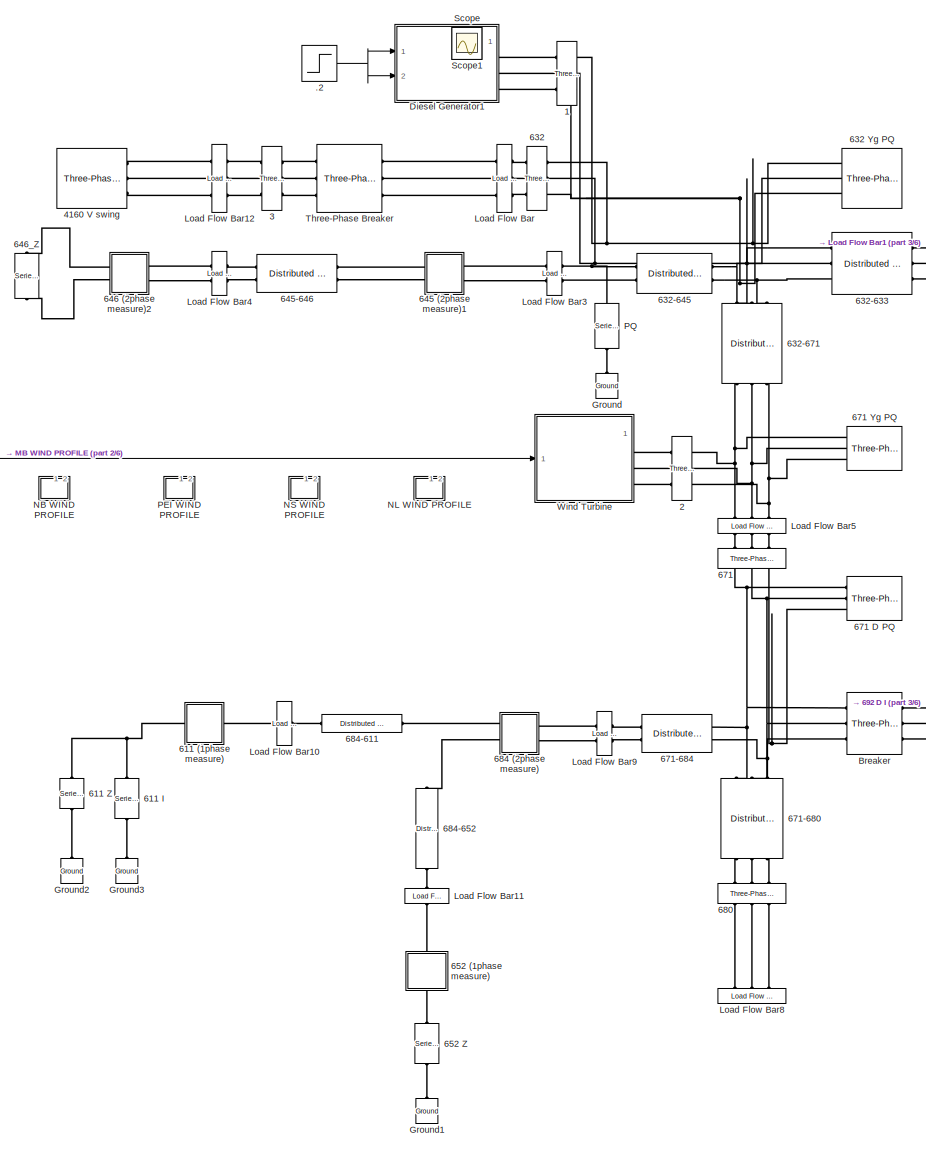
[diagram: root canvas - part 1/6, center side, full height]
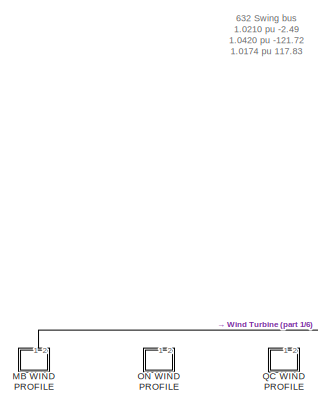
[diagram: root canvas - part 2/6, top left region]
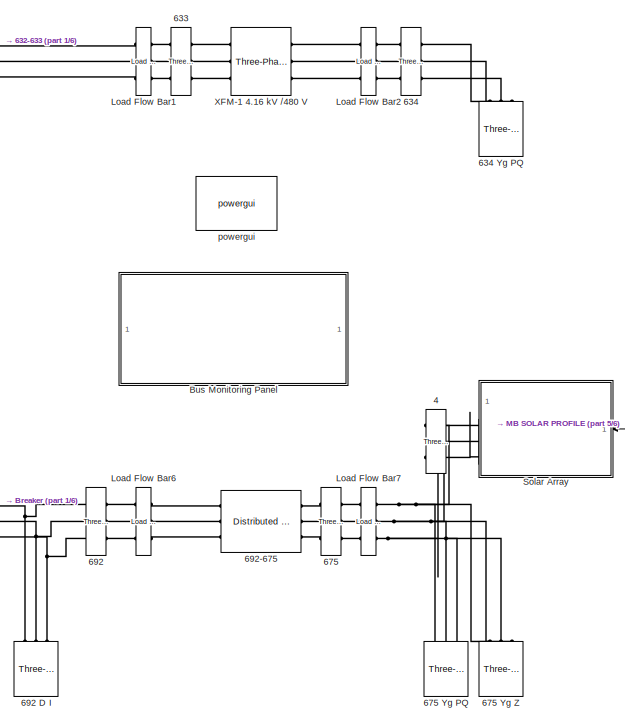
[diagram: root canvas - part 3/6, central region]
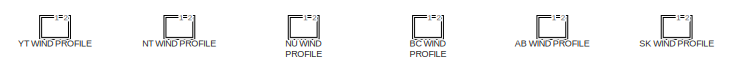
[diagram: root canvas - part 4/6, middle left region]
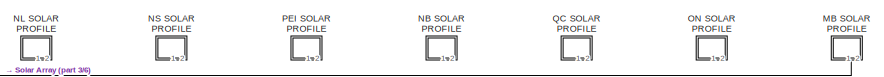
[diagram: root canvas - part 5/6, middle right region]
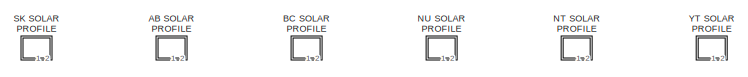
[diagram: root canvas - part 6/6, middle right region]
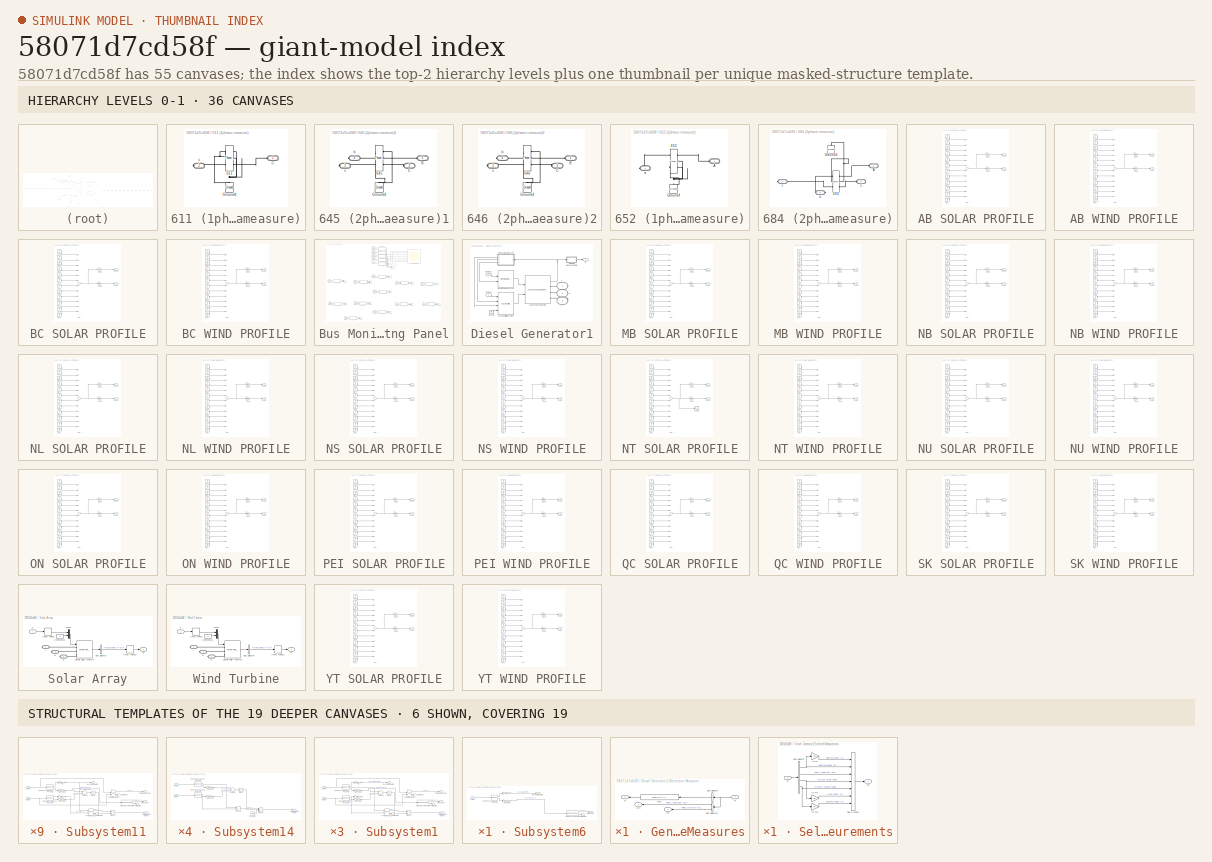
[diagram: thumbnail index - top-2 hierarchy levels (36 canvases) + 6 structural-template representatives of the remaining 19 canvases]
MODEL slx_58071d7cd58f
KIND model
CONFIG AbsTol = auto
CONFIG EnableMultiTasking = on
CONFIG FixedStep = 1e-6
CONFIG MaxStep = auto
CONFIG MinStep = auto
CONFIG PreLoadFcn = power_13NodeTestFeeder_init;
CONFIG RelTol = 1e-3
CONFIG SampleTimeConstraint = Unconstrained
CONFIG Solver = ode45
CONFIG SolverName = ode45
CONFIG StartTime = 0.0
CONFIG StopTime = 1
BLOCK [Reference]  634 Yg PQ   REF=powerlib/Elements/Three-Phase
Series RLC Load
  AttributesFormatString = P= %<Pabc> W\nQl=%<QLabc> var\nQc=%<QCabc> var
  Ports = [0, 0, 0, 0, 0, 3]
  SourceBlock = powerlib/Elements/Three-Phase\nSeries RLC Load
  SourceProductBaseCode = PS
  SourceProductName = Simscape Electrical
  SourceType = Three-Phase Series RLC Load
BLOCK [Step] .2
  After = 0
  Before = 1
  SampleTime = 0
  Time = T_Reconnect
BLOCK [Reference] 1  REF=powerlib/Measurements/Three-Phase
V-I Measurement
  Ports = [0, 0, 0, 0, 0, 3, 3]
  SourceBlock = powerlib/Measurements/Three-Phase\nV-I Measurement
  SourceProductBaseCode = PS
  SourceProductName = Simscape Electrical
  SourceType = Three-Phase VI Measurement
BLOCK [Reference] 2  REF=powerlib/Measurements/Three-Phase
V-I Measurement
  Ports = [0, 0, 0, 0, 0, 3, 3]
  SourceBlock = powerlib/Measurements/Three-Phase\nV-I Measurement
  SourceProductBaseCode = PS
  SourceProductName = Simscape Electrical
  SourceType = Three-Phase VI Measurement
BLOCK [Reference] 3  REF=powerlib/Measurements/Three-Phase
V-I Measurement
  Ports = [0, 0, 0, 0, 0, 3, 3]
  SourceBlock = powerlib/Measurements/Three-Phase\nV-I Measurement
  SourceProductBaseCode = PS
  SourceProductName = Simscape Electrical
  SourceType = Three-Phase VI Measurement
BLOCK [Reference] 4  REF=powerlib/Measurements/Three-Phase
V-I Measurement
  Ports = [0, 0, 0, 0, 0, 3, 3]
  SourceBlock = powerlib/Measurements/Three-Phase\nV-I Measurement
  SourceProductBaseCode = PS
  SourceProductName = Simscape Electrical
  SourceType = Three-Phase VI Measurement
BLOCK [Reference] 4160 V swing  REF=powerlib/Electrical
Sources/Three-Phase Source
  Ports = [0, 0, 0, 0, 0, 0, 3]
  SourceBlock = powerlib/Electrical\nSources/Three-Phase Source
  SourceProductBaseCode = PS
  SourceProductName = Simscape Electrical
  SourceType = Three-Phase Source
BLOCK [SubSystem] 611 (1phase measure)
  Ports = [0, 0, 0, 0, 0, 1, 1]
  RequestExecContextInheritance = off
BLOCK [Reference] 611 (1phase measure)/611  REF=powerlib/Measurements/Three-Phase
V-I Measurement
  Ports = [0, 0, 0, 0, 0, 3, 3]
  SourceBlock = powerlib/Measurements/Three-Phase\nV-I Measurement
  SourceProductBaseCode = PS
  SourceProductName = Simscape Electrical
  SourceType = Three-Phase VI Measurement
BLOCK [PMIOPort] 611 (1phase measure)/C
  Side = Left
BLOCK [Reference] 611 (1phase measure)/Ground4  REF=powerlib/Elements/Ground
  Ports = [0, 0, 0, 0, 0, 1]
  SourceBlock = powerlib/Elements/Ground
  SourceProductBaseCode = PS
  SourceProductName = Simscape Electrical
  SourceType = Ground
BLOCK [PMIOPort] 611 (1phase measure)/c
  Port = 2
  Side = Right
BLOCK [Reference] 611 I  REF=powerlib/Elements/Series RLC Load
  AttributesFormatString = P=%<ActivePower> W\nQl=%<InductivePower> var\nQc=%<CapacitivePower> var
  Ports = [0, 0, 0, 0, 0, 1, 1]
  SourceBlock = powerlib/Elements/Series RLC Load
  SourceProductBaseCode = PS
  SourceProductName = Simscape Electrical
  SourceType = Series RLC Load
BLOCK [Reference] 611 Z  REF=powerlib/Elements/Series RLC Load
  AttributesFormatString = P=%<ActivePower> W\nQl=%<InductivePower> var\nQc=%<CapacitivePower> var
  Ports = [0, 0, 0, 0, 0, 1, 1]
  SourceBlock = powerlib/Elements/Series RLC Load
  SourceProductBaseCode = PS
  SourceProductName = Simscape Electrical
  SourceType = Series RLC Load
BLOCK [Reference] 632  REF=powerlib/Measurements/Three-Phase
V-I Measurement
  Ports = [0, 0, 0, 0, 0, 3, 3]
  SourceBlock = powerlib/Measurements/Three-Phase\nV-I Measurement
  SourceProductBaseCode = PS
  SourceProductName = Simscape Electrical
  SourceType = Three-Phase VI Measurement
BLOCK [Reference] 632 Yg PQ  REF=powerlib/Elements/Three-Phase
Series RLC Load
  AttributesFormatString = P= %<Pabc> W\nQl=%<QLabc> var\nQc=%<QCabc> var
  Ports = [0, 0, 0, 0, 0, 3]
  SourceBlock = powerlib/Elements/Three-Phase\nSeries RLC Load
  SourceProductBaseCode = PS
  SourceProductName = Simscape Electrical
  SourceType = Three-Phase Series RLC Load
BLOCK [Reference] 632-633  REF=powerlib/Elements/Distributed Parameters Line
  Ports = [0, 0, 0, 0, 0, 3, 3]
  SourceBlock = powerlib/Elements/Distributed Parameters Line
  SourceProductBaseCode = PS
  SourceProductName = Simscape Electrical
  SourceType = Distributed Parameters Line
BLOCK [Reference] 632-645  REF=powerlib/Elements/Distributed Parameters Line
  Ports = [0, 0, 0, 0, 0, 2, 2]
  SourceBlock = powerlib/Elements/Distributed Parameters Line
  SourceProductBaseCode = PS
  SourceProductName = Simscape Electrical
  SourceType = Distributed Parameters Line
BLOCK [Reference] 632-671  REF=powerlib/Elements/Distributed Parameters Line
  Ports = [0, 0, 0, 0, 0, 3, 3]
  SourceBlock = powerlib/Elements/Distributed Parameters Line
  SourceProductBaseCode = PS
  SourceProductName = Simscape Electrical
  SourceType = Distributed Parameters Line
BLOCK [Reference] 633  REF=powerlib/Measurements/Three-Phase
V-I Measurement
  Ports = [0, 0, 0, 0, 0, 3, 3]
  SourceBlock = powerlib/Measurements/Three-Phase\nV-I Measurement
  SourceProductBaseCode = PS
  SourceProductName = Simscape Electrical
  SourceType = Three-Phase VI Measurement
BLOCK [Reference] 634  REF=powerlib/Measurements/Three-Phase
V-I Measurement
  Ports = [0, 0, 0, 0, 0, 3, 3]
  SourceBlock = powerlib/Measurements/Three-Phase\nV-I Measurement
  SourceProductBaseCode = PS
  SourceProductName = Simscape Electrical
  SourceType = Three-Phase VI Measurement
BLOCK [SubSystem] 645 (2phase measure)1
  Ports = [0, 0, 0, 0, 0, 2, 2]
  RequestExecContextInheritance = off
BLOCK [Reference] 645 (2phase measure)1/645  REF=powerlib/Measurements/Three-Phase
V-I Measurement
  Ports = [0, 0, 0, 0, 0, 3, 3]
  SourceBlock = powerlib/Measurements/Three-Phase\nV-I Measurement
  SourceProductBaseCode = PS
  SourceProductName = Simscape Electrical
  SourceType = Three-Phase VI Measurement
BLOCK [PMIOPort] 645 (2phase measure)1/B
  Side = Left
BLOCK [PMIOPort] 645 (2phase measure)1/C
  Port = 3
  Side = Left
BLOCK [Reference] 645 (2phase measure)1/Ground4  REF=powerlib/Elements/Ground
  Ports = [0, 0, 0, 0, 0, 1]
  SourceBlock = powerlib/Elements/Ground
  SourceProductBaseCode = PS
  SourceProductName = Simscape Electrical
  SourceType = Ground
BLOCK [PMIOPort] 645 (2phase measure)1/b
  Port = 4
  Side = Right
BLOCK [PMIOPort] 645 (2phase measure)1/c
  Port = 2
  Side = Right
BLOCK [Reference] 645-646  REF=powerlib/Elements/Distributed Parameters Line
  Ports = [0, 0, 0, 0, 0, 2, 2]
  SourceBlock = powerlib/Elements/Distributed Parameters Line
  SourceProductBaseCode = PS
  SourceProductName = Simscape Electrical
  SourceType = Distributed Parameters Line
BLOCK [SubSystem] 646 (2phase measure)2
  Ports = [0, 0, 0, 0, 0, 2, 2]
  RequestExecContextInheritance = off
BLOCK [Reference] 646 (2phase measure)2/646  REF=powerlib/Measurements/Three-Phase
V-I Measurement
  Ports = [0, 0, 0, 0, 0, 3, 3]
  SourceBlock = powerlib/Measurements/Three-Phase\nV-I Measurement
  SourceProductBaseCode = PS
  SourceProductName = Simscape Electrical
  SourceType = Three-Phase VI Measurement
BLOCK [PMIOPort] 646 (2phase measure)2/B
  Side = Left
BLOCK [PMIOPort] 646 (2phase measure)2/C
  Port = 3
  Side = Left
BLOCK [Reference] 646 (2phase measure)2/Ground4  REF=powerlib/Elements/Ground
  Ports = [0, 0, 0, 0, 0, 1]
  SourceBlock = powerlib/Elements/Ground
  SourceProductBaseCode = PS
  SourceProductName = Simscape Electrical
  SourceType = Ground
BLOCK [PMIOPort] 646 (2phase measure)2/b
  Port = 4
  Side = Right
BLOCK [PMIOPort] 646 (2phase measure)2/c
  Port = 2
  Side = Right
BLOCK [Reference] 646_Z  REF=powerlib/Elements/Series RLC Load
  AttributesFormatString = P=%<ActivePower> W\nQl=%<InductivePower> var\nQc=%<CapacitivePower> var
  Ports = [0, 0, 0, 0, 0, 1, 1]
  SourceBlock = powerlib/Elements/Series RLC Load
  SourceProductBaseCode = PS
  SourceProductName = Simscape Electrical
  SourceType = Series RLC Load
BLOCK [Reference] 652  Z   REF=powerlib/Elements/Series RLC Load
  AttributesFormatString = P=%<ActivePower> W\nQl=%<InductivePower> var\nQc=%<CapacitivePower> var
  Ports = [0, 0, 0, 0, 0, 1, 1]
  SourceBlock = powerlib/Elements/Series RLC Load
  SourceProductBaseCode = PS
  SourceProductName = Simscape Electrical
  SourceType = Series RLC Load
BLOCK [SubSystem] 652 (1phase measure)
  Ports = [0, 0, 0, 0, 0, 1, 1]
  RequestExecContextInheritance = off
BLOCK [Reference] 652 (1phase measure)/652   REF=powerlib/Measurements/Three-Phase
V-I Measurement
  Ports = [0, 0, 0, 0, 0, 3, 3]
  SourceBlock = powerlib/Measurements/Three-Phase\nV-I Measurement
  SourceProductBaseCode = PS
  SourceProductName = Simscape Electrical
  SourceType = Three-Phase VI Measurement
BLOCK [PMIOPort] 652 (1phase measure)/A
  Side = Left
BLOCK [Reference] 652 (1phase measure)/Ground4  REF=powerlib/Elements/Ground
  Ports = [0, 0, 0, 0, 0, 1]
  SourceBlock = powerlib/Elements/Ground
  SourceProductBaseCode = PS
  SourceProductName = Simscape Electrical
  SourceType = Ground
BLOCK [PMIOPort] 652 (1phase measure)/a
  Port = 2
  Side = Right
BLOCK [Reference] 671  REF=powerlib/Measurements/Three-Phase
V-I Measurement
  Ports = [0, 0, 0, 0, 0, 3, 3]
  SourceBlock = powerlib/Measurements/Three-Phase\nV-I Measurement
  SourceProductBaseCode = PS
  SourceProductName = Simscape Electrical
  SourceType = Three-Phase VI Measurement
BLOCK [Reference] 671 D PQ  REF=powerlib/Elements/Three-Phase
Series RLC Load
  AttributesFormatString = P= %<Pabcp> W\nQl=%<QLabcp> var\nQc=%<QCabcp> var
  Ports = [0, 0, 0, 0, 0, 3]
  SourceBlock = powerlib/Elements/Three-Phase\nSeries RLC Load
  SourceProductBaseCode = PS
  SourceProductName = Simscape Electrical
  SourceType = Three-Phase Series RLC Load
BLOCK [Reference] 671 Yg PQ  REF=powerlib/Elements/Three-Phase
Series RLC Load
  AttributesFormatString = P= %<Pabc> W\nQl=%<QLabc> var\nQc=%<QCabc> var
  Ports = [0, 0, 0, 0, 0, 3]
  SourceBlock = powerlib/Elements/Three-Phase\nSeries RLC Load
  SourceProductBaseCode = PS
  SourceProductName = Simscape Electrical
  SourceType = Three-Phase Series RLC Load
BLOCK [Reference] 671-680  REF=powerlib/Elements/Distributed Parameters Line
  Ports = [0, 0, 0, 0, 0, 3, 3]
  SourceBlock = powerlib/Elements/Distributed Parameters Line
  SourceProductBaseCode = PS
  SourceProductName = Simscape Electrical
  SourceType = Distributed Parameters Line
BLOCK [Reference] 671-684  REF=powerlib/Elements/Distributed Parameters Line
  Ports = [0, 0, 0, 0, 0, 2, 2]
  SourceBlock = powerlib/Elements/Distributed Parameters Line
  SourceProductBaseCode = PS
  SourceProductName = Simscape Electrical
  SourceType = Distributed Parameters Line
BLOCK [Reference] 675   REF=powerlib/Measurements/Three-Phase
V-I Measurement
  Ports = [0, 0, 0, 0, 0, 3, 3]
  SourceBlock = powerlib/Measurements/Three-Phase\nV-I Measurement
  SourceProductBaseCode = PS
  SourceProductName = Simscape Electrical
  SourceType = Three-Phase VI Measurement
BLOCK [Reference] 675 Yg PQ  REF=powerlib/Elements/Three-Phase
Series RLC Load
  AttributesFormatString = P= %<Pabc> W\nQl=%<QLabc> var\nQc=%<QCabc> var
  Ports = [0, 0, 0, 0, 0, 3]
  SourceBlock = powerlib/Elements/Three-Phase\nSeries RLC Load
  SourceProductBaseCode = PS
  SourceProductName = Simscape Electrical
  SourceType = Three-Phase Series RLC Load
BLOCK [Reference] 675 Yg Z  REF=powerlib/Elements/Three-Phase
Series RLC Load
  AttributesFormatString = P= %<Pabc> W\nQl=%<QLabc> var\nQc=%<QCabc> var
  Ports = [0, 0, 0, 0, 0, 3]
  SourceBlock = powerlib/Elements/Three-Phase\nSeries RLC Load
  SourceProductBaseCode = PS
  SourceProductName = Simscape Electrical
  SourceType = Three-Phase Series RLC Load
BLOCK [Reference] 680  REF=powerlib/Measurements/Three-Phase
V-I Measurement
  Ports = [0, 0, 0, 0, 0, 3, 3]
  SourceBlock = powerlib/Measurements/Three-Phase\nV-I Measurement
  SourceProductBaseCode = PS
  SourceProductName = Simscape Electrical
  SourceType = Three-Phase VI Measurement
BLOCK [SubSystem] 684 (2phase measure)
  Ports = [0, 0, 0, 0, 0, 2, 2]
  RequestExecContextInheritance = off
BLOCK [Reference] 684 (2phase measure)/684  REF=powerlib/Measurements/Three-Phase
V-I Measurement
  Ports = [0, 0, 0, 0, 0, 3, 3]
  SourceBlock = powerlib/Measurements/Three-Phase\nV-I Measurement
  SourceProductBaseCode = PS
  SourceProductName = Simscape Electrical
  SourceType = Three-Phase VI Measurement
BLOCK [PMIOPort] 684 (2phase measure)/A
  Side = Left
BLOCK [PMIOPort] 684 (2phase measure)/C
  Port = 3
  Side = Left
BLOCK [Reference] 684 (2phase measure)/Ground4  REF=powerlib/Elements/Ground
  Ports = [0, 0, 0, 0, 0, 1]
  SourceBlock = powerlib/Elements/Ground
  SourceProductBaseCode = PS
  SourceProductName = Simscape Electrical
  SourceType = Ground
BLOCK [PMIOPort] 684 (2phase measure)/a
  Port = 4
  Side = Right
BLOCK [PMIOPort] 684 (2phase measure)/c
  Port = 2
  Side = Right
BLOCK [Reference] 684-611  REF=powerlib/Elements/Distributed Parameters Line
  Ports = [0, 0, 0, 0, 0, 1, 1]
  SourceBlock = powerlib/Elements/Distributed Parameters Line
  SourceProductBaseCode = PS
  SourceProductName = Simscape Electrical
  SourceType = Distributed Parameters Line
BLOCK [Reference] 684-652  REF=powerlib/Elements/Distributed Parameters Line
  Ports = [0, 0, 0, 0, 0, 1, 1]
  SourceBlock = powerlib/Elements/Distributed Parameters Line
  SourceProductBaseCode = PS
  SourceProductName = Simscape Electrical
  SourceType = Distributed Parameters Line
BLOCK [Reference] 692  REF=powerlib/Measurements/Three-Phase
V-I Measurement
  Ports = [0, 0, 0, 0, 0, 3, 3]
  SourceBlock = powerlib/Measurements/Three-Phase\nV-I Measurement
  SourceProductBaseCode = PS
  SourceProductName = Simscape Electrical
  SourceType = Three-Phase VI Measurement
BLOCK [Reference] 692 D I  REF=powerlib/Elements/Three-Phase
Series RLC Load
  AttributesFormatString = P= %<Pabcp> W\nQl=%<QLabcp> var\nQc=%<QCabcp> var
  Ports = [0, 0, 0, 0, 0, 3]
  SourceBlock = powerlib/Elements/Three-Phase\nSeries RLC Load
  SourceProductBaseCode = PS
  SourceProductName = Simscape Electrical
  SourceType = Three-Phase Series RLC Load
BLOCK [Reference] 692-675  REF=powerlib/Elements/Distributed Parameters Line
  Ports = [0, 0, 0, 0, 0, 3, 3]
  SourceBlock = powerlib/Elements/Distributed Parameters Line
  SourceProductBaseCode = PS
  SourceProductName = Simscape Electrical
  SourceType = Distributed Parameters Line
BLOCK [SubSystem] AB SOLAR PROFILE
  Ports = [0, 2]
  RequestExecContextInheritance = off
BLOCK [Sum] AB SOLAR PROFILE/Add
  InputSameDT = off
  Inputs = ++++++++++++
  OutDataTypeStr = Inherit: Inherit via internal rule
  Ports = [12, 1]
  SaturateOnIntegerOverflow = off
BLOCK [Step] AB SOLAR PROFILE/Apr
  After = 129-121
  SampleTime = 0
  Time = 3*Yearsec
BLOCK [Step] AB SOLAR PROFILE/Aug
  After = 123-128
  SampleTime = 0
  Time = 7*Yearsec
BLOCK [Step] AB SOLAR PROFILE/Dec
  After = 62-75
  SampleTime = 0
  Time = 11*Yearsec
BLOCK [Gain] AB SOLAR PROFILE/Egen
  Gain = ABSOLARCap
  OutDataTypeStr = Inherit: Inherit via internal rule
  ParamDataTypeStr = Inherit: Inherit via internal rule
  SaturateOnIntegerOverflow = off
BLOCK [Outport] AB SOLAR PROFILE/Energy
  IconDisplay = Port number
BLOCK [Step] AB SOLAR PROFILE/Feb
  After = 101
  SampleTime = 0
  Time = 1*Yearsec
BLOCK [Step] AB SOLAR PROFILE/Jan
  After = 0
  Before = 74
  SampleTime = 0
  Time = 1*Yearsec
BLOCK [Step] AB SOLAR PROFILE/Jul
  After = 128-124
  SampleTime = 0
  Time = 6*Yearsec
BLOCK [Step] AB SOLAR PROFILE/Jun
  After = 124-120
  SampleTime = 0
  Time = 5*Yearsec
BLOCK [Step] AB SOLAR PROFILE/Mar
  After = 121-101
  SampleTime = 0
  Time = 2*Yearsec
BLOCK [Step] AB SOLAR PROFILE/May
  After = 120-129
  SampleTime = 0
  Time = 4*Yearsec
BLOCK [Step] AB SOLAR PROFILE/Nov
  After = 75-104
  SampleTime = 0
  Time = 10*Yearsec
BLOCK [Step] AB SOLAR PROFILE/Oct
  After = 104-115
  SampleTime = 0
  Time = 9*Yearsec
BLOCK [Gain] AB SOLAR PROFILE/Pgen
  Gain = (1/(30*24))*ABSOLARCap
  OutDataTypeStr = Inherit: Inherit via internal rule
  ParamDataTypeStr = Inherit: Inherit via internal rule
  SaturateOnIntegerOverflow = off
BLOCK [Outport] AB SOLAR PROFILE/Power
  IconDisplay = Port number
  Port = 2
BLOCK [Step] AB SOLAR PROFILE/Sept
  After = 115-123
  SampleTime = 0
  Time = 8*Yearsec
BLOCK [SubSystem] AB WIND PROFILE
  Ports = [0, 2]
  RequestExecContextInheritance = off
BLOCK [Sum] AB WIND PROFILE/Add
  InputSameDT = off
  Inputs = ++++++++++++
  OutDataTypeStr = Inherit: Inherit via internal rule
  Ports = [12, 1]
  SaturateOnIntegerOverflow = off
BLOCK [Step] AB WIND PROFILE/Apr
  After = 24-0
  SampleTime = 0
  Time = 3*Yearsec
BLOCK [Step] AB WIND PROFILE/Aug
  After = 1.2-2.88
  SampleTime = 0
  Time = 7*Yearsec
BLOCK [Step] AB WIND PROFILE/Dec
  After = 0-0
  SampleTime = 0
  Time = 11*Yearsec
BLOCK [Gain] AB WIND PROFILE/Egen
  Gain = ABWindCap
  OutDataTypeStr = Inherit: Inherit via internal rule
  ParamDataTypeStr = Inherit: Inherit via internal rule
  SaturateOnIntegerOverflow = off
BLOCK [Outport] AB WIND PROFILE/Energy
  IconDisplay = Port number
BLOCK [Step] AB WIND PROFILE/Feb
  After = 0
  SampleTime = 0
  Time = 1*Yearsec
BLOCK [Step] AB WIND PROFILE/Jan
  After = 0
  SampleTime = 0
  Time = 1*Yearsec
BLOCK [Step] AB WIND PROFILE/Jul
  After = 2.88-45.6
  SampleTime = 0
  Time = 6*Yearsec
BLOCK [Step] AB WIND PROFILE/Jun
  After = 45.6-24
  SampleTime = 0
  Time = 5*Yearsec
BLOCK [Step] AB WIND PROFILE/Mar
  After = 0-0
  SampleTime = 0
  Time = 2*Yearsec
BLOCK [Step] AB WIND PROFILE/May
  After = 24-24
  SampleTime = 0
  Time = 4*Yearsec
BLOCK [Step] AB WIND PROFILE/Nov
  After = 0-10.8
  SampleTime = 0
  Time = 10*Yearsec
BLOCK [Step] AB WIND PROFILE/Oct
  After = 10.8-0.48
  SampleTime = 0
  Time = 9*Yearsec
BLOCK [Gain] AB WIND PROFILE/Pgen
  Gain = (1/(30*24))*ABWindCap
  OutDataTypeStr = Inherit: Inherit via internal rule
  ParamDataTypeStr = Inherit: Inherit via internal rule
  SaturateOnIntegerOverflow = off
BLOCK [Outport] AB WIND PROFILE/Power
  IconDisplay = Port number
  Port = 2
BLOCK [Step] AB WIND PROFILE/Sept
  After = 0.48-1.2
  SampleTime = 0
  Time = 8*Yearsec
BLOCK [SubSystem] BC SOLAR PROFILE
  Ports = [0, 2]
  RequestExecContextInheritance = off
BLOCK [Sum] BC SOLAR PROFILE/Add
  InputSameDT = off
  Inputs = ++++++++++++
  OutDataTypeStr = Inherit: Inherit via internal rule
  Ports = [12, 1]
  SaturateOnIntegerOverflow = off
BLOCK [Step] BC SOLAR PROFILE/Apr
  After = 99-84
  SampleTime = 0
  Time = 3*Yearsec
BLOCK [Step] BC SOLAR PROFILE/Aug
  After = 118-120
  SampleTime = 0
  Time = 7*Yearsec
BLOCK [Step] BC SOLAR PROFILE/Dec
  After = 37-44
  SampleTime = 0
  Time = 11*Yearsec
BLOCK [Gain] BC SOLAR PROFILE/Egen
  Gain = BCSOLARCap
  OutDataTypeStr = Inherit: Inherit via internal rule
  ParamDataTypeStr = Inherit: Inherit via internal rule
  SaturateOnIntegerOverflow = off
BLOCK [Outport] BC SOLAR PROFILE/Energy
  IconDisplay = Port number
BLOCK [Step] BC SOLAR PROFILE/Feb
  After = 58
  SampleTime = 0
  Time = 1*Yearsec
BLOCK [Step] BC SOLAR PROFILE/Jan
  After = 0
  Before = 40
  SampleTime = 0
  Time = 1*Yearsec
BLOCK [Step] BC SOLAR PROFILE/Jul
  After = 120-110
  SampleTime = 0
  Time = 6*Yearsec
BLOCK [Step] BC SOLAR PROFILE/Jun
  After = 110-104
  SampleTime = 0
  Time = 5*Yearsec
BLOCK [Step] BC SOLAR PROFILE/Mar
  After = 84-58
  SampleTime = 0
  Time = 2*Yearsec
BLOCK [Step] BC SOLAR PROFILE/May
  After = 104-99
  SampleTime = 0
  Time = 4*Yearsec
BLOCK [Step] BC SOLAR PROFILE/Nov
  After = 44-74
  SampleTime = 0
  Time = 10*Yearsec
BLOCK [Step] BC SOLAR PROFILE/Oct
  After = 74-113
  SampleTime = 0
  Time = 9*Yearsec
BLOCK [Gain] BC SOLAR PROFILE/Pgen
  Gain = (1/(30*24))*BCSOLARCap
  OutDataTypeStr = Inherit: Inherit via internal rule
  ParamDataTypeStr = Inherit: Inherit via internal rule
  SaturateOnIntegerOverflow = off
BLOCK [Outport] BC SOLAR PROFILE/Power
  IconDisplay = Port number
  Port = 2
BLOCK [Step] BC SOLAR PROFILE/Sept
  After = 113-118
  SampleTime = 0
  Time = 8*Yearsec
BLOCK [SubSystem] BC WIND PROFILE
  Ports = [0, 2]
  RequestExecContextInheritance = off
BLOCK [Sum] BC WIND PROFILE/Add
  InputSameDT = off
  Inputs = ++++++++++++
  OutDataTypeStr = Inherit: Inherit via internal rule
  Ports = [12, 1]
  SaturateOnIntegerOverflow = off
BLOCK [Step] BC WIND PROFILE/Apr
  After = 12-9.6
  SampleTime = 0
  Time = 3*Yearsec
BLOCK [Step] BC WIND PROFILE/Aug
  After = 0-0
  SampleTime = 0
  Time = 7*Yearsec
BLOCK [Step] BC WIND PROFILE/Dec
  After = 2.4-0.48
  SampleTime = 0
  Time = 11*Yearsec
BLOCK [Gain] BC WIND PROFILE/Egen
  Gain = BCWindCap
  OutDataTypeStr = Inherit: Inherit via internal rule
  ParamDataTypeStr = Inherit: Inherit via internal rule
  SaturateOnIntegerOverflow = off
BLOCK [Outport] BC WIND PROFILE/Energy
  IconDisplay = Port number
BLOCK [Step] BC WIND PROFILE/Feb
  After = 14.4
  SampleTime = 0
  Time = 1*Yearsec
BLOCK [Step] BC WIND PROFILE/Jan
  After = 0
  Before = 4.8
  SampleTime = 0
  Time = 1*Yearsec
BLOCK [Step] BC WIND PROFILE/Jul
  After = 0-9.6
  SampleTime = 0
  Time = 6*Yearsec
BLOCK [Step] BC WIND PROFILE/Jun
  After = 9.6-0
  SampleTime = 0
  Time = 5*Yearsec
BLOCK [Step] BC WIND PROFILE/Mar
  After = 9.6-14.4
  SampleTime = 0
  Time = 2*Yearsec
BLOCK [Step] BC WIND PROFILE/May
  After = 0-12
  SampleTime = 0
  Time = 4*Yearsec
BLOCK [Step] BC WIND PROFILE/Nov
  After = 0.48-0
  SampleTime = 0
  Time = 10*Yearsec
BLOCK [Step] BC WIND PROFILE/Oct
  After = 0-0
  SampleTime = 0
  Time = 9*Yearsec
BLOCK [Gain] BC WIND PROFILE/Pgen
  Gain = (1/(30*24))*BCWindCap
  OutDataTypeStr = Inherit: Inherit via internal rule
  ParamDataTypeStr = Inherit: Inherit via internal rule
  SaturateOnIntegerOverflow = off
BLOCK [Outport] BC WIND PROFILE/Power
  IconDisplay = Port number
  Port = 2
BLOCK [Step] BC WIND PROFILE/Sept
  After = 0-0
  SampleTime = 0
  Time = 8*Yearsec
BLOCK [Reference] Breaker  REF=powerlib/Elements/Three-Phase Breaker
  Ports = [0, 0, 0, 0, 0, 3, 3]
  SourceBlock = powerlib/Elements/Three-Phase Breaker
  SourceProductBaseCode = PS
  SourceProductName = Simscape Electrical
  SourceType = Three-Phase Breaker
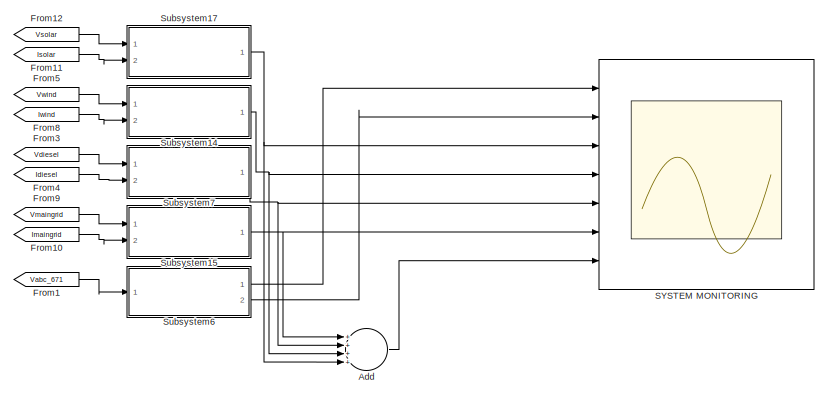
[diagram: Bus Monitoring Panel - part 1/4, top center region]
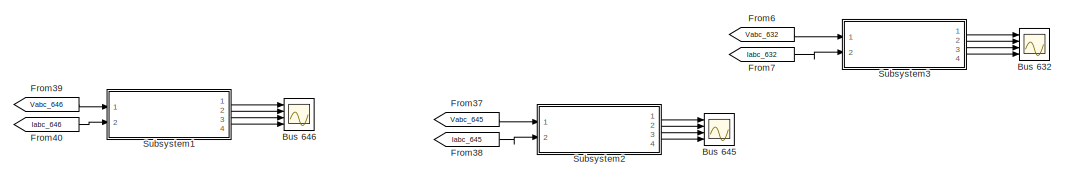
[diagram: Bus Monitoring Panel - part 2/4, middle left region]
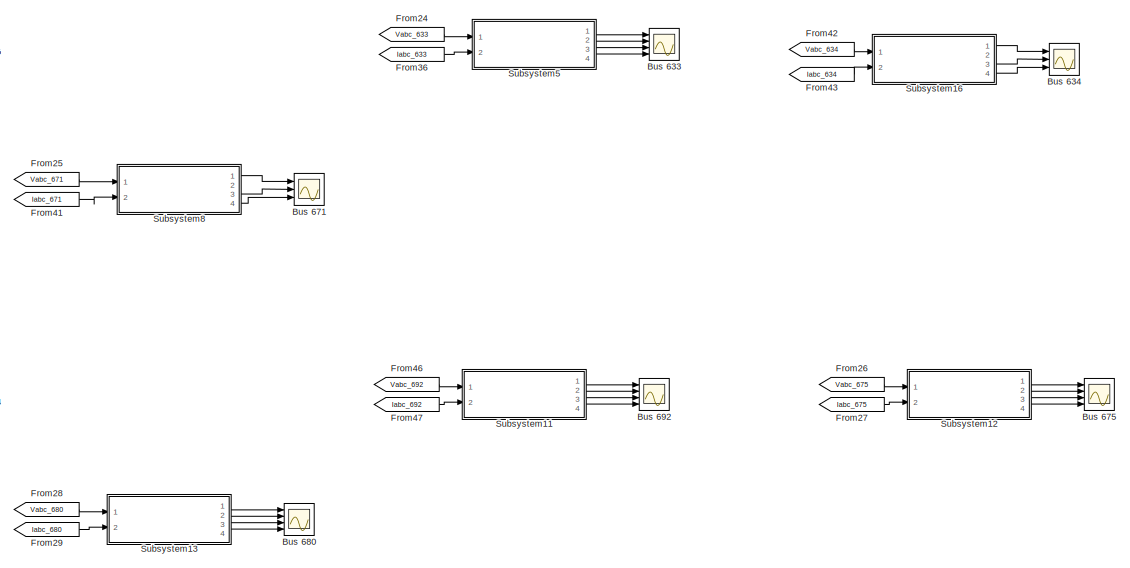
[diagram: Bus Monitoring Panel - part 3/4, bottom right region]
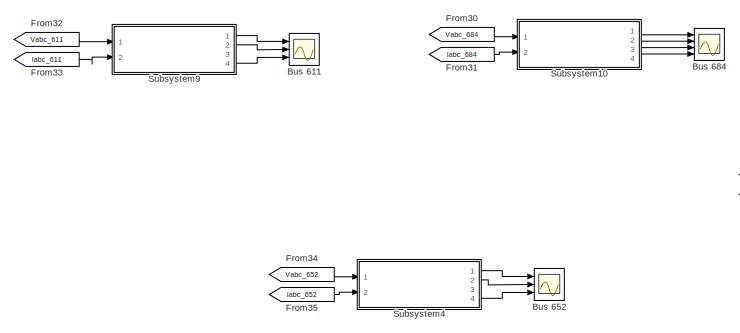
[diagram: Bus Monitoring Panel - part 4/4, bottom left region]
BLOCK [SubSystem] Bus Monitoring Panel
  Ports = []
  RequestExecContextInheritance = off
BLOCK [Sum] Bus Monitoring Panel/Add
  InputSameDT = off
  Inputs = ++++
  OutDataTypeStr = Inherit: Inherit via internal rule
  Ports = [4, 1]
  SaturateOnIntegerOverflow = off
BLOCK [Scope] Bus Monitoring Panel/Bus 611
  Commented = on
  Floating = off
  NumInputPorts = 3
  Ports = [3]
  ScopeSpecificationString = Simulink.scopes.TimeScopeBlockCfg('CurrentConfiguration', extmgr.ConfigurationSet(extmgr.Configuration('Core','General UI',true),extmgr.Configuration('Core','Source UI',true),extmgr.Configuration('Sources','WiredSimulink',true,'DataLoggingVariableName','ScopeData10'),extmgr.Configuration('Visuals','Time Domain',true,'TimeAxisLabels','All','SerializedDisplays',{struct('MinYLimReal','750','MaxYLimRe...<+2797ch>
BLOCK [Scope] Bus Monitoring Panel/Bus 632
  Commented = on
  Floating = off
  NumInputPorts = 4
  Ports = [4]
  ScopeSpecificationString = Simulink.scopes.TimeScopeBlockCfg('CurrentConfiguration', extmgr.ConfigurationSet(extmgr.Configuration('Core','General UI',true),extmgr.Configuration('Core','Source UI',true),extmgr.Configuration('Sources','WiredSimulink',true,'DataLoggingVariableName','ScopeData6'),extmgr.Configuration('Visuals','Time Domain',true,'TimeAxisLabels','All','SerializedDisplays',{struct('MinYLimReal','3000','MaxYLimRe...<+3481ch>
BLOCK [Scope] Bus Monitoring Panel/Bus 633
  Commented = on
  Floating = off
  NumInputPorts = 4
  Ports = [4]
  ScopeSpecificationString = Simulink.scopes.TimeScopeBlockCfg('CurrentConfiguration', extmgr.ConfigurationSet(extmgr.Configuration('Core','General UI',true),extmgr.Configuration('Core','Source UI',true),extmgr.Configuration('Sources','WiredSimulink',true,'DataLoggingVariableName','ScopeData2'),extmgr.Configuration('Visuals','Time Domain',true,'TimeAxisLabels','All','SerializedDisplays',{struct('MinYLimReal','3000','MaxYLimRe...<+3821ch>
BLOCK [Scope] Bus Monitoring Panel/Bus 634
  Commented = on
  Floating = off
  NumInputPorts = 3
  Ports = [3]
  ScopeSpecificationString = Simulink.scopes.TimeScopeBlockCfg('CurrentConfiguration', extmgr.ConfigurationSet(extmgr.Configuration('Core','General UI',true),extmgr.Configuration('Core','Source UI',true),extmgr.Configuration('Sources','WiredSimulink',true,'DataLoggingVariableName','ScopeData1'),extmgr.Configuration('Visuals','Time Domain',true,'TimeAxisLabels','All','SerializedDisplays',{struct('MinYLimReal','100','MaxYLimRea...<+3050ch>
BLOCK [Scope] Bus Monitoring Panel/Bus 645
  Commented = on
  Floating = off
  NumInputPorts = 4
  Ports = [4]
  ScopeSpecificationString = Simulink.scopes.TimeScopeBlockCfg('CurrentConfiguration', extmgr.ConfigurationSet(extmgr.Configuration('Core','General UI',true),extmgr.Configuration('Core','Source UI',true),extmgr.Configuration('Sources','WiredSimulink',true,'DataLoggingVariableName','ScopeData7'),extmgr.Configuration('Visuals','Time Domain',true,'TimeAxisLabels','All','SerializedDisplays',{struct('MinYLimReal','2000','MaxYLimRe...<+3798ch>
BLOCK [Scope] Bus Monitoring Panel/Bus 646
  Commented = on
  Floating = off
  NumInputPorts = 4
  Ports = [4]
  ScopeSpecificationString = Simulink.scopes.TimeScopeBlockCfg('CurrentConfiguration', extmgr.ConfigurationSet(extmgr.Configuration('Core','General UI',true),extmgr.Configuration('Core','Source UI',true),extmgr.Configuration('Sources','WiredSimulink',true,'DataLoggingVariableName','ScopeData8'),extmgr.Configuration('Visuals','Time Domain',true,'TimeAxisLabels','All','SerializedDisplays',{struct('MinYLimReal','0','MaxYLimReal'...<+3460ch>
BLOCK [Scope] Bus Monitoring Panel/Bus 652
  Commented = on
  Floating = off
  NumInputPorts = 3
  Ports = [3]
  ScopeSpecificationString = Simulink.scopes.TimeScopeBlockCfg('CurrentConfiguration', extmgr.ConfigurationSet(extmgr.Configuration('Core','General UI',true),extmgr.Configuration('Core','Source UI',true),extmgr.Configuration('Sources','WiredSimulink',true,'DataLoggingVariableName','ScopeData15'),extmgr.Configuration('Visuals','Time Domain',true,'TimeAxisLabels','All','SerializedDisplays',{struct('MinYLimReal','750','MaxYLimRe...<+2790ch>
BLOCK [Scope] Bus Monitoring Panel/Bus 671
  Commented = on
  Floating = off
  NumInputPorts = 3
  Ports = [3]
  ScopeSpecificationString = Simulink.scopes.TimeScopeBlockCfg('CurrentConfiguration', extmgr.ConfigurationSet(extmgr.Configuration('Core','General UI',true),extmgr.Configuration('Core','Source UI',true),extmgr.Configuration('Sources','WiredSimulink',true,'DataLoggingVariableName','ScopeData9'),extmgr.Configuration('Visuals','Time Domain',true,'TimeAxisLabels','All','SerializedDisplays',{struct('MinYLimReal','3000','MaxYLimRe...<+3036ch>
BLOCK [Scope] Bus Monitoring Panel/Bus 675
  Commented = on
  Floating = off
  NumInputPorts = 4
  Ports = [4]
  ScopeSpecificationString = Simulink.scopes.TimeScopeBlockCfg('CurrentConfiguration', extmgr.ConfigurationSet(extmgr.Configuration('Core','General UI',true),extmgr.Configuration('Core','Source UI',true),extmgr.Configuration('Sources','WiredSimulink',true,'DataLoggingVariableName','ScopeData13'),extmgr.Configuration('Visuals','Time Domain',true,'TimeAxisLabels','All','SerializedDisplays',{struct('MinYLimReal','3000','MaxYLimR...<+3474ch>
BLOCK [Scope] Bus Monitoring Panel/Bus 680
  Commented = on
  Floating = off
  NumInputPorts = 4
  Ports = [4]
  ScopeSpecificationString = Simulink.scopes.TimeScopeBlockCfg('CurrentConfiguration', extmgr.ConfigurationSet(extmgr.Configuration('Core','General UI',true),extmgr.Configuration('Core','Source UI',true),extmgr.Configuration('Sources','WiredSimulink',true,'DataLoggingVariableName','ScopeData14'),extmgr.Configuration('Visuals','Time Domain',true,'TimeAxisLabels','All','SerializedDisplays',{struct('MinYLimReal','3000','MaxYLimR...<+3472ch>
BLOCK [Scope] Bus Monitoring Panel/Bus 684
  Commented = on
  Floating = off
  NumInputPorts = 4
  Ports = [4]
  ScopeSpecificationString = Simulink.scopes.TimeScopeBlockCfg('CurrentConfiguration', extmgr.ConfigurationSet(extmgr.Configuration('Core','General UI',true),extmgr.Configuration('Core','Source UI',true),extmgr.Configuration('Sources','WiredSimulink',true,'DataLoggingVariableName','ScopeData11'),extmgr.Configuration('Visuals','Time Domain',true,'TimeAxisLabels','All','SerializedDisplays',{struct('MinYLimReal','1500','MaxYLimR...<+3499ch>
BLOCK [Scope] Bus Monitoring Panel/Bus 692
  Commented = on
  Floating = off
  NumInputPorts = 4
  Ports = [4]
  ScopeSpecificationString = Simulink.scopes.TimeScopeBlockCfg('CurrentConfiguration', extmgr.ConfigurationSet(extmgr.Configuration('Core','General UI',true),extmgr.Configuration('Core','Source UI',true),extmgr.Configuration('Sources','WiredSimulink',true,'DataLoggingVariableName','ScopeData12'),extmgr.Configuration('Visuals','Time Domain',true,'TimeAxisLabels','All','SerializedDisplays',{struct('MinYLimReal','3000','MaxYLimR...<+3478ch>
BLOCK [From] Bus Monitoring Panel/From1
  GotoTag = Vabc_671
  TagVisibility = global
BLOCK [From] Bus Monitoring Panel/From10
  GotoTag = Imaingrid
  TagVisibility = global
BLOCK [From] Bus Monitoring Panel/From11
  GotoTag = Isolar
  TagVisibility = global
BLOCK [From] Bus Monitoring Panel/From12
  GotoTag = Vsolar
  TagVisibility = global
BLOCK [From] Bus Monitoring Panel/From24
  Commented = on
  GotoTag = Vabc_633
  TagVisibility = global
BLOCK [From] Bus Monitoring Panel/From25
  Commented = on
  GotoTag = Vabc_671
  TagVisibility = global
BLOCK [From] Bus Monitoring Panel/From26
  Commented = on
  GotoTag = Vabc_675
  TagVisibility = global
BLOCK [From] Bus Monitoring Panel/From27
  Commented = on
  GotoTag = Iabc_675
  TagVisibility = global
BLOCK [From] Bus Monitoring Panel/From28
  Commented = on
  GotoTag = Vabc_680
  TagVisibility = global
BLOCK [From] Bus Monitoring Panel/From29
  Commented = on
  GotoTag = Iabc_680
  TagVisibility = global
BLOCK [From] Bus Monitoring Panel/From3
  GotoTag = Vdiesel
  TagVisibility = global
BLOCK [From] Bus Monitoring Panel/From30
  Commented = on
  GotoTag = Vabc_684
  TagVisibility = global
BLOCK [From] Bus Monitoring Panel/From31
  Commented = on
  GotoTag = Iabc_684
  TagVisibility = global
BLOCK [From] Bus Monitoring Panel/From32
  Commented = on
  GotoTag = Vabc_611
  TagVisibility = global
BLOCK [From] Bus Monitoring Panel/From33
  Commented = on
  GotoTag = Iabc_611
  TagVisibility = global
BLOCK [From] Bus Monitoring Panel/From34
  Commented = on
  GotoTag = Vabc_652
  TagVisibility = global
BLOCK [From] Bus Monitoring Panel/From35
  Commented = on
  GotoTag = Iabc_652
  TagVisibility = global
BLOCK [From] Bus Monitoring Panel/From36
  Commented = on
  GotoTag = Iabc_633
  TagVisibility = global
BLOCK [From] Bus Monitoring Panel/From37
  Commented = on
  GotoTag = Vabc_645
  TagVisibility = global
BLOCK [From] Bus Monitoring Panel/From38
  Commented = on
  GotoTag = Iabc_645
  TagVisibility = global
BLOCK [From] Bus Monitoring Panel/From39
  Commented = on
  GotoTag = Vabc_646
  TagVisibility = global
BLOCK [From] Bus Monitoring Panel/From4
  GotoTag = Idiesel
  TagVisibility = global
BLOCK [From] Bus Monitoring Panel/From40
  Commented = on
  GotoTag = Iabc_646
  TagVisibility = global
BLOCK [From] Bus Monitoring Panel/From41
  Commented = on
  GotoTag = Iabc_671
  TagVisibility = global
BLOCK [From] Bus Monitoring Panel/From42
  Commented = on
  GotoTag = Vabc_634
  TagVisibility = global
BLOCK [From] Bus Monitoring Panel/From43
  Commented = on
  GotoTag = Iabc_634
  TagVisibility = global
BLOCK [From] Bus Monitoring Panel/From46
  Commented = on
  GotoTag = Vabc_692
  TagVisibility = global
BLOCK [From] Bus Monitoring Panel/From47
  Commented = on
  GotoTag = Iabc_692
  TagVisibility = global
BLOCK [From] Bus Monitoring Panel/From5
  GotoTag = Vwind
  TagVisibility = global
BLOCK [From] Bus Monitoring Panel/From6
  Commented = on
  GotoTag = Vabc_632
  TagVisibility = global
BLOCK [From] Bus Monitoring Panel/From7
  Commented = on
  GotoTag = Iabc_632
  TagVisibility = global
BLOCK [From] Bus Monitoring Panel/From8
  GotoTag = Iwind
  TagVisibility = global
BLOCK [From] Bus Monitoring Panel/From9
  GotoTag = Vmaingrid
  TagVisibility = global
BLOCK [Scope] Bus Monitoring Panel/SYSTEM MONITORING
  Floating = off
  NumInputPorts = 7
  Ports = [7]
  ScopeSpecificationString = Simulink.scopes.TimeScopeBlockCfg('CurrentConfiguration', extmgr.ConfigurationSet(extmgr.Configuration('Core','General UI',true,'FigureColor',[0.941176470588235 0.941176470588235 0.941176470588235]),extmgr.Configuration('Core','Source UI',true),extmgr.Configuration('Sources','WiredSimulink',true,'DataLoggingVariableName','GenScope','DataLoggingDecimateData',true,'DataLoggingDecimation','10','DataL...<+4085ch>
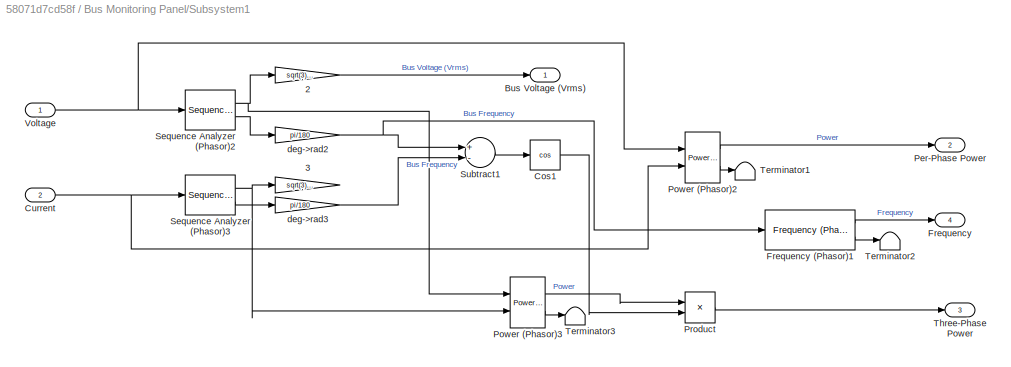
BLOCK [SubSystem] Bus Monitoring Panel/Subsystem1
  Commented = on
  Ports = [2, 4]
  RequestExecContextInheritance = off
BLOCK [Gain] Bus Monitoring Panel/Subsystem1/ 2
  Gain = sqrt(3)/sqrt(2)
  OutDataTypeStr = Inherit: Inherit via internal rule
  ParamDataTypeStr = Inherit: Inherit via internal rule
  SaturateOnIntegerOverflow = off
BLOCK [Gain] Bus Monitoring Panel/Subsystem1/ 3
  Gain = sqrt(3)/sqrt(2)
  OutDataTypeStr = Inherit: Inherit via internal rule
  ParamDataTypeStr = Inherit: Inherit via internal rule
  SaturateOnIntegerOverflow = off
BLOCK [Outport] Bus Monitoring Panel/Subsystem1/Bus Voltage (Vrms)
  IconDisplay = Port number
  VectorParamsAs1DForOutWhenUnconnected = on
BLOCK [Trigonometry] Bus Monitoring Panel/Subsystem1/Cos1
  Operator = cos
  Ports = [1, 1]
BLOCK [Inport] Bus Monitoring Panel/Subsystem1/Current
  IconDisplay = Port number
  Port = 2
BLOCK [Outport] Bus Monitoring Panel/Subsystem1/Frequency
  IconDisplay = Port number
  Port = 4
  VectorParamsAs1DForOutWhenUnconnected = on
BLOCK [Reference] Bus Monitoring Panel/Subsystem1/Frequency (Phasor)1  REF=powerlib_meascontrol/Measurements/Frequency
(Phasor)
  Ports = [1, 2]
  SourceBlock = powerlib_meascontrol/Measurements/Frequency\n(Phasor)
  SourceProductBaseCode = PS
  SourceProductName = Simscape Electrical
  SourceType = Frequency (Phasor)
BLOCK [Outport] Bus Monitoring Panel/Subsystem1/Per-Phase Power
  IconDisplay = Port number
  Port = 2
  VectorParamsAs1DForOutWhenUnconnected = on
BLOCK [Reference] Bus Monitoring Panel/Subsystem1/Power (Phasor)2  REF=powerlib_meascontrol/Measurements/Power
(Phasor)
  Ports = [2, 2]
  SourceBlock = powerlib_meascontrol/Measurements/Power\n(Phasor)
  SourceProductBaseCode = PS
  SourceProductName = Simscape Electrical
  SourceType = Power (Phasor)
BLOCK [Reference] Bus Monitoring Panel/Subsystem1/Power (Phasor)3  REF=powerlib_meascontrol/Measurements/Power
(Phasor)
  Ports = [2, 2]
  SourceBlock = powerlib_meascontrol/Measurements/Power\n(Phasor)
  SourceProductBaseCode = PS
  SourceProductName = Simscape Electrical
  SourceType = Power (Phasor)
BLOCK [Product] Bus Monitoring Panel/Subsystem1/Product
  InputSameDT = off
  OutDataTypeStr = Inherit: Inherit via internal rule
  Ports = [2, 1]
  RndMeth = Floor
  SaturateOnIntegerOverflow = off
BLOCK [Reference] Bus Monitoring Panel/Subsystem1/Sequence Analyzer (Phasor)2  REF=powerlib_meascontrol/Measurements/Sequence Analyzer
(Phasor)
  Ports = [1, 2]
  SourceBlock = powerlib_meascontrol/Measurements/Sequence Analyzer\n(Phasor)
  SourceProductBaseCode = PS
  SourceProductName = Simscape Electrical
  SourceType = Sequence Analyzer (Phasor)
BLOCK [Reference] Bus Monitoring Panel/Subsystem1/Sequence Analyzer (Phasor)3  REF=powerlib_meascontrol/Measurements/Sequence Analyzer
(Phasor)
  Ports = [1, 2]
  SourceBlock = powerlib_meascontrol/Measurements/Sequence Analyzer\n(Phasor)
  SourceProductBaseCode = PS
  SourceProductName = Simscape Electrical
  SourceType = Sequence Analyzer (Phasor)
BLOCK [Sum] Bus Monitoring Panel/Subsystem1/Subtract1
  InputSameDT = off
  Inputs = +-
  OutDataTypeStr = Inherit: Inherit via internal rule
  Ports = [2, 1]
  SaturateOnIntegerOverflow = off
BLOCK [Terminator] Bus Monitoring Panel/Subsystem1/Terminator1
BLOCK [Terminator] Bus Monitoring Panel/Subsystem1/Terminator2
BLOCK [Terminator] Bus Monitoring Panel/Subsystem1/Terminator3
BLOCK [Outport] Bus Monitoring Panel/Subsystem1/Three-Phase Power
  IconDisplay = Port number
  Port = 3
  VectorParamsAs1DForOutWhenUnconnected = on
BLOCK [Inport] Bus Monitoring Panel/Subsystem1/Voltage
  IconDisplay = Port number
BLOCK [Gain] Bus Monitoring Panel/Subsystem1/deg->rad2
  Gain = pi/180
  OutDataTypeStr = Inherit: Inherit via internal rule
  ParamDataTypeStr = Inherit: Inherit via internal rule
  SaturateOnIntegerOverflow = off
BLOCK [Gain] Bus Monitoring Panel/Subsystem1/deg->rad3
  Gain = pi/180
  OutDataTypeStr = Inherit: Inherit via internal rule
  ParamDataTypeStr = Inherit: Inherit via internal rule
  SaturateOnIntegerOverflow = off
BLOCK [SubSystem] Bus Monitoring Panel/Subsystem10
  Commented = on
  Ports = [2, 4]
  RequestExecContextInheritance = off
BLOCK [Gain] Bus Monitoring Panel/Subsystem10/ 2
  Gain = sqrt(3)/sqrt(2)
  OutDataTypeStr = Inherit: Inherit via internal rule
  ParamDataTypeStr = Inherit: Inherit via internal rule
  SaturateOnIntegerOverflow = off
BLOCK [Gain] Bus Monitoring Panel/Subsystem10/ 3
  Gain = sqrt(3)/sqrt(2)
  OutDataTypeStr = Inherit: Inherit via internal rule
  ParamDataTypeStr = Inherit: Inherit via internal rule
  SaturateOnIntegerOverflow = off
BLOCK [Outport] Bus Monitoring Panel/Subsystem10/Bus Voltage (Vrms)
  IconDisplay = Port number
  VectorParamsAs1DForOutWhenUnconnected = on
BLOCK [Trigonometry] Bus Monitoring Panel/Subsystem10/Cos1
  Operator = cos
  Ports = [1, 1]
BLOCK [Inport] Bus Monitoring Panel/Subsystem10/Current
  IconDisplay = Port number
  Port = 2
BLOCK [Outport] Bus Monitoring Panel/Subsystem10/Frequency
  IconDisplay = Port number
  Port = 4
  VectorParamsAs1DForOutWhenUnconnected = on
BLOCK [Reference] Bus Monitoring Panel/Subsystem10/Frequency (Phasor)1  REF=powerlib_meascontrol/Measurements/Frequency
(Phasor)
  Ports = [1, 2]
  SourceBlock = powerlib_meascontrol/Measurements/Frequency\n(Phasor)
  SourceProductBaseCode = PS
  SourceProductName = Simscape Electrical
  SourceType = Frequency (Phasor)
BLOCK [Outport] Bus Monitoring Panel/Subsystem10/Per-Phase Power
  IconDisplay = Port number
  Port = 2
  VectorParamsAs1DForOutWhenUnconnected = on
BLOCK [Reference] Bus Monitoring Panel/Subsystem10/Power (Phasor)2  REF=powerlib_meascontrol/Measurements/Power
(Phasor)
  Ports = [2, 2]
  SourceBlock = powerlib_meascontrol/Measurements/Power\n(Phasor)
  SourceProductBaseCode = PS
  SourceProductName = Simscape Electrical
  SourceType = Power (Phasor)
BLOCK [Reference] Bus Monitoring Panel/Subsystem10/Power (Phasor)3  REF=powerlib_meascontrol/Measurements/Power
(Phasor)
  Ports = [2, 2]
  SourceBlock = powerlib_meascontrol/Measurements/Power\n(Phasor)
  SourceProductBaseCode = PS
  SourceProductName = Simscape Electrical
  SourceType = Power (Phasor)
BLOCK [Product] Bus Monitoring Panel/Subsystem10/Product
  InputSameDT = off
  OutDataTypeStr = Inherit: Inherit via internal rule
  Ports = [2, 1]
  RndMeth = Floor
  SaturateOnIntegerOverflow = off
BLOCK [Reference] Bus Monitoring Panel/Subsystem10/Sequence Analyzer (Phasor)2  REF=powerlib_meascontrol/Measurements/Sequence Analyzer
(Phasor)
  Ports = [1, 2]
  SourceBlock = powerlib_meascontrol/Measurements/Sequence Analyzer\n(Phasor)
  SourceProductBaseCode = PS
  SourceProductName = Simscape Electrical
  SourceType = Sequence Analyzer (Phasor)
BLOCK [Reference] Bus Monitoring Panel/Subsystem10/Sequence Analyzer (Phasor)3  REF=powerlib_meascontrol/Measurements/Sequence Analyzer
(Phasor)
  Ports = [1, 2]
  SourceBlock = powerlib_meascontrol/Measurements/Sequence Analyzer\n(Phasor)
  SourceProductBaseCode = PS
  SourceProductName = Simscape Electrical
  SourceType = Sequence Analyzer (Phasor)
BLOCK [Sum] Bus Monitoring Panel/Subsystem10/Subtract1
  InputSameDT = off
  Inputs = +-
  OutDataTypeStr = Inherit: Inherit via internal rule
  Ports = [2, 1]
  SaturateOnIntegerOverflow = off
BLOCK [Terminator] Bus Monitoring Panel/Subsystem10/Terminator1
BLOCK [Terminator] Bus Monitoring Panel/Subsystem10/Terminator2
BLOCK [Terminator] Bus Monitoring Panel/Subsystem10/Terminator3
BLOCK [Outport] Bus Monitoring Panel/Subsystem10/Three-Phase Power
  IconDisplay = Port number
  Port = 3
  VectorParamsAs1DForOutWhenUnconnected = on
BLOCK [Inport] Bus Monitoring Panel/Subsystem10/Voltage
  IconDisplay = Port number
BLOCK [Gain] Bus Monitoring Panel/Subsystem10/deg->rad2
  Gain = pi/180
  OutDataTypeStr = Inherit: Inherit via internal rule
  ParamDataTypeStr = Inherit: Inherit via internal rule
  SaturateOnIntegerOverflow = off
BLOCK [Gain] Bus Monitoring Panel/Subsystem10/deg->rad3
  Gain = pi/180
  OutDataTypeStr = Inherit: Inherit via internal rule
  ParamDataTypeStr = Inherit: Inherit via internal rule
  SaturateOnIntegerOverflow = off
BLOCK [SubSystem] Bus Monitoring Panel/Subsystem11
  Commented = on
  Ports = [2, 4]
  RequestExecContextInheritance = off
BLOCK [Gain] Bus Monitoring Panel/Subsystem11/ 2
  Gain = sqrt(3)/sqrt(2)
  OutDataTypeStr = Inherit: Inherit via internal rule
  ParamDataTypeStr = Inherit: Inherit via internal rule
  SaturateOnIntegerOverflow = off
BLOCK [Gain] Bus Monitoring Panel/Subsystem11/ 3
  Gain = sqrt(3)/sqrt(2)
  OutDataTypeStr = Inherit: Inherit via internal rule
  ParamDataTypeStr = Inherit: Inherit via internal rule
  SaturateOnIntegerOverflow = off
BLOCK [Outport] Bus Monitoring Panel/Subsystem11/Bus Voltage (Vrms)
  IconDisplay = Port number
  VectorParamsAs1DForOutWhenUnconnected = on
BLOCK [Trigonometry] Bus Monitoring Panel/Subsystem11/Cos1
  Operator = cos
  Ports = [1, 1]
BLOCK [Inport] Bus Monitoring Panel/Subsystem11/Current
  IconDisplay = Port number
  Port = 2
BLOCK [Outport] Bus Monitoring Panel/Subsystem11/Frequency
  IconDisplay = Port number
  Port = 4
  VectorParamsAs1DForOutWhenUnconnected = on
BLOCK [Reference] Bus Monitoring Panel/Subsystem11/Frequency (Phasor)1  REF=powerlib_meascontrol/Measurements/Frequency
(Phasor)
  Ports = [1, 2]
  SourceBlock = powerlib_meascontrol/Measurements/Frequency\n(Phasor)
  SourceProductBaseCode = PS
  SourceProductName = Simscape Electrical
  SourceType = Frequency (Phasor)
BLOCK [Outport] Bus Monitoring Panel/Subsystem11/Per-Phase Power
  IconDisplay = Port number
  Port = 2
  VectorParamsAs1DForOutWhenUnconnected = on
BLOCK [Reference] Bus Monitoring Panel/Subsystem11/Power (Phasor)2  REF=powerlib_meascontrol/Measurements/Power
(Phasor)
  Ports = [2, 2]
  SourceBlock = powerlib_meascontrol/Measurements/Power\n(Phasor)
  SourceProductBaseCode = PS
  SourceProductName = Simscape Electrical
  SourceType = Power (Phasor)
BLOCK [Reference] Bus Monitoring Panel/Subsystem11/Power (Phasor)3  REF=powerlib_meascontrol/Measurements/Power
(Phasor)
  Ports = [2, 2]
  SourceBlock = powerlib_meascontrol/Measurements/Power\n(Phasor)
  SourceProductBaseCode = PS
  SourceProductName = Simscape Electrical
  SourceType = Power (Phasor)
BLOCK [Product] Bus Monitoring Panel/Subsystem11/Product
  InputSameDT = off
  OutDataTypeStr = Inherit: Inherit via internal rule
  Ports = [2, 1]
  RndMeth = Floor
  SaturateOnIntegerOverflow = off
BLOCK [Reference] Bus Monitoring Panel/Subsystem11/Sequence Analyzer (Phasor)2  REF=powerlib_meascontrol/Measurements/Sequence Analyzer
(Phasor)
  Ports = [1, 2]
  SourceBlock = powerlib_meascontrol/Measurements/Sequence Analyzer\n(Phasor)
  SourceProductBaseCode = PS
  SourceProductName = Simscape Electrical
  SourceType = Sequence Analyzer (Phasor)
BLOCK [Reference] Bus Monitoring Panel/Subsystem11/Sequence Analyzer (Phasor)3  REF=powerlib_meascontrol/Measurements/Sequence Analyzer
(Phasor)
  Ports = [1, 2]
  SourceBlock = powerlib_meascontrol/Measurements/Sequence Analyzer\n(Phasor)
  SourceProductBaseCode = PS
  SourceProductName = Simscape Electrical
  SourceType = Sequence Analyzer (Phasor)
BLOCK [Sum] Bus Monitoring Panel/Subsystem11/Subtract1
  InputSameDT = off
  Inputs = +-
  OutDataTypeStr = Inherit: Inherit via internal rule
  Ports = [2, 1]
  SaturateOnIntegerOverflow = off
BLOCK [Terminator] Bus Monitoring Panel/Subsystem11/Terminator1
BLOCK [Terminator] Bus Monitoring Panel/Subsystem11/Terminator2
BLOCK [Terminator] Bus Monitoring Panel/Subsystem11/Terminator3
BLOCK [Outport] Bus Monitoring Panel/Subsystem11/Three-Phase Power
  IconDisplay = Port number
  Port = 3
  VectorParamsAs1DForOutWhenUnconnected = on
BLOCK [Inport] Bus Monitoring Panel/Subsystem11/Voltage
  IconDisplay = Port number
BLOCK [Gain] Bus Monitoring Panel/Subsystem11/deg->rad2
  Gain = pi/180
  OutDataTypeStr = Inherit: Inherit via internal rule
  ParamDataTypeStr = Inherit: Inherit via internal rule
  SaturateOnIntegerOverflow = off
BLOCK [Gain] Bus Monitoring Panel/Subsystem11/deg->rad3
  Gain = pi/180
  OutDataTypeStr = Inherit: Inherit via internal rule
  ParamDataTypeStr = Inherit: Inherit via internal rule
  SaturateOnIntegerOverflow = off
BLOCK [SubSystem] Bus Monitoring Panel/Subsystem12
  Commented = on
  Ports = [2, 4]
  RequestExecContextInheritance = off
BLOCK [Gain] Bus Monitoring Panel/Subsystem12/ 2
  Gain = sqrt(3)/sqrt(2)
  OutDataTypeStr = Inherit: Inherit via internal rule
  ParamDataTypeStr = Inherit: Inherit via internal rule
  SaturateOnIntegerOverflow = off
BLOCK [Gain] Bus Monitoring Panel/Subsystem12/ 3
  Gain = sqrt(3)/sqrt(2)
  OutDataTypeStr = Inherit: Inherit via internal rule
  ParamDataTypeStr = Inherit: Inherit via internal rule
  SaturateOnIntegerOverflow = off
BLOCK [Outport] Bus Monitoring Panel/Subsystem12/Bus Voltage (Vrms)
  IconDisplay = Port number
  VectorParamsAs1DForOutWhenUnconnected = on
BLOCK [Trigonometry] Bus Monitoring Panel/Subsystem12/Cos1
  Operator = cos
  Ports = [1, 1]
BLOCK [Inport] Bus Monitoring Panel/Subsystem12/Current
  IconDisplay = Port number
  Port = 2
BLOCK [Outport] Bus Monitoring Panel/Subsystem12/Frequency
  IconDisplay = Port number
  Port = 4
  VectorParamsAs1DForOutWhenUnconnected = on
BLOCK [Reference] Bus Monitoring Panel/Subsystem12/Frequency (Phasor)1  REF=powerlib_meascontrol/Measurements/Frequency
(Phasor)
  Ports = [1, 2]
  SourceBlock = powerlib_meascontrol/Measurements/Frequency\n(Phasor)
  SourceProductBaseCode = PS
  SourceProductName = Simscape Electrical
  SourceType = Frequency (Phasor)
BLOCK [Outport] Bus Monitoring Panel/Subsystem12/Per-Phase Power
  IconDisplay = Port number
  Port = 2
  VectorParamsAs1DForOutWhenUnconnected = on
BLOCK [Reference] Bus Monitoring Panel/Subsystem12/Power (Phasor)2  REF=powerlib_meascontrol/Measurements/Power
(Phasor)
  Ports = [2, 2]
  SourceBlock = powerlib_meascontrol/Measurements/Power\n(Phasor)
  SourceProductBaseCode = PS
  SourceProductName = Simscape Electrical
  SourceType = Power (Phasor)
BLOCK [Reference] Bus Monitoring Panel/Subsystem12/Power (Phasor)3  REF=powerlib_meascontrol/Measurements/Power
(Phasor)
  Ports = [2, 2]
  SourceBlock = powerlib_meascontrol/Measurements/Power\n(Phasor)
  SourceProductBaseCode = PS
  SourceProductName = Simscape Electrical
  SourceType = Power (Phasor)
BLOCK [Product] Bus Monitoring Panel/Subsystem12/Product
  InputSameDT = off
  OutDataTypeStr = Inherit: Inherit via internal rule
  Ports = [2, 1]
  RndMeth = Floor
  SaturateOnIntegerOverflow = off
BLOCK [Reference] Bus Monitoring Panel/Subsystem12/Sequence Analyzer (Phasor)2  REF=powerlib_meascontrol/Measurements/Sequence Analyzer
(Phasor)
  Ports = [1, 2]
  SourceBlock = powerlib_meascontrol/Measurements/Sequence Analyzer\n(Phasor)
  SourceProductBaseCode = PS
  SourceProductName = Simscape Electrical
  SourceType = Sequence Analyzer (Phasor)
BLOCK [Reference] Bus Monitoring Panel/Subsystem12/Sequence Analyzer (Phasor)3  REF=powerlib_meascontrol/Measurements/Sequence Analyzer
(Phasor)
  Ports = [1, 2]
  SourceBlock = powerlib_meascontrol/Measurements/Sequence Analyzer\n(Phasor)
  SourceProductBaseCode = PS
  SourceProductName = Simscape Electrical
  SourceType = Sequence Analyzer (Phasor)
BLOCK [Sum] Bus Monitoring Panel/Subsystem12/Subtract1
  InputSameDT = off
  Inputs = +-
  OutDataTypeStr = Inherit: Inherit via internal rule
  Ports = [2, 1]
  SaturateOnIntegerOverflow = off
BLOCK [Terminator] Bus Monitoring Panel/Subsystem12/Terminator1
BLOCK [Terminator] Bus Monitoring Panel/Subsystem12/Terminator2
BLOCK [Terminator] Bus Monitoring Panel/Subsystem12/Terminator3
BLOCK [Outport] Bus Monitoring Panel/Subsystem12/Three-Phase Power
  IconDisplay = Port number
  Port = 3
  VectorParamsAs1DForOutWhenUnconnected = on
BLOCK [Inport] Bus Monitoring Panel/Subsystem12/Voltage
  IconDisplay = Port number
BLOCK [Gain] Bus Monitoring Panel/Subsystem12/deg->rad2
  Gain = pi/180
  OutDataTypeStr = Inherit: Inherit via internal rule
  ParamDataTypeStr = Inherit: Inherit via internal rule
  SaturateOnIntegerOverflow = off
BLOCK [Gain] Bus Monitoring Panel/Subsystem12/deg->rad3
  Gain = pi/180
  OutDataTypeStr = Inherit: Inherit via internal rule
  ParamDataTypeStr = Inherit: Inherit via internal rule
  SaturateOnIntegerOverflow = off
BLOCK [SubSystem] Bus Monitoring Panel/Subsystem13
  Commented = on
  Ports = [2, 4]
  RequestExecContextInheritance = off
BLOCK [Gain] Bus Monitoring Panel/Subsystem13/ 2
  Gain = sqrt(3)/sqrt(2)
  OutDataTypeStr = Inherit: Inherit via internal rule
  ParamDataTypeStr = Inherit: Inherit via internal rule
  SaturateOnIntegerOverflow = off
BLOCK [Gain] Bus Monitoring Panel/Subsystem13/ 3
  Gain = sqrt(3)/sqrt(2)
  OutDataTypeStr = Inherit: Inherit via internal rule
  ParamDataTypeStr = Inherit: Inherit via internal rule
  SaturateOnIntegerOverflow = off
BLOCK [Outport] Bus Monitoring Panel/Subsystem13/Bus Voltage (Vrms)
  IconDisplay = Port number
  VectorParamsAs1DForOutWhenUnconnected = on
BLOCK [Trigonometry] Bus Monitoring Panel/Subsystem13/Cos1
  Operator = cos
  Ports = [1, 1]
BLOCK [Inport] Bus Monitoring Panel/Subsystem13/Current
  IconDisplay = Port number
  Port = 2
BLOCK [Outport] Bus Monitoring Panel/Subsystem13/Frequency
  IconDisplay = Port number
  Port = 4
  VectorParamsAs1DForOutWhenUnconnected = on
BLOCK [Reference] Bus Monitoring Panel/Subsystem13/Frequency (Phasor)1  REF=powerlib_meascontrol/Measurements/Frequency
(Phasor)
  Ports = [1, 2]
  SourceBlock = powerlib_meascontrol/Measurements/Frequency\n(Phasor)
  SourceProductBaseCode = PS
  SourceProductName = Simscape Electrical
  SourceType = Frequency (Phasor)
BLOCK [Outport] Bus Monitoring Panel/Subsystem13/Per-Phase Power
  IconDisplay = Port number
  Port = 2
  VectorParamsAs1DForOutWhenUnconnected = on
BLOCK [Reference] Bus Monitoring Panel/Subsystem13/Power (Phasor)2  REF=powerlib_meascontrol/Measurements/Power
(Phasor)
  Ports = [2, 2]
  SourceBlock = powerlib_meascontrol/Measurements/Power\n(Phasor)
  SourceProductBaseCode = PS
  SourceProductName = Simscape Electrical
  SourceType = Power (Phasor)
BLOCK [Reference] Bus Monitoring Panel/Subsystem13/Power (Phasor)3  REF=powerlib_meascontrol/Measurements/Power
(Phasor)
  Ports = [2, 2]
  SourceBlock = powerlib_meascontrol/Measurements/Power\n(Phasor)
  SourceProductBaseCode = PS
  SourceProductName = Simscape Electrical
  SourceType = Power (Phasor)
BLOCK [Product] Bus Monitoring Panel/Subsystem13/Product
  InputSameDT = off
  OutDataTypeStr = Inherit: Inherit via internal rule
  Ports = [2, 1]
  RndMeth = Floor
  SaturateOnIntegerOverflow = off
BLOCK [Reference] Bus Monitoring Panel/Subsystem13/Sequence Analyzer (Phasor)2  REF=powerlib_meascontrol/Measurements/Sequence Analyzer
(Phasor)
  Ports = [1, 2]
  SourceBlock = powerlib_meascontrol/Measurements/Sequence Analyzer\n(Phasor)
  SourceProductBaseCode = PS
  SourceProductName = Simscape Electrical
  SourceType = Sequence Analyzer (Phasor)
BLOCK [Reference] Bus Monitoring Panel/Subsystem13/Sequence Analyzer (Phasor)3  REF=powerlib_meascontrol/Measurements/Sequence Analyzer
(Phasor)
  Ports = [1, 2]
  SourceBlock = powerlib_meascontrol/Measurements/Sequence Analyzer\n(Phasor)
  SourceProductBaseCode = PS
  SourceProductName = Simscape Electrical
  SourceType = Sequence Analyzer (Phasor)
BLOCK [Sum] Bus Monitoring Panel/Subsystem13/Subtract1
  InputSameDT = off
  Inputs = +-
  OutDataTypeStr = Inherit: Inherit via internal rule
  Ports = [2, 1]
  SaturateOnIntegerOverflow = off
BLOCK [Terminator] Bus Monitoring Panel/Subsystem13/Terminator1
BLOCK [Terminator] Bus Monitoring Panel/Subsystem13/Terminator2
BLOCK [Terminator] Bus Monitoring Panel/Subsystem13/Terminator3
BLOCK [Outport] Bus Monitoring Panel/Subsystem13/Three-Phase Power
  IconDisplay = Port number
  Port = 3
  VectorParamsAs1DForOutWhenUnconnected = on
BLOCK [Inport] Bus Monitoring Panel/Subsystem13/Voltage
  IconDisplay = Port number
BLOCK [Gain] Bus Monitoring Panel/Subsystem13/deg->rad2
  Gain = pi/180
  OutDataTypeStr = Inherit: Inherit via internal rule
  ParamDataTypeStr = Inherit: Inherit via internal rule
  SaturateOnIntegerOverflow = off
BLOCK [Gain] Bus Monitoring Panel/Subsystem13/deg->rad3
  Gain = pi/180
  OutDataTypeStr = Inherit: Inherit via internal rule
  ParamDataTypeStr = Inherit: Inherit via internal rule
  SaturateOnIntegerOverflow = off
BLOCK [SubSystem] Bus Monitoring Panel/Subsystem14
  Ports = [2, 1]
  RequestExecContextInheritance = off
BLOCK [Constant] Bus Monitoring Panel/Subsystem14/Constant
  Value = sqrt(3)
BLOCK [Trigonometry] Bus Monitoring Panel/Subsystem14/Cos1
  Operator = cos
  Ports = [1, 1]
BLOCK [Inport] Bus Monitoring Panel/Subsystem14/Current
  IconDisplay = Port number
  Port = 2
BLOCK [Product] Bus Monitoring Panel/Subsystem14/Product
  InputSameDT = off
  Inputs = 3
  OutDataTypeStr = Inherit: Inherit via internal rule
  Ports = [3, 1]
  RndMeth = Floor
  SaturateOnIntegerOverflow = off
BLOCK [Product] Bus Monitoring Panel/Subsystem14/Product2
  InputSameDT = off
  OutDataTypeStr = Inherit: Inherit via internal rule
  Ports = [2, 1]
  RndMeth = Floor
  SaturateOnIntegerOverflow = off
BLOCK [Reference] Bus Monitoring Panel/Subsystem14/Sequence Analyzer (Phasor)2  REF=powerlib_meascontrol/Measurements/Sequence Analyzer
(Phasor)
  Ports = [1, 2]
  SourceBlock = powerlib_meascontrol/Measurements/Sequence Analyzer\n(Phasor)
  SourceProductBaseCode = PS
  SourceProductName = Simscape Electrical
  SourceType = Sequence Analyzer (Phasor)
BLOCK [Reference] Bus Monitoring Panel/Subsystem14/Sequence Analyzer (Phasor)3  REF=powerlib_meascontrol/Measurements/Sequence Analyzer
(Phasor)
  Ports = [1, 2]
  SourceBlock = powerlib_meascontrol/Measurements/Sequence Analyzer\n(Phasor)
  SourceProductBaseCode = PS
  SourceProductName = Simscape Electrical
  SourceType = Sequence Analyzer (Phasor)
BLOCK [Sum] Bus Monitoring Panel/Subsystem14/Subtract1
  InputSameDT = off
  Inputs = +-
  OutDataTypeStr = Inherit: Inherit via internal rule
  Ports = [2, 1]
  SaturateOnIntegerOverflow = off
BLOCK [Outport] Bus Monitoring Panel/Subsystem14/Three-Phase Power
  IconDisplay = Port number
  VectorParamsAs1DForOutWhenUnconnected = on
BLOCK [Inport] Bus Monitoring Panel/Subsystem14/Voltage
  IconDisplay = Port number
BLOCK [Gain] Bus Monitoring Panel/Subsystem14/deg->rad2
  Gain = pi/180
  OutDataTypeStr = Inherit: Inherit via internal rule
  ParamDataTypeStr = Inherit: Inherit via internal rule
  SaturateOnIntegerOverflow = off
BLOCK [Gain] Bus Monitoring Panel/Subsystem14/deg->rad3
  Gain = pi/180
  OutDataTypeStr = Inherit: Inherit via internal rule
  ParamDataTypeStr = Inherit: Inherit via internal rule
  SaturateOnIntegerOverflow = off
BLOCK [SubSystem] Bus Monitoring Panel/Subsystem15
  Ports = [2, 1]
  RequestExecContextInheritance = off
BLOCK [Constant] Bus Monitoring Panel/Subsystem15/Constant
  Value = sqrt(3)
BLOCK [Trigonometry] Bus Monitoring Panel/Subsystem15/Cos1
  Operator = cos
  Ports = [1, 1]
BLOCK [Inport] Bus Monitoring Panel/Subsystem15/Current
  IconDisplay = Port number
  Port = 2
BLOCK [Product] Bus Monitoring Panel/Subsystem15/Product
  InputSameDT = off
  Inputs = 3
  OutDataTypeStr = Inherit: Inherit via internal rule
  Ports = [3, 1]
  RndMeth = Floor
  SaturateOnIntegerOverflow = off
BLOCK [Product] Bus Monitoring Panel/Subsystem15/Product2
  InputSameDT = off
  OutDataTypeStr = Inherit: Inherit via internal rule
  Ports = [2, 1]
  RndMeth = Floor
  SaturateOnIntegerOverflow = off
BLOCK [Reference] Bus Monitoring Panel/Subsystem15/Sequence Analyzer (Phasor)2  REF=powerlib_meascontrol/Measurements/Sequence Analyzer
(Phasor)
  Ports = [1, 2]
  SourceBlock = powerlib_meascontrol/Measurements/Sequence Analyzer\n(Phasor)
  SourceProductBaseCode = PS
  SourceProductName = Simscape Electrical
  SourceType = Sequence Analyzer (Phasor)
BLOCK [Reference] Bus Monitoring Panel/Subsystem15/Sequence Analyzer (Phasor)3  REF=powerlib_meascontrol/Measurements/Sequence Analyzer
(Phasor)
  Ports = [1, 2]
  SourceBlock = powerlib_meascontrol/Measurements/Sequence Analyzer\n(Phasor)
  SourceProductBaseCode = PS
  SourceProductName = Simscape Electrical
  SourceType = Sequence Analyzer (Phasor)
BLOCK [Sum] Bus Monitoring Panel/Subsystem15/Subtract1
  InputSameDT = off
  Inputs = +-
  OutDataTypeStr = Inherit: Inherit via internal rule
  Ports = [2, 1]
  SaturateOnIntegerOverflow = off
BLOCK [Outport] Bus Monitoring Panel/Subsystem15/Three-Phase Power
  IconDisplay = Port number
  VectorParamsAs1DForOutWhenUnconnected = on
BLOCK [Inport] Bus Monitoring Panel/Subsystem15/Voltage
  IconDisplay = Port number
BLOCK [Gain] Bus Monitoring Panel/Subsystem15/deg->rad2
  Gain = pi/180
  OutDataTypeStr = Inherit: Inherit via internal rule
  ParamDataTypeStr = Inherit: Inherit via internal rule
  SaturateOnIntegerOverflow = off
BLOCK [Gain] Bus Monitoring Panel/Subsystem15/deg->rad3
  Gain = pi/180
  OutDataTypeStr = Inherit: Inherit via internal rule
  ParamDataTypeStr = Inherit: Inherit via internal rule
  SaturateOnIntegerOverflow = off
BLOCK [SubSystem] Bus Monitoring Panel/Subsystem16
  Commented = on
  Ports = [2, 4]
  RequestExecContextInheritance = off
BLOCK [Gain] Bus Monitoring Panel/Subsystem16/ 2
  Gain = sqrt(3)/sqrt(2)
  OutDataTypeStr = Inherit: Inherit via internal rule
  ParamDataTypeStr = Inherit: Inherit via internal rule
  SaturateOnIntegerOverflow = off
BLOCK [Gain] Bus Monitoring Panel/Subsystem16/ 3
  Gain = sqrt(3)/sqrt(2)
  OutDataTypeStr = Inherit: Inherit via internal rule
  ParamDataTypeStr = Inherit: Inherit via internal rule
  SaturateOnIntegerOverflow = off
BLOCK [Outport] Bus Monitoring Panel/Subsystem16/Bus Voltage (Vrms)
  IconDisplay = Port number
  VectorParamsAs1DForOutWhenUnconnected = on
BLOCK [Trigonometry] Bus Monitoring Panel/Subsystem16/Cos1
  Operator = cos
  Ports = [1, 1]
BLOCK [Inport] Bus Monitoring Panel/Subsystem16/Current
  IconDisplay = Port number
  Port = 2
BLOCK [Outport] Bus Monitoring Panel/Subsystem16/Frequency
  IconDisplay = Port number
  Port = 4
  VectorParamsAs1DForOutWhenUnconnected = on
BLOCK [Reference] Bus Monitoring Panel/Subsystem16/Frequency (Phasor)1  REF=powerlib_meascontrol/Measurements/Frequency
(Phasor)
  Ports = [1, 2]
  SourceBlock = powerlib_meascontrol/Measurements/Frequency\n(Phasor)
  SourceProductBaseCode = PS
  SourceProductName = Simscape Electrical
  SourceType = Frequency (Phasor)
BLOCK [Outport] Bus Monitoring Panel/Subsystem16/Per-Phase Power
  IconDisplay = Port number
  Port = 2
  VectorParamsAs1DForOutWhenUnconnected = on
BLOCK [Reference] Bus Monitoring Panel/Subsystem16/Power (Phasor)2  REF=powerlib_meascontrol/Measurements/Power
(Phasor)
  Ports = [2, 2]
  SourceBlock = powerlib_meascontrol/Measurements/Power\n(Phasor)
  SourceProductBaseCode = PS
  SourceProductName = Simscape Electrical
  SourceType = Power (Phasor)
BLOCK [Reference] Bus Monitoring Panel/Subsystem16/Power (Phasor)3  REF=powerlib_meascontrol/Measurements/Power
(Phasor)
  Ports = [2, 2]
  SourceBlock = powerlib_meascontrol/Measurements/Power\n(Phasor)
  SourceProductBaseCode = PS
  SourceProductName = Simscape Electrical
  SourceType = Power (Phasor)
BLOCK [Product] Bus Monitoring Panel/Subsystem16/Product
  InputSameDT = off
  OutDataTypeStr = Inherit: Inherit via internal rule
  Ports = [2, 1]
  RndMeth = Floor
  SaturateOnIntegerOverflow = off
BLOCK [Reference] Bus Monitoring Panel/Subsystem16/Sequence Analyzer (Phasor)2  REF=powerlib_meascontrol/Measurements/Sequence Analyzer
(Phasor)
  Ports = [1, 2]
  SourceBlock = powerlib_meascontrol/Measurements/Sequence Analyzer\n(Phasor)
  SourceProductBaseCode = PS
  SourceProductName = Simscape Electrical
  SourceType = Sequence Analyzer (Phasor)
BLOCK [Reference] Bus Monitoring Panel/Subsystem16/Sequence Analyzer (Phasor)3  REF=powerlib_meascontrol/Measurements/Sequence Analyzer
(Phasor)
  Ports = [1, 2]
  SourceBlock = powerlib_meascontrol/Measurements/Sequence Analyzer\n(Phasor)
  SourceProductBaseCode = PS
  SourceProductName = Simscape Electrical
  SourceType = Sequence Analyzer (Phasor)
BLOCK [Sum] Bus Monitoring Panel/Subsystem16/Subtract1
  InputSameDT = off
  Inputs = +-
  OutDataTypeStr = Inherit: Inherit via internal rule
  Ports = [2, 1]
  SaturateOnIntegerOverflow = off
BLOCK [Terminator] Bus Monitoring Panel/Subsystem16/Terminator1
BLOCK [Terminator] Bus Monitoring Panel/Subsystem16/Terminator2
BLOCK [Terminator] Bus Monitoring Panel/Subsystem16/Terminator3
BLOCK [Outport] Bus Monitoring Panel/Subsystem16/Three-Phase Power
  IconDisplay = Port number
  Port = 3
  VectorParamsAs1DForOutWhenUnconnected = on
BLOCK [Inport] Bus Monitoring Panel/Subsystem16/Voltage
  IconDisplay = Port number
BLOCK [Gain] Bus Monitoring Panel/Subsystem16/deg->rad2
  Gain = pi/180
  OutDataTypeStr = Inherit: Inherit via internal rule
  ParamDataTypeStr = Inherit: Inherit via internal rule
  SaturateOnIntegerOverflow = off
BLOCK [Gain] Bus Monitoring Panel/Subsystem16/deg->rad3
  Gain = pi/180
  OutDataTypeStr = Inherit: Inherit via internal rule
  ParamDataTypeStr = Inherit: Inherit via internal rule
  SaturateOnIntegerOverflow = off
BLOCK [SubSystem] Bus Monitoring Panel/Subsystem17
  Ports = [2, 1]
  RequestExecContextInheritance = off
BLOCK [Constant] Bus Monitoring Panel/Subsystem17/Constant
  Value = sqrt(3)
BLOCK [Trigonometry] Bus Monitoring Panel/Subsystem17/Cos1
  Operator = cos
  Ports = [1, 1]
BLOCK [Inport] Bus Monitoring Panel/Subsystem17/Current
  IconDisplay = Port number
  Port = 2
BLOCK [Product] Bus Monitoring Panel/Subsystem17/Product
  InputSameDT = off
  Inputs = 3
  OutDataTypeStr = Inherit: Inherit via internal rule
  Ports = [3, 1]
  RndMeth = Floor
  SaturateOnIntegerOverflow = off
BLOCK [Product] Bus Monitoring Panel/Subsystem17/Product2
  InputSameDT = off
  OutDataTypeStr = Inherit: Inherit via internal rule
  Ports = [2, 1]
  RndMeth = Floor
  SaturateOnIntegerOverflow = off
BLOCK [Reference] Bus Monitoring Panel/Subsystem17/Sequence Analyzer (Phasor)2  REF=powerlib_meascontrol/Measurements/Sequence Analyzer
(Phasor)
  Ports = [1, 2]
  SourceBlock = powerlib_meascontrol/Measurements/Sequence Analyzer\n(Phasor)
  SourceProductBaseCode = PS
  SourceProductName = Simscape Electrical
  SourceType = Sequence Analyzer (Phasor)
BLOCK [Reference] Bus Monitoring Panel/Subsystem17/Sequence Analyzer (Phasor)3  REF=powerlib_meascontrol/Measurements/Sequence Analyzer
(Phasor)
  Ports = [1, 2]
  SourceBlock = powerlib_meascontrol/Measurements/Sequence Analyzer\n(Phasor)
  SourceProductBaseCode = PS
  SourceProductName = Simscape Electrical
  SourceType = Sequence Analyzer (Phasor)
BLOCK [Sum] Bus Monitoring Panel/Subsystem17/Subtract1
  InputSameDT = off
  Inputs = +-
  OutDataTypeStr = Inherit: Inherit via internal rule
  Ports = [2, 1]
  SaturateOnIntegerOverflow = off
BLOCK [Outport] Bus Monitoring Panel/Subsystem17/Three-Phase Power
  IconDisplay = Port number
  VectorParamsAs1DForOutWhenUnconnected = on
BLOCK [Inport] Bus Monitoring Panel/Subsystem17/Voltage
  IconDisplay = Port number
BLOCK [Gain] Bus Monitoring Panel/Subsystem17/deg->rad2
  Gain = pi/180
  OutDataTypeStr = Inherit: Inherit via internal rule
  ParamDataTypeStr = Inherit: Inherit via internal rule
  SaturateOnIntegerOverflow = off
BLOCK [Gain] Bus Monitoring Panel/Subsystem17/deg->rad3
  Gain = pi/180
  OutDataTypeStr = Inherit: Inherit via internal rule
  ParamDataTypeStr = Inherit: Inherit via internal rule
  SaturateOnIntegerOverflow = off
BLOCK [SubSystem] Bus Monitoring Panel/Subsystem2
  Commented = on
  Ports = [2, 4]
  RequestExecContextInheritance = off
BLOCK [Gain] Bus Monitoring Panel/Subsystem2/ 2
  Gain = sqrt(3)/sqrt(2)
  OutDataTypeStr = Inherit: Inherit via internal rule
  ParamDataTypeStr = Inherit: Inherit via internal rule
  SaturateOnIntegerOverflow = off
BLOCK [Gain] Bus Monitoring Panel/Subsystem2/ 3
  Gain = sqrt(3)/sqrt(2)
  OutDataTypeStr = Inherit: Inherit via internal rule
  ParamDataTypeStr = Inherit: Inherit via internal rule
  SaturateOnIntegerOverflow = off
BLOCK [Outport] Bus Monitoring Panel/Subsystem2/Bus Voltage (Vrms)
  IconDisplay = Port number
  VectorParamsAs1DForOutWhenUnconnected = on
BLOCK [Trigonometry] Bus Monitoring Panel/Subsystem2/Cos1
  Operator = cos
  Ports = [1, 1]
BLOCK [Inport] Bus Monitoring Panel/Subsystem2/Current
  IconDisplay = Port number
  Port = 2
BLOCK [Outport] Bus Monitoring Panel/Subsystem2/Frequency
  IconDisplay = Port number
  Port = 4
  VectorParamsAs1DForOutWhenUnconnected = on
BLOCK [Reference] Bus Monitoring Panel/Subsystem2/Frequency (Phasor)1  REF=powerlib_meascontrol/Measurements/Frequency
(Phasor)
  Ports = [1, 2]
  SourceBlock = powerlib_meascontrol/Measurements/Frequency\n(Phasor)
  SourceProductBaseCode = PS
  SourceProductName = Simscape Electrical
  SourceType = Frequency (Phasor)
BLOCK [Outport] Bus Monitoring Panel/Subsystem2/Per-Phase Power
  IconDisplay = Port number
  Port = 2
  VectorParamsAs1DForOutWhenUnconnected = on
BLOCK [Reference] Bus Monitoring Panel/Subsystem2/Power (Phasor)2  REF=powerlib_meascontrol/Measurements/Power
(Phasor)
  Ports = [2, 2]
  SourceBlock = powerlib_meascontrol/Measurements/Power\n(Phasor)
  SourceProductBaseCode = PS
  SourceProductName = Simscape Electrical
  SourceType = Power (Phasor)
BLOCK [Reference] Bus Monitoring Panel/Subsystem2/Power (Phasor)3  REF=powerlib_meascontrol/Measurements/Power
(Phasor)
  Ports = [2, 2]
  SourceBlock = powerlib_meascontrol/Measurements/Power\n(Phasor)
  SourceProductBaseCode = PS
  SourceProductName = Simscape Electrical
  SourceType = Power (Phasor)
BLOCK [Product] Bus Monitoring Panel/Subsystem2/Product
  InputSameDT = off
  OutDataTypeStr = Inherit: Inherit via internal rule
  Ports = [2, 1]
  RndMeth = Floor
  SaturateOnIntegerOverflow = off
BLOCK [Reference] Bus Monitoring Panel/Subsystem2/Sequence Analyzer (Phasor)2  REF=powerlib_meascontrol/Measurements/Sequence Analyzer
(Phasor)
  Ports = [1, 2]
  SourceBlock = powerlib_meascontrol/Measurements/Sequence Analyzer\n(Phasor)
  SourceProductBaseCode = PS
  SourceProductName = Simscape Electrical
  SourceType = Sequence Analyzer (Phasor)
BLOCK [Reference] Bus Monitoring Panel/Subsystem2/Sequence Analyzer (Phasor)3  REF=powerlib_meascontrol/Measurements/Sequence Analyzer
(Phasor)
  Ports = [1, 2]
  SourceBlock = powerlib_meascontrol/Measurements/Sequence Analyzer\n(Phasor)
  SourceProductBaseCode = PS
  SourceProductName = Simscape Electrical
  SourceType = Sequence Analyzer (Phasor)
BLOCK [Sum] Bus Monitoring Panel/Subsystem2/Subtract1
  InputSameDT = off
  Inputs = +-
  OutDataTypeStr = Inherit: Inherit via internal rule
  Ports = [2, 1]
  SaturateOnIntegerOverflow = off
BLOCK [Terminator] Bus Monitoring Panel/Subsystem2/Terminator1
BLOCK [Terminator] Bus Monitoring Panel/Subsystem2/Terminator2
BLOCK [Terminator] Bus Monitoring Panel/Subsystem2/Terminator3
BLOCK [Outport] Bus Monitoring Panel/Subsystem2/Three-Phase Power
  IconDisplay = Port number
  Port = 3
  VectorParamsAs1DForOutWhenUnconnected = on
BLOCK [Inport] Bus Monitoring Panel/Subsystem2/Voltage
  IconDisplay = Port number
BLOCK [Gain] Bus Monitoring Panel/Subsystem2/deg->rad2
  Gain = pi/180
  OutDataTypeStr = Inherit: Inherit via internal rule
  ParamDataTypeStr = Inherit: Inherit via internal rule
  SaturateOnIntegerOverflow = off
BLOCK [Gain] Bus Monitoring Panel/Subsystem2/deg->rad3
  Gain = pi/180
  OutDataTypeStr = Inherit: Inherit via internal rule
  ParamDataTypeStr = Inherit: Inherit via internal rule
  SaturateOnIntegerOverflow = off
BLOCK [SubSystem] Bus Monitoring Panel/Subsystem3
  Commented = on
  Ports = [2, 4]
  RequestExecContextInheritance = off
BLOCK [Gain] Bus Monitoring Panel/Subsystem3/ 2
  Gain = sqrt(3)/sqrt(2)
  OutDataTypeStr = Inherit: Inherit via internal rule
  ParamDataTypeStr = Inherit: Inherit via internal rule
  SaturateOnIntegerOverflow = off
BLOCK [Gain] Bus Monitoring Panel/Subsystem3/ 3
  Gain = sqrt(3)/sqrt(2)
  OutDataTypeStr = Inherit: Inherit via internal rule
  ParamDataTypeStr = Inherit: Inherit via internal rule
  SaturateOnIntegerOverflow = off
BLOCK [Outport] Bus Monitoring Panel/Subsystem3/Bus Voltage (Vrms)
  IconDisplay = Port number
  VectorParamsAs1DForOutWhenUnconnected = on
BLOCK [Trigonometry] Bus Monitoring Panel/Subsystem3/Cos1
  Operator = cos
  Ports = [1, 1]
BLOCK [Inport] Bus Monitoring Panel/Subsystem3/Current
  IconDisplay = Port number
  Port = 2
BLOCK [Outport] Bus Monitoring Panel/Subsystem3/Frequency
  IconDisplay = Port number
  Port = 4
  VectorParamsAs1DForOutWhenUnconnected = on
BLOCK [Reference] Bus Monitoring Panel/Subsystem3/Frequency (Phasor)1  REF=powerlib_meascontrol/Measurements/Frequency
(Phasor)
  Ports = [1, 2]
  SourceBlock = powerlib_meascontrol/Measurements/Frequency\n(Phasor)
  SourceProductBaseCode = PS
  SourceProductName = Simscape Electrical
  SourceType = Frequency (Phasor)
BLOCK [Outport] Bus Monitoring Panel/Subsystem3/Per-Phase Power
  IconDisplay = Port number
  Port = 2
  VectorParamsAs1DForOutWhenUnconnected = on
BLOCK [Reference] Bus Monitoring Panel/Subsystem3/Power (Phasor)2  REF=powerlib_meascontrol/Measurements/Power
(Phasor)
  Ports = [2, 2]
  SourceBlock = powerlib_meascontrol/Measurements/Power\n(Phasor)
  SourceProductBaseCode = PS
  SourceProductName = Simscape Electrical
  SourceType = Power (Phasor)
BLOCK [Reference] Bus Monitoring Panel/Subsystem3/Power (Phasor)3  REF=powerlib_meascontrol/Measurements/Power
(Phasor)
  Ports = [2, 2]
  SourceBlock = powerlib_meascontrol/Measurements/Power\n(Phasor)
  SourceProductBaseCode = PS
  SourceProductName = Simscape Electrical
  SourceType = Power (Phasor)
BLOCK [Product] Bus Monitoring Panel/Subsystem3/Product
  InputSameDT = off
  OutDataTypeStr = Inherit: Inherit via internal rule
  Ports = [2, 1]
  RndMeth = Floor
  SaturateOnIntegerOverflow = off
BLOCK [Reference] Bus Monitoring Panel/Subsystem3/Sequence Analyzer (Phasor)2  REF=powerlib_meascontrol/Measurements/Sequence Analyzer
(Phasor)
  Ports = [1, 2]
  SourceBlock = powerlib_meascontrol/Measurements/Sequence Analyzer\n(Phasor)
  SourceProductBaseCode = PS
  SourceProductName = Simscape Electrical
  SourceType = Sequence Analyzer (Phasor)
BLOCK [Reference] Bus Monitoring Panel/Subsystem3/Sequence Analyzer (Phasor)3  REF=powerlib_meascontrol/Measurements/Sequence Analyzer
(Phasor)
  Ports = [1, 2]
  SourceBlock = powerlib_meascontrol/Measurements/Sequence Analyzer\n(Phasor)
  SourceProductBaseCode = PS
  SourceProductName = Simscape Electrical
  SourceType = Sequence Analyzer (Phasor)
BLOCK [Sum] Bus Monitoring Panel/Subsystem3/Subtract1
  InputSameDT = off
  Inputs = +-
  OutDataTypeStr = Inherit: Inherit via internal rule
  Ports = [2, 1]
  SaturateOnIntegerOverflow = off
BLOCK [Terminator] Bus Monitoring Panel/Subsystem3/Terminator1
BLOCK [Terminator] Bus Monitoring Panel/Subsystem3/Terminator2
BLOCK [Terminator] Bus Monitoring Panel/Subsystem3/Terminator3
BLOCK [Outport] Bus Monitoring Panel/Subsystem3/Three-Phase Power
  IconDisplay = Port number
  Port = 3
  VectorParamsAs1DForOutWhenUnconnected = on
BLOCK [Inport] Bus Monitoring Panel/Subsystem3/Voltage
  IconDisplay = Port number
BLOCK [Gain] Bus Monitoring Panel/Subsystem3/deg->rad2
  Gain = pi/180
  OutDataTypeStr = Inherit: Inherit via internal rule
  ParamDataTypeStr = Inherit: Inherit via internal rule
  SaturateOnIntegerOverflow = off
BLOCK [Gain] Bus Monitoring Panel/Subsystem3/deg->rad3
  Gain = pi/180
  OutDataTypeStr = Inherit: Inherit via internal rule
  ParamDataTypeStr = Inherit: Inherit via internal rule
  SaturateOnIntegerOverflow = off
BLOCK [SubSystem] Bus Monitoring Panel/Subsystem4
  Commented = on
  Ports = [2, 4]
  RequestExecContextInheritance = off
BLOCK [Gain] Bus Monitoring Panel/Subsystem4/ 2
  Gain = sqrt(3)/sqrt(2)
  OutDataTypeStr = Inherit: Inherit via internal rule
  ParamDataTypeStr = Inherit: Inherit via internal rule
  SaturateOnIntegerOverflow = off
BLOCK [Gain] Bus Monitoring Panel/Subsystem4/ 3
  Gain = sqrt(3)/sqrt(2)
  OutDataTypeStr = Inherit: Inherit via internal rule
  ParamDataTypeStr = Inherit: Inherit via internal rule
  SaturateOnIntegerOverflow = off
BLOCK [Outport] Bus Monitoring Panel/Subsystem4/Bus Voltage (Vrms)
  IconDisplay = Port number
  VectorParamsAs1DForOutWhenUnconnected = on
BLOCK [Trigonometry] Bus Monitoring Panel/Subsystem4/Cos1
  Operator = cos
  Ports = [1, 1]
BLOCK [Inport] Bus Monitoring Panel/Subsystem4/Current
  IconDisplay = Port number
  Port = 2
BLOCK [Outport] Bus Monitoring Panel/Subsystem4/Frequency
  IconDisplay = Port number
  Port = 4
  VectorParamsAs1DForOutWhenUnconnected = on
BLOCK [Reference] Bus Monitoring Panel/Subsystem4/Frequency (Phasor)1  REF=powerlib_meascontrol/Measurements/Frequency
(Phasor)
  Ports = [1, 2]
  SourceBlock = powerlib_meascontrol/Measurements/Frequency\n(Phasor)
  SourceProductBaseCode = PS
  SourceProductName = Simscape Electrical
  SourceType = Frequency (Phasor)
BLOCK [Outport] Bus Monitoring Panel/Subsystem4/Per-Phase Power
  IconDisplay = Port number
  Port = 2
  VectorParamsAs1DForOutWhenUnconnected = on
BLOCK [Reference] Bus Monitoring Panel/Subsystem4/Power (Phasor)2  REF=powerlib_meascontrol/Measurements/Power
(Phasor)
  Ports = [2, 2]
  SourceBlock = powerlib_meascontrol/Measurements/Power\n(Phasor)
  SourceProductBaseCode = PS
  SourceProductName = Simscape Electrical
  SourceType = Power (Phasor)
BLOCK [Reference] Bus Monitoring Panel/Subsystem4/Power (Phasor)3  REF=powerlib_meascontrol/Measurements/Power
(Phasor)
  Ports = [2, 2]
  SourceBlock = powerlib_meascontrol/Measurements/Power\n(Phasor)
  SourceProductBaseCode = PS
  SourceProductName = Simscape Electrical
  SourceType = Power (Phasor)
BLOCK [Product] Bus Monitoring Panel/Subsystem4/Product
  InputSameDT = off
  OutDataTypeStr = Inherit: Inherit via internal rule
  Ports = [2, 1]
  RndMeth = Floor
  SaturateOnIntegerOverflow = off
BLOCK [Reference] Bus Monitoring Panel/Subsystem4/Sequence Analyzer (Phasor)2  REF=powerlib_meascontrol/Measurements/Sequence Analyzer
(Phasor)
  Ports = [1, 2]
  SourceBlock = powerlib_meascontrol/Measurements/Sequence Analyzer\n(Phasor)
  SourceProductBaseCode = PS
  SourceProductName = Simscape Electrical
  SourceType = Sequence Analyzer (Phasor)
BLOCK [Reference] Bus Monitoring Panel/Subsystem4/Sequence Analyzer (Phasor)3  REF=powerlib_meascontrol/Measurements/Sequence Analyzer
(Phasor)
  Ports = [1, 2]
  SourceBlock = powerlib_meascontrol/Measurements/Sequence Analyzer\n(Phasor)
  SourceProductBaseCode = PS
  SourceProductName = Simscape Electrical
  SourceType = Sequence Analyzer (Phasor)
BLOCK [Sum] Bus Monitoring Panel/Subsystem4/Subtract1
  InputSameDT = off
  Inputs = +-
  OutDataTypeStr = Inherit: Inherit via internal rule
  Ports = [2, 1]
  SaturateOnIntegerOverflow = off
BLOCK [Terminator] Bus Monitoring Panel/Subsystem4/Terminator1
BLOCK [Terminator] Bus Monitoring Panel/Subsystem4/Terminator2
BLOCK [Terminator] Bus Monitoring Panel/Subsystem4/Terminator3
BLOCK [Outport] Bus Monitoring Panel/Subsystem4/Three-Phase Power
  IconDisplay = Port number
  Port = 3
  VectorParamsAs1DForOutWhenUnconnected = on
BLOCK [Inport] Bus Monitoring Panel/Subsystem4/Voltage
  IconDisplay = Port number
BLOCK [Gain] Bus Monitoring Panel/Subsystem4/deg->rad2
  Gain = pi/180
  OutDataTypeStr = Inherit: Inherit via internal rule
  ParamDataTypeStr = Inherit: Inherit via internal rule
  SaturateOnIntegerOverflow = off
BLOCK [Gain] Bus Monitoring Panel/Subsystem4/deg->rad3
  Gain = pi/180
  OutDataTypeStr = Inherit: Inherit via internal rule
  ParamDataTypeStr = Inherit: Inherit via internal rule
  SaturateOnIntegerOverflow = off
BLOCK [SubSystem] Bus Monitoring Panel/Subsystem5
  Commented = on
  Ports = [2, 4]
  RequestExecContextInheritance = off
BLOCK [Gain] Bus Monitoring Panel/Subsystem5/ 2
  Gain = sqrt(3)/sqrt(2)
  OutDataTypeStr = Inherit: Inherit via internal rule
  ParamDataTypeStr = Inherit: Inherit via internal rule
  SaturateOnIntegerOverflow = off
BLOCK [Gain] Bus Monitoring Panel/Subsystem5/ 3
  Gain = sqrt(3)/sqrt(2)
  OutDataTypeStr = Inherit: Inherit via internal rule
  ParamDataTypeStr = Inherit: Inherit via internal rule
  SaturateOnIntegerOverflow = off
BLOCK [Outport] Bus Monitoring Panel/Subsystem5/Bus Voltage (Vrms)
  IconDisplay = Port number
  VectorParamsAs1DForOutWhenUnconnected = on
BLOCK [Trigonometry] Bus Monitoring Panel/Subsystem5/Cos1
  Operator = cos
  Ports = [1, 1]
BLOCK [Inport] Bus Monitoring Panel/Subsystem5/Current
  IconDisplay = Port number
  Port = 2
BLOCK [Outport] Bus Monitoring Panel/Subsystem5/Frequency
  IconDisplay = Port number
  Port = 4
  VectorParamsAs1DForOutWhenUnconnected = on
BLOCK [Reference] Bus Monitoring Panel/Subsystem5/Frequency (Phasor)1  REF=powerlib_meascontrol/Measurements/Frequency
(Phasor)
  Ports = [1, 2]
  SourceBlock = powerlib_meascontrol/Measurements/Frequency\n(Phasor)
  SourceProductBaseCode = PS
  SourceProductName = Simscape Electrical
  SourceType = Frequency (Phasor)
BLOCK [Outport] Bus Monitoring Panel/Subsystem5/Per-Phase Power
  IconDisplay = Port number
  Port = 2
  VectorParamsAs1DForOutWhenUnconnected = on
BLOCK [Reference] Bus Monitoring Panel/Subsystem5/Power (Phasor)2  REF=powerlib_meascontrol/Measurements/Power
(Phasor)
  Ports = [2, 2]
  SourceBlock = powerlib_meascontrol/Measurements/Power\n(Phasor)
  SourceProductBaseCode = PS
  SourceProductName = Simscape Electrical
  SourceType = Power (Phasor)
BLOCK [Reference] Bus Monitoring Panel/Subsystem5/Power (Phasor)3  REF=powerlib_meascontrol/Measurements/Power
(Phasor)
  Ports = [2, 2]
  SourceBlock = powerlib_meascontrol/Measurements/Power\n(Phasor)
  SourceProductBaseCode = PS
  SourceProductName = Simscape Electrical
  SourceType = Power (Phasor)
BLOCK [Product] Bus Monitoring Panel/Subsystem5/Product
  InputSameDT = off
  OutDataTypeStr = Inherit: Inherit via internal rule
  Ports = [2, 1]
  RndMeth = Floor
  SaturateOnIntegerOverflow = off
BLOCK [Reference] Bus Monitoring Panel/Subsystem5/Sequence Analyzer (Phasor)2  REF=powerlib_meascontrol/Measurements/Sequence Analyzer
(Phasor)
  Ports = [1, 2]
  SourceBlock = powerlib_meascontrol/Measurements/Sequence Analyzer\n(Phasor)
  SourceProductBaseCode = PS
  SourceProductName = Simscape Electrical
  SourceType = Sequence Analyzer (Phasor)
BLOCK [Reference] Bus Monitoring Panel/Subsystem5/Sequence Analyzer (Phasor)3  REF=powerlib_meascontrol/Measurements/Sequence Analyzer
(Phasor)
  Ports = [1, 2]
  SourceBlock = powerlib_meascontrol/Measurements/Sequence Analyzer\n(Phasor)
  SourceProductBaseCode = PS
  SourceProductName = Simscape Electrical
  SourceType = Sequence Analyzer (Phasor)
BLOCK [Sum] Bus Monitoring Panel/Subsystem5/Subtract1
  InputSameDT = off
  Inputs = +-
  OutDataTypeStr = Inherit: Inherit via internal rule
  Ports = [2, 1]
  SaturateOnIntegerOverflow = off
BLOCK [Terminator] Bus Monitoring Panel/Subsystem5/Terminator1
BLOCK [Terminator] Bus Monitoring Panel/Subsystem5/Terminator2
BLOCK [Terminator] Bus Monitoring Panel/Subsystem5/Terminator3
BLOCK [Outport] Bus Monitoring Panel/Subsystem5/Three-Phase Power
  IconDisplay = Port number
  Port = 3
  VectorParamsAs1DForOutWhenUnconnected = on
BLOCK [Inport] Bus Monitoring Panel/Subsystem5/Voltage
  IconDisplay = Port number
BLOCK [Gain] Bus Monitoring Panel/Subsystem5/deg->rad2
  Gain = pi/180
  OutDataTypeStr = Inherit: Inherit via internal rule
  ParamDataTypeStr = Inherit: Inherit via internal rule
  SaturateOnIntegerOverflow = off
BLOCK [Gain] Bus Monitoring Panel/Subsystem5/deg->rad3
  Gain = pi/180
  OutDataTypeStr = Inherit: Inherit via internal rule
  ParamDataTypeStr = Inherit: Inherit via internal rule
  SaturateOnIntegerOverflow = off
BLOCK [SubSystem] Bus Monitoring Panel/Subsystem6
  Ports = [1, 2]
  RequestExecContextInheritance = off
BLOCK [Gain] Bus Monitoring Panel/Subsystem6/ 2
  Gain = sqrt(3)/sqrt(2)
  OutDataTypeStr = Inherit: Inherit via internal rule
  ParamDataTypeStr = Inherit: Inherit via internal rule
  SaturateOnIntegerOverflow = off
BLOCK [Outport] Bus Monitoring Panel/Subsystem6/Bus Voltage (Vrms)
  IconDisplay = Port number
  VectorParamsAs1DForOutWhenUnconnected = on
BLOCK [Outport] Bus Monitoring Panel/Subsystem6/Frequency
  IconDisplay = Port number
  Port = 2
  VectorParamsAs1DForOutWhenUnconnected = on
BLOCK [Reference] Bus Monitoring Panel/Subsystem6/Frequency (Phasor)1  REF=powerlib_meascontrol/Measurements/Frequency
(Phasor)
  Ports = [1, 2]
  SourceBlock = powerlib_meascontrol/Measurements/Frequency\n(Phasor)
  SourceProductBaseCode = PS
  SourceProductName = Simscape Electrical
  SourceType = Frequency (Phasor)
BLOCK [Reference] Bus Monitoring Panel/Subsystem6/Sequence Analyzer (Phasor)2  REF=powerlib_meascontrol/Measurements/Sequence Analyzer
(Phasor)
  Ports = [1, 2]
  SourceBlock = powerlib_meascontrol/Measurements/Sequence Analyzer\n(Phasor)
  SourceProductBaseCode = PS
  SourceProductName = Simscape Electrical
  SourceType = Sequence Analyzer (Phasor)
BLOCK [Terminator] Bus Monitoring Panel/Subsystem6/Terminator2
BLOCK [Inport] Bus Monitoring Panel/Subsystem6/Voltage
  IconDisplay = Port number
BLOCK [Gain] Bus Monitoring Panel/Subsystem6/deg->rad2
  Gain = pi/180
  OutDataTypeStr = Inherit: Inherit via internal rule
  ParamDataTypeStr = Inherit: Inherit via internal rule
  SaturateOnIntegerOverflow = off
BLOCK [SubSystem] Bus Monitoring Panel/Subsystem7
  Ports = [2, 1]
  RequestExecContextInheritance = off
BLOCK [Constant] Bus Monitoring Panel/Subsystem7/Constant
  Value = sqrt(3)
BLOCK [Trigonometry] Bus Monitoring Panel/Subsystem7/Cos1
  Operator = cos
  Ports = [1, 1]
BLOCK [Inport] Bus Monitoring Panel/Subsystem7/Current
  IconDisplay = Port number
  Port = 2
BLOCK [Product] Bus Monitoring Panel/Subsystem7/Product
  InputSameDT = off
  Inputs = 3
  OutDataTypeStr = Inherit: Inherit via internal rule
  Ports = [3, 1]
  RndMeth = Floor
  SaturateOnIntegerOverflow = off
BLOCK [Product] Bus Monitoring Panel/Subsystem7/Product2
  InputSameDT = off
  OutDataTypeStr = Inherit: Inherit via internal rule
  Ports = [2, 1]
  RndMeth = Floor
  SaturateOnIntegerOverflow = off
BLOCK [Reference] Bus Monitoring Panel/Subsystem7/Sequence Analyzer (Phasor)2  REF=powerlib_meascontrol/Measurements/Sequence Analyzer
(Phasor)
  Ports = [1, 2]
  SourceBlock = powerlib_meascontrol/Measurements/Sequence Analyzer\n(Phasor)
  SourceProductBaseCode = PS
  SourceProductName = Simscape Electrical
  SourceType = Sequence Analyzer (Phasor)
BLOCK [Reference] Bus Monitoring Panel/Subsystem7/Sequence Analyzer (Phasor)3  REF=powerlib_meascontrol/Measurements/Sequence Analyzer
(Phasor)
  Ports = [1, 2]
  SourceBlock = powerlib_meascontrol/Measurements/Sequence Analyzer\n(Phasor)
  SourceProductBaseCode = PS
  SourceProductName = Simscape Electrical
  SourceType = Sequence Analyzer (Phasor)
BLOCK [Sum] Bus Monitoring Panel/Subsystem7/Subtract1
  InputSameDT = off
  Inputs = +-
  OutDataTypeStr = Inherit: Inherit via internal rule
  Ports = [2, 1]
  SaturateOnIntegerOverflow = off
BLOCK [Outport] Bus Monitoring Panel/Subsystem7/Three-Phase Power
  IconDisplay = Port number
  VectorParamsAs1DForOutWhenUnconnected = on
BLOCK [Inport] Bus Monitoring Panel/Subsystem7/Voltage
  IconDisplay = Port number
BLOCK [Gain] Bus Monitoring Panel/Subsystem7/deg->rad2
  Gain = pi/180
  OutDataTypeStr = Inherit: Inherit via internal rule
  ParamDataTypeStr = Inherit: Inherit via internal rule
  SaturateOnIntegerOverflow = off
BLOCK [Gain] Bus Monitoring Panel/Subsystem7/deg->rad3
  Gain = pi/180
  OutDataTypeStr = Inherit: Inherit via internal rule
  ParamDataTypeStr = Inherit: Inherit via internal rule
  SaturateOnIntegerOverflow = off
BLOCK [SubSystem] Bus Monitoring Panel/Subsystem8
  Commented = on
  Ports = [2, 4]
  RequestExecContextInheritance = off
BLOCK [Gain] Bus Monitoring Panel/Subsystem8/ 2
  Gain = sqrt(3)/sqrt(2)
  OutDataTypeStr = Inherit: Inherit via internal rule
  ParamDataTypeStr = Inherit: Inherit via internal rule
  SaturateOnIntegerOverflow = off
BLOCK [Gain] Bus Monitoring Panel/Subsystem8/ 3
  Gain = sqrt(3)/sqrt(2)
  OutDataTypeStr = Inherit: Inherit via internal rule
  ParamDataTypeStr = Inherit: Inherit via internal rule
  SaturateOnIntegerOverflow = off
BLOCK [Outport] Bus Monitoring Panel/Subsystem8/Bus Voltage (Vrms)
  IconDisplay = Port number
  VectorParamsAs1DForOutWhenUnconnected = on
BLOCK [Trigonometry] Bus Monitoring Panel/Subsystem8/Cos1
  Operator = cos
  Ports = [1, 1]
BLOCK [Inport] Bus Monitoring Panel/Subsystem8/Current
  IconDisplay = Port number
  Port = 2
BLOCK [Outport] Bus Monitoring Panel/Subsystem8/Frequency
  IconDisplay = Port number
  Port = 4
  VectorParamsAs1DForOutWhenUnconnected = on
BLOCK [Reference] Bus Monitoring Panel/Subsystem8/Frequency (Phasor)1  REF=powerlib_meascontrol/Measurements/Frequency
(Phasor)
  Ports = [1, 2]
  SourceBlock = powerlib_meascontrol/Measurements/Frequency\n(Phasor)
  SourceProductBaseCode = PS
  SourceProductName = Simscape Electrical
  SourceType = Frequency (Phasor)
BLOCK [Outport] Bus Monitoring Panel/Subsystem8/Per-Phase Power
  IconDisplay = Port number
  Port = 2
  VectorParamsAs1DForOutWhenUnconnected = on
BLOCK [Reference] Bus Monitoring Panel/Subsystem8/Power (Phasor)2  REF=powerlib_meascontrol/Measurements/Power
(Phasor)
  Ports = [2, 2]
  SourceBlock = powerlib_meascontrol/Measurements/Power\n(Phasor)
  SourceProductBaseCode = PS
  SourceProductName = Simscape Electrical
  SourceType = Power (Phasor)
BLOCK [Reference] Bus Monitoring Panel/Subsystem8/Power (Phasor)3  REF=powerlib_meascontrol/Measurements/Power
(Phasor)
  Ports = [2, 2]
  SourceBlock = powerlib_meascontrol/Measurements/Power\n(Phasor)
  SourceProductBaseCode = PS
  SourceProductName = Simscape Electrical
  SourceType = Power (Phasor)
BLOCK [Product] Bus Monitoring Panel/Subsystem8/Product
  InputSameDT = off
  OutDataTypeStr = Inherit: Inherit via internal rule
  Ports = [2, 1]
  RndMeth = Floor
  SaturateOnIntegerOverflow = off
BLOCK [Reference] Bus Monitoring Panel/Subsystem8/Sequence Analyzer (Phasor)2  REF=powerlib_meascontrol/Measurements/Sequence Analyzer
(Phasor)
  Ports = [1, 2]
  SourceBlock = powerlib_meascontrol/Measurements/Sequence Analyzer\n(Phasor)
  SourceProductBaseCode = PS
  SourceProductName = Simscape Electrical
  SourceType = Sequence Analyzer (Phasor)
BLOCK [Reference] Bus Monitoring Panel/Subsystem8/Sequence Analyzer (Phasor)3  REF=powerlib_meascontrol/Measurements/Sequence Analyzer
(Phasor)
  Ports = [1, 2]
  SourceBlock = powerlib_meascontrol/Measurements/Sequence Analyzer\n(Phasor)
  SourceProductBaseCode = PS
  SourceProductName = Simscape Electrical
  SourceType = Sequence Analyzer (Phasor)
BLOCK [Sum] Bus Monitoring Panel/Subsystem8/Subtract1
  InputSameDT = off
  Inputs = +-
  OutDataTypeStr = Inherit: Inherit via internal rule
  Ports = [2, 1]
  SaturateOnIntegerOverflow = off
BLOCK [Terminator] Bus Monitoring Panel/Subsystem8/Terminator1
BLOCK [Terminator] Bus Monitoring Panel/Subsystem8/Terminator2
BLOCK [Terminator] Bus Monitoring Panel/Subsystem8/Terminator3
BLOCK [Outport] Bus Monitoring Panel/Subsystem8/Three-Phase Power
  IconDisplay = Port number
  Port = 3
  VectorParamsAs1DForOutWhenUnconnected = on
BLOCK [Inport] Bus Monitoring Panel/Subsystem8/Voltage
  IconDisplay = Port number
BLOCK [Gain] Bus Monitoring Panel/Subsystem8/deg->rad2
  Gain = pi/180
  OutDataTypeStr = Inherit: Inherit via internal rule
  ParamDataTypeStr = Inherit: Inherit via internal rule
  SaturateOnIntegerOverflow = off
BLOCK [Gain] Bus Monitoring Panel/Subsystem8/deg->rad3
  Gain = pi/180
  OutDataTypeStr = Inherit: Inherit via internal rule
  ParamDataTypeStr = Inherit: Inherit via internal rule
  SaturateOnIntegerOverflow = off
BLOCK [SubSystem] Bus Monitoring Panel/Subsystem9
  Commented = on
  Ports = [2, 4]
  RequestExecContextInheritance = off
BLOCK [Gain] Bus Monitoring Panel/Subsystem9/ 2
  Gain = sqrt(3)/sqrt(2)
  OutDataTypeStr = Inherit: Inherit via internal rule
  ParamDataTypeStr = Inherit: Inherit via internal rule
  SaturateOnIntegerOverflow = off
BLOCK [Gain] Bus Monitoring Panel/Subsystem9/ 3
  Gain = sqrt(3)/sqrt(2)
  OutDataTypeStr = Inherit: Inherit via internal rule
  ParamDataTypeStr = Inherit: Inherit via internal rule
  SaturateOnIntegerOverflow = off
BLOCK [Outport] Bus Monitoring Panel/Subsystem9/Bus Voltage (Vrms)
  IconDisplay = Port number
  VectorParamsAs1DForOutWhenUnconnected = on
BLOCK [Trigonometry] Bus Monitoring Panel/Subsystem9/Cos1
  Operator = cos
  Ports = [1, 1]
BLOCK [Inport] Bus Monitoring Panel/Subsystem9/Current
  IconDisplay = Port number
  Port = 2
BLOCK [Outport] Bus Monitoring Panel/Subsystem9/Frequency
  IconDisplay = Port number
  Port = 4
  VectorParamsAs1DForOutWhenUnconnected = on
BLOCK [Reference] Bus Monitoring Panel/Subsystem9/Frequency (Phasor)1  REF=powerlib_meascontrol/Measurements/Frequency
(Phasor)
  Ports = [1, 2]
  SourceBlock = powerlib_meascontrol/Measurements/Frequency\n(Phasor)
  SourceProductBaseCode = PS
  SourceProductName = Simscape Electrical
  SourceType = Frequency (Phasor)
BLOCK [Outport] Bus Monitoring Panel/Subsystem9/Per-Phase Power
  IconDisplay = Port number
  Port = 2
  VectorParamsAs1DForOutWhenUnconnected = on
BLOCK [Reference] Bus Monitoring Panel/Subsystem9/Power (Phasor)2  REF=powerlib_meascontrol/Measurements/Power
(Phasor)
  Ports = [2, 2]
  SourceBlock = powerlib_meascontrol/Measurements/Power\n(Phasor)
  SourceProductBaseCode = PS
  SourceProductName = Simscape Electrical
  SourceType = Power (Phasor)
BLOCK [Reference] Bus Monitoring Panel/Subsystem9/Power (Phasor)3  REF=powerlib_meascontrol/Measurements/Power
(Phasor)
  Ports = [2, 2]
  SourceBlock = powerlib_meascontrol/Measurements/Power\n(Phasor)
  SourceProductBaseCode = PS
  SourceProductName = Simscape Electrical
  SourceType = Power (Phasor)
BLOCK [Product] Bus Monitoring Panel/Subsystem9/Product
  InputSameDT = off
  OutDataTypeStr = Inherit: Inherit via internal rule
  Ports = [2, 1]
  RndMeth = Floor
  SaturateOnIntegerOverflow = off
BLOCK [Reference] Bus Monitoring Panel/Subsystem9/Sequence Analyzer (Phasor)2  REF=powerlib_meascontrol/Measurements/Sequence Analyzer
(Phasor)
  Ports = [1, 2]
  SourceBlock = powerlib_meascontrol/Measurements/Sequence Analyzer\n(Phasor)
  SourceProductBaseCode = PS
  SourceProductName = Simscape Electrical
  SourceType = Sequence Analyzer (Phasor)
BLOCK [Reference] Bus Monitoring Panel/Subsystem9/Sequence Analyzer (Phasor)3  REF=powerlib_meascontrol/Measurements/Sequence Analyzer
(Phasor)
  Ports = [1, 2]
  SourceBlock = powerlib_meascontrol/Measurements/Sequence Analyzer\n(Phasor)
  SourceProductBaseCode = PS
  SourceProductName = Simscape Electrical
  SourceType = Sequence Analyzer (Phasor)
BLOCK [Sum] Bus Monitoring Panel/Subsystem9/Subtract1
  InputSameDT = off
  Inputs = +-
  OutDataTypeStr = Inherit: Inherit via internal rule
  Ports = [2, 1]
  SaturateOnIntegerOverflow = off
BLOCK [Terminator] Bus Monitoring Panel/Subsystem9/Terminator1
BLOCK [Terminator] Bus Monitoring Panel/Subsystem9/Terminator2
BLOCK [Terminator] Bus Monitoring Panel/Subsystem9/Terminator3
BLOCK [Outport] Bus Monitoring Panel/Subsystem9/Three-Phase Power
  IconDisplay = Port number
  Port = 3
  VectorParamsAs1DForOutWhenUnconnected = on
BLOCK [Inport] Bus Monitoring Panel/Subsystem9/Voltage
  IconDisplay = Port number
BLOCK [Gain] Bus Monitoring Panel/Subsystem9/deg->rad2
  Gain = pi/180
  OutDataTypeStr = Inherit: Inherit via internal rule
  ParamDataTypeStr = Inherit: Inherit via internal rule
  SaturateOnIntegerOverflow = off
BLOCK [Gain] Bus Monitoring Panel/Subsystem9/deg->rad3
  Gain = pi/180
  OutDataTypeStr = Inherit: Inherit via internal rule
  ParamDataTypeStr = Inherit: Inherit via internal rule
  SaturateOnIntegerOverflow = off
BLOCK [SubSystem] Diesel Generator1
  AttributesFormatString = Rated Power: %<Pn> W
  Ports = [2, 1, 0, 0, 0, 0, 3]
  RequestExecContextInheritance = off
BLOCK [PMIOPort] Diesel Generator1/A
  Side = Right
BLOCK [Reference] Diesel Generator1/AC1A Excitation System  REF=sps_avr/AC1A
Excitation System
  Ports = [4, 1]
  SourceBlock = sps_avr/AC1A\nExcitation System
  SourceProductBaseCode = PS
  SourceProductName = Simscape Electrical
  SourceType = AC1A Excitation System
BLOCK [PMIOPort] Diesel Generator1/B
  Port = 2
  Side = Right
BLOCK [PMIOPort] Diesel Generator1/C
  Port = 3
  Side = Right
BLOCK [Reference] Diesel Generator1/Diesel Engine Governor  REF=spsDieselMotorModel/Diesel Engine Governor
  Ports = [2, 1]
  SourceBlock = spsDieselMotorModel/Diesel Engine Governor
  SourceProductBaseCode = PS
  SourceProductName = Simscape Electrical
  SourceType = Diesel Engine & Governor
BLOCK [SubSystem] Diesel Generator1/Generator Measures
  Ports = [1, 3]
  RequestExecContextInheritance = off
BLOCK [BusSelector] Diesel Generator1/Generator Measures/Bus Selector
  OutputAsBus = on
  OutputSignals = dq0 components.Stator voltage  vq (pu),dq0 components.Stator voltage  vd (pu)
  Ports = [1, 1]
BLOCK [BusSelector] Diesel Generator1/Generator Measures/Bus Selector1
  OutputAsBus = off
  OutputSignals = Mechanical.Rotor speed  wm  (pu),dq0 components.Field current  ifd (pu)
  Ports = [1, 2]
BLOCK [Fcn] Diesel Generator1/Generator Measures/Fcn1
  Expr = sqrt(u(1)^2 + u(2)^2)
BLOCK [Outport] Diesel Generator1/Generator Measures/Ifd
  IconDisplay = Port number
BLOCK [Outport] Diesel Generator1/Generator Measures/Vt
  IconDisplay = Port number
  Port = 2
BLOCK [Inport] Diesel Generator1/Generator Measures/m
  IconDisplay = Port number
BLOCK [Outport] Diesel Generator1/Generator Measures/wm
  IconDisplay = Port number
  Port = 3
BLOCK [Ground] Diesel Generator1/Ground
BLOCK [SubSystem] Diesel Generator1/Selected Measurements
  Ports = [1, 1]
  RequestExecContextInheritance = off
BLOCK [BusCreator] Diesel Generator1/Selected Measurements/Bus Creator
  DisplayOption = bar
  InheritFromInputs = on
  Inputs = 7
  Ports = [7, 1]
BLOCK [BusSelector] Diesel Generator1/Selected Measurements/Bus Selector
  OutputAsBus = off
  OutputSignals = Mechanical.Electrical power  Pe (pu),Mechanical.Rotor speed  wm  (pu),Output active power   Peo (pu),Output reactive power  Qeo (pu)
  Ports = [1, 4]
BLOCK [Inport] Diesel Generator1/Selected Measurements/m
  IconDisplay = Port number
BLOCK [Outport] Diesel Generator1/Selected Measurements/sm
  IconDisplay = Port number
BLOCK [Gain] Diesel Generator1/Selected Measurements/to W
  Gain = Pn
  OutDataTypeStr = Inherit: Inherit via internal rule
  ParamDataTypeStr = Inherit: Inherit via internal rule
  SaturateOnIntegerOverflow = off
BLOCK [Gain] Diesel Generator1/Selected Measurements/to W1
  Gain = Pn
  OutDataTypeStr = Inherit: Inherit via internal rule
  ParamDataTypeStr = Inherit: Inherit via internal rule
  SaturateOnIntegerOverflow = off
BLOCK [Gain] Diesel Generator1/Selected Measurements/to W2
  Gain = Pn
  OutDataTypeStr = Inherit: Inherit via internal rule
  ParamDataTypeStr = Inherit: Inherit via internal rule
  SaturateOnIntegerOverflow = off
BLOCK [Reference] Diesel Generator1/Synchronous Machine  REF=powerlib/Machines/Synchronous Machine
pu Standard
  Ports = [2, 1, 0, 0, 0, 0, 3]
  SourceBlock = powerlib/Machines/Synchronous Machine\npu Standard
  SourceProductBaseCode = PS
  SourceProductName = Simscape Electrical
  SourceType = Synchronous Machine
BLOCK [Inport] Diesel Generator1/Vref (pu)
  IconDisplay = Port number
  Port = 2
BLOCK [Outport] Diesel Generator1/m
  IconDisplay = Port number
BLOCK [Inport] Diesel Generator1/wref (pu)
  IconDisplay = Port number
BLOCK [Reference] Ground  REF=powerlib/Elements/Ground
  Ports = [0, 0, 0, 0, 0, 1]
  SourceBlock = powerlib/Elements/Ground
  SourceProductBaseCode = PS
  SourceProductName = Simscape Electrical
  SourceType = Ground
BLOCK [Reference] Ground1  REF=powerlib/Elements/Ground
  Ports = [0, 0, 0, 0, 0, 1]
  SourceBlock = powerlib/Elements/Ground
  SourceProductBaseCode = PS
  SourceProductName = Simscape Electrical
  SourceType = Ground
BLOCK [Reference] Ground2  REF=powerlib/Elements/Ground
  Ports = [0, 0, 0, 0, 0, 1]
  SourceBlock = powerlib/Elements/Ground
  SourceProductBaseCode = PS
  SourceProductName = Simscape Electrical
  SourceType = Ground
BLOCK [Reference] Ground3  REF=powerlib/Elements/Ground
  Ports = [0, 0, 0, 0, 0, 1]
  SourceBlock = powerlib/Elements/Ground
  SourceProductBaseCode = PS
  SourceProductName = Simscape Electrical
  SourceType = Ground
BLOCK [Reference] Load Flow Bar  REF=powerlib/Measurements/Load Flow Bus
  AttributesFormatString = %<ID>
  Ports = [0, 0, 0, 0, 0, 3, 3]
  SourceBlock = powerlib/Measurements/Load Flow Bus
  SourceProductBaseCode = PS
  SourceProductName = Simscape Electrical
  SourceType = Load Flow Bus
BLOCK [Reference] Load Flow Bar1  REF=powerlib/Measurements/Load Flow Bus
  AttributesFormatString = %<ID>
  Ports = [0, 0, 0, 0, 0, 3, 3]
  SourceBlock = powerlib/Measurements/Load Flow Bus
  SourceProductBaseCode = PS
  SourceProductName = Simscape Electrical
  SourceType = Load Flow Bus
BLOCK [Reference] Load Flow Bar10  REF=powerlib/Measurements/Load Flow Bus
  AttributesFormatString = %<ID>
  Ports = [0, 0, 0, 0, 0, 1, 1]
  SourceBlock = powerlib/Measurements/Load Flow Bus
  SourceProductBaseCode = PS
  SourceProductName = Simscape Electrical
  SourceType = Load Flow Bus
BLOCK [Reference] Load Flow Bar11  REF=powerlib/Measurements/Load Flow Bus
  AttributesFormatString = %<ID>
  Ports = [0, 0, 0, 0, 0, 1, 1]
  SourceBlock = powerlib/Measurements/Load Flow Bus
  SourceProductBaseCode = PS
  SourceProductName = Simscape Electrical
  SourceType = Load Flow Bus
BLOCK [Reference] Load Flow Bar12  REF=powerlib/Measurements/Load Flow Bus
  AttributesFormatString = %<ID>
  Ports = [0, 0, 0, 0, 0, 3, 3]
  SourceBlock = powerlib/Measurements/Load Flow Bus
  SourceProductBaseCode = PS
  SourceProductName = Simscape Electrical
  SourceType = Load Flow Bus
BLOCK [Reference] Load Flow Bar2  REF=powerlib/Measurements/Load Flow Bus
  AttributesFormatString = %<ID>
  Ports = [0, 0, 0, 0, 0, 3, 3]
  SourceBlock = powerlib/Measurements/Load Flow Bus
  SourceProductBaseCode = PS
  SourceProductName = Simscape Electrical
  SourceType = Load Flow Bus
BLOCK [Reference] Load Flow Bar3  REF=powerlib/Measurements/Load Flow Bus
  AttributesFormatString = %<ID>
  Ports = [0, 0, 0, 0, 0, 2, 2]
  SourceBlock = powerlib/Measurements/Load Flow Bus
  SourceProductBaseCode = PS
  SourceProductName = Simscape Electrical
  SourceType = Load Flow Bus
BLOCK [Reference] Load Flow Bar4  REF=powerlib/Measurements/Load Flow Bus
  AttributesFormatString = %<ID>
  Ports = [0, 0, 0, 0, 0, 2, 2]
  SourceBlock = powerlib/Measurements/Load Flow Bus
  SourceProductBaseCode = PS
  SourceProductName = Simscape Electrical
  SourceType = Load Flow Bus
BLOCK [Reference] Load Flow Bar5  REF=powerlib/Measurements/Load Flow Bus
  AttributesFormatString = %<ID>
  Ports = [0, 0, 0, 0, 0, 3, 3]
  SourceBlock = powerlib/Measurements/Load Flow Bus
  SourceProductBaseCode = PS
  SourceProductName = Simscape Electrical
  SourceType = Load Flow Bus
BLOCK [Reference] Load Flow Bar6  REF=powerlib/Measurements/Load Flow Bus
  AttributesFormatString = %<ID>
  Ports = [0, 0, 0, 0, 0, 3, 3]
  SourceBlock = powerlib/Measurements/Load Flow Bus
  SourceProductBaseCode = PS
  SourceProductName = Simscape Electrical
  SourceType = Load Flow Bus
BLOCK [Reference] Load Flow Bar7  REF=powerlib/Measurements/Load Flow Bus
  AttributesFormatString = %<ID>
  Ports = [0, 0, 0, 0, 0, 3, 3]
  SourceBlock = powerlib/Measurements/Load Flow Bus
  SourceProductBaseCode = PS
  SourceProductName = Simscape Electrical
  SourceType = Load Flow Bus
BLOCK [Reference] Load Flow Bar8  REF=powerlib/Measurements/Load Flow Bus
  AttributesFormatString = %<ID>
  Ports = [0, 0, 0, 0, 0, 3]
  SourceBlock = powerlib/Measurements/Load Flow Bus
  SourceProductBaseCode = PS
  SourceProductName = Simscape Electrical
  SourceType = Load Flow Bus
BLOCK [Reference] Load Flow Bar9  REF=powerlib/Measurements/Load Flow Bus
  AttributesFormatString = %<ID>
  Ports = [0, 0, 0, 0, 0, 2, 2]
  SourceBlock = powerlib/Measurements/Load Flow Bus
  SourceProductBaseCode = PS
  SourceProductName = Simscape Electrical
  SourceType = Load Flow Bus
BLOCK [SubSystem] MB SOLAR PROFILE
  Ports = [0, 2]
  RequestExecContextInheritance = off
BLOCK [Sum] MB SOLAR PROFILE/Add
  InputSameDT = off
  Inputs = ++++++++++++
  OutDataTypeStr = Inherit: Inherit via internal rule
  Ports = [12, 1]
  SaturateOnIntegerOverflow = off
BLOCK [Step] MB SOLAR PROFILE/Apr
  After = 136-132
  SampleTime = 0
  Time = 3*Yearsec
BLOCK [Step] MB SOLAR PROFILE/Aug
  After = 122-127
  SampleTime = 0
  Time = 7*Yearsec
BLOCK [Step] MB SOLAR PROFILE/Dec
  After = 64-66
  SampleTime = 0
  Time = 11*Yearsec
BLOCK [Gain] MB SOLAR PROFILE/Egen
  Gain = MBSOLARCap
  OutDataTypeStr = Inherit: Inherit via internal rule
  ParamDataTypeStr = Inherit: Inherit via internal rule
  SaturateOnIntegerOverflow = off
BLOCK [Outport] MB SOLAR PROFILE/Energy
  IconDisplay = Port number
BLOCK [Step] MB SOLAR PROFILE/Feb
  After = 106
  SampleTime = 0
  Time = 1*Yearsec
BLOCK [Step] MB SOLAR PROFILE/Jan
  After = 0
  Before = 79
  SampleTime = 0
  Time = 1*Yearsec
BLOCK [Step] MB SOLAR PROFILE/Jul
  After = 127-124
  SampleTime = 0
  Time = 6*Yearsec
BLOCK [Step] MB SOLAR PROFILE/Jun
  After = 124-127
  SampleTime = 0
  Time = 5*Yearsec
BLOCK [Step] MB SOLAR PROFILE/Mar
  After = 132-106
  SampleTime = 0
  Time = 2*Yearsec
BLOCK [Step] MB SOLAR PROFILE/May
  After = 127-136
  SampleTime = 0
  Time = 4*Yearsec
BLOCK [Step] MB SOLAR PROFILE/Nov
  After = 66-85
  SampleTime = 0
  Time = 10*Yearsec
BLOCK [Step] MB SOLAR PROFILE/Oct
  After = 85-103
  SampleTime = 0
  Time = 9*Yearsec
BLOCK [Gain] MB SOLAR PROFILE/Pgen
  Gain = (1/(30*24))*MBSOLARCap
  OutDataTypeStr = Inherit: Inherit via internal rule
  ParamDataTypeStr = Inherit: Inherit via internal rule
  SaturateOnIntegerOverflow = off
BLOCK [Outport] MB SOLAR PROFILE/Power
  IconDisplay = Port number
  Port = 2
BLOCK [Step] MB SOLAR PROFILE/Sept
  After = 103-122
  SampleTime = 0
  Time = 8*Yearsec
BLOCK [SubSystem] MB WIND PROFILE
  Ports = [0, 2]
  RequestExecContextInheritance = off
BLOCK [Sum] MB WIND PROFILE/Add
  InputSameDT = off
  Inputs = ++++++++++++
  OutDataTypeStr = Inherit: Inherit via internal rule
  Ports = [12, 1]
  SaturateOnIntegerOverflow = off
BLOCK [Step] MB WIND PROFILE/Apr
  After = 165.6-139.2
  SampleTime = 0
  Time = 3*Yearsec
BLOCK [Step] MB WIND PROFILE/Aug
  After = 64.8-72
  SampleTime = 0
  Time = 7*Yearsec
BLOCK [Step] MB WIND PROFILE/Dec
  After = 127.2-144
  SampleTime = 0
  Time = 11*Yearsec
BLOCK [Gain] MB WIND PROFILE/Egen
  Gain = MBWindCap
  OutDataTypeStr = Inherit: Inherit via internal rule
  ParamDataTypeStr = Inherit: Inherit via internal rule
  SaturateOnIntegerOverflow = off
BLOCK [Outport] MB WIND PROFILE/Energy
  IconDisplay = Port number
BLOCK [Step] MB WIND PROFILE/Feb
  After = 110.4
  SampleTime = 0
  Time = 1*Yearsec
BLOCK [Step] MB WIND PROFILE/Jan
  After = 0
  Before = 127.2
  SampleTime = 0
  Time = 1*Yearsec
BLOCK [Step] MB WIND PROFILE/Jul
  After = 72-104.4
  SampleTime = 0
  Time = 6*Yearsec
BLOCK [Step] MB WIND PROFILE/Jun
  After = 104.4-127.2
  SampleTime = 0
  Time = 5*Yearsec
BLOCK [Step] MB WIND PROFILE/Mar
  After = 139.2-110.4
  SampleTime = 0
  Time = 2*Yearsec
BLOCK [Step] MB WIND PROFILE/May
  After = 127.2-165.5
  SampleTime = 0
  Time = 4*Yearsec
BLOCK [Step] MB WIND PROFILE/Nov
  After = 144-180
  SampleTime = 0
  Time = 10*Yearsec
BLOCK [Step] MB WIND PROFILE/Oct
  After = 180-110.4
  SampleTime = 0
  Time = 9*Yearsec
BLOCK [Gain] MB WIND PROFILE/Pgen
  Gain = (1/(30*24))*MBWindCap
  OutDataTypeStr = Inherit: Inherit via internal rule
  ParamDataTypeStr = Inherit: Inherit via internal rule
  SaturateOnIntegerOverflow = off
BLOCK [Outport] MB WIND PROFILE/Power
  IconDisplay = Port number
  Port = 2
BLOCK [Step] MB WIND PROFILE/Sept
  After = 110.4-64.8
  SampleTime = 0
  Time = 8*Yearsec
BLOCK [SubSystem] NB SOLAR PROFILE
  Ports = [0, 2]
  RequestExecContextInheritance = off
BLOCK [Sum] NB SOLAR PROFILE/Add
  InputSameDT = off
  Inputs = ++++++++++++
  OutDataTypeStr = Inherit: Inherit via internal rule
  Ports = [12, 1]
  SaturateOnIntegerOverflow = off
BLOCK [Step] NB SOLAR PROFILE/Apr
  After = 105-113
  SampleTime = 0
  Time = 3*Yearsec
BLOCK [Step] NB SOLAR PROFILE/Aug
  After = 113-112
  SampleTime = 0
  Time = 7*Yearsec
BLOCK [Step] NB SOLAR PROFILE/Dec
  After = 60-60
  SampleTime = 0
  Time = 11*Yearsec
BLOCK [Gain] NB SOLAR PROFILE/Egen
  Gain = NBSOLARCap
  OutDataTypeStr = Inherit: Inherit via internal rule
  ParamDataTypeStr = Inherit: Inherit via internal rule
  SaturateOnIntegerOverflow = off
BLOCK [Outport] NB SOLAR PROFILE/Energy
  IconDisplay = Port number
BLOCK [Step] NB SOLAR PROFILE/Feb
  After = 96
  SampleTime = 0
  Time = 1*Yearsec
BLOCK [Step] NB SOLAR PROFILE/Jan
  After = 0
  Before = 78
  SampleTime = 0
  Time = 1*Yearsec
BLOCK [Step] NB SOLAR PROFILE/Jul
  After = 112-111
  SampleTime = 0
  Time = 6*Yearsec
BLOCK [Step] NB SOLAR PROFILE/Jun
  After = 111-109
  SampleTime = 0
  Time = 5*Yearsec
BLOCK [Step] NB SOLAR PROFILE/Mar
  After = 113-96
  SampleTime = 0
  Time = 2*Yearsec
BLOCK [Step] NB SOLAR PROFILE/May
  After = 109-105
  SampleTime = 0
  Time = 4*Yearsec
BLOCK [Step] NB SOLAR PROFILE/Nov
  After = 60-83
  SampleTime = 0
  Time = 10*Yearsec
BLOCK [Step] NB SOLAR PROFILE/Oct
  After = 83-103
  SampleTime = 0
  Time = 9*Yearsec
BLOCK [Gain] NB SOLAR PROFILE/Pgen
  Gain = (1/(30*24))*NBSOLARCap
  OutDataTypeStr = Inherit: Inherit via internal rule
  ParamDataTypeStr = Inherit: Inherit via internal rule
  SaturateOnIntegerOverflow = off
BLOCK [Outport] NB SOLAR PROFILE/Power
  IconDisplay = Port number
  Port = 2
BLOCK [Step] NB SOLAR PROFILE/Sept
  After = 103-113
  SampleTime = 0
  Time = 8*Yearsec
BLOCK [SubSystem] NB WIND PROFILE
  Ports = [0, 2]
  RequestExecContextInheritance = off
BLOCK [Sum] NB WIND PROFILE/Add
  InputSameDT = off
  Inputs = ++++++++++++
  OutDataTypeStr = Inherit: Inherit via internal rule
  Ports = [12, 1]
  SaturateOnIntegerOverflow = off
BLOCK [Step] NB WIND PROFILE/Apr
  After = 64.8-91.2
  SampleTime = 0
  Time = 3*Yearsec
BLOCK [Step] NB WIND PROFILE/Aug
  After = 0-9.6
  SampleTime = 0
  Time = 7*Yearsec
BLOCK [Step] NB WIND PROFILE/Dec
  After = 24-57.6
  SampleTime = 0
  Time = 11*Yearsec
BLOCK [Gain] NB WIND PROFILE/Egen
  Gain = NBWindCap
  OutDataTypeStr = Inherit: Inherit via internal rule
  ParamDataTypeStr = Inherit: Inherit via internal rule
  SaturateOnIntegerOverflow = off
BLOCK [Outport] NB WIND PROFILE/Energy
  IconDisplay = Port number
BLOCK [Step] NB WIND PROFILE/Feb
  After = 50.4
  SampleTime = 0
  Time = 1*Yearsec
BLOCK [Step] NB WIND PROFILE/Jan
  After = 0
  Before = 50.4
  SampleTime = 0
  Time = 1*Yearsec
BLOCK [Step] NB WIND PROFILE/Jul
  After = 9.6-24
  SampleTime = 0
  Time = 6*Yearsec
BLOCK [Step] NB WIND PROFILE/Jun
  After = 24-60
  SampleTime = 0
  Time = 5*Yearsec
BLOCK [Step] NB WIND PROFILE/Mar
  After = 91.2-50.4
  SampleTime = 0
  Time = 2*Yearsec
BLOCK [Step] NB WIND PROFILE/May
  After = 60-64.8
  SampleTime = 0
  Time = 4*Yearsec
BLOCK [Step] NB WIND PROFILE/Nov
  After = 57.6-24
  SampleTime = 0
  Time = 10*Yearsec
BLOCK [Step] NB WIND PROFILE/Oct
  After = 24-9.6
  SampleTime = 0
  Time = 9*Yearsec
BLOCK [Gain] NB WIND PROFILE/Pgen
  Gain = (1/(30*24))*NBWindCap
  OutDataTypeStr = Inherit: Inherit via internal rule
  ParamDataTypeStr = Inherit: Inherit via internal rule
  SaturateOnIntegerOverflow = off
BLOCK [Outport] NB WIND PROFILE/Power
  IconDisplay = Port number
  Port = 2
BLOCK [Step] NB WIND PROFILE/Sept
  After = 9.6-0
  SampleTime = 0
  Time = 8*Yearsec
BLOCK [SubSystem] NL SOLAR PROFILE
  Ports = [0, 2]
  RequestExecContextInheritance = off
BLOCK [Sum] NL SOLAR PROFILE/Add
  InputSameDT = off
  Inputs = ++++++++++++
  OutDataTypeStr = Inherit: Inherit via internal rule
  Ports = [12, 1]
  SaturateOnIntegerOverflow = off
BLOCK [Step] NL SOLAR PROFILE/Apr
  After = 96-95
  SampleTime = 0
  Time = 3*Yearsec
BLOCK [Step] NL SOLAR PROFILE/Aug
  After = 99-103
  SampleTime = 0
  Time = 7*Yearsec
BLOCK [Step] NL SOLAR PROFILE/Dec
  After = 38-44
  SampleTime = 0
  Time = 11*Yearsec
BLOCK [Gain] NL SOLAR PROFILE/Egen
  Gain = NLSOLARCap
  OutDataTypeStr = Inherit: Inherit via internal rule
  ParamDataTypeStr = Inherit: Inherit via internal rule
  SaturateOnIntegerOverflow = off
BLOCK [Outport] NL SOLAR PROFILE/Energy
  IconDisplay = Port number
BLOCK [Step] NL SOLAR PROFILE/Feb
  After = 75
  SampleTime = 0
  Time = 1*Yearsec
BLOCK [Step] NL SOLAR PROFILE/Jan
  After = 0
  Before = 51
  SampleTime = 0
  Time = 1*Yearsec
BLOCK [Step] NL SOLAR PROFILE/Jul
  After = 103-100
  SampleTime = 0
  Time = 6*Yearsec
BLOCK [Step] NL SOLAR PROFILE/Jun
  After = 100-98
  SampleTime = 0
  Time = 5*Yearsec
BLOCK [Step] NL SOLAR PROFILE/Mar
  After = 95-75
  SampleTime = 0
  Time = 2*Yearsec
BLOCK [Step] NL SOLAR PROFILE/May
  After = 98-96
  SampleTime = 0
  Time = 4*Yearsec
BLOCK [Step] NL SOLAR PROFILE/Nov
  After = 44-63
  SampleTime = 0
  Time = 10*Yearsec
BLOCK [Step] NL SOLAR PROFILE/Oct
  After = 63-85
  SampleTime = 0
  Time = 9*Yearsec
BLOCK [Gain] NL SOLAR PROFILE/Pgen
  Gain = (1/(30*24))*NLSOLARCap
  OutDataTypeStr = Inherit: Inherit via internal rule
  ParamDataTypeStr = Inherit: Inherit via internal rule
  SaturateOnIntegerOverflow = off
BLOCK [Outport] NL SOLAR PROFILE/Power
  IconDisplay = Port number
  Port = 2
BLOCK [Step] NL SOLAR PROFILE/Sept
  After = 85-99
  SampleTime = 0
  Time = 8*Yearsec
BLOCK [SubSystem] NL WIND PROFILE
  Ports = [0, 2]
  RequestExecContextInheritance = off
BLOCK [Sum] NL WIND PROFILE/Add
  InputSameDT = off
  Inputs = ++++++++++++
  OutDataTypeStr = Inherit: Inherit via internal rule
  Ports = [12, 1]
  SaturateOnIntegerOverflow = off
BLOCK [Step] NL WIND PROFILE/Apr
  After = 408-420
  SampleTime = 0
  Time = 3*Yearsec
BLOCK [Step] NL WIND PROFILE/Aug
  After = 168-216
  SampleTime = 0
  Time = 7*Yearsec
BLOCK [Step] NL WIND PROFILE/Dec
  After = 516-336
  SampleTime = 0
  Time = 11*Yearsec
BLOCK [Gain] NL WIND PROFILE/Egen
  Gain = NLWindCap
  OutDataTypeStr = Inherit: Inherit via internal rule
  ParamDataTypeStr = Inherit: Inherit via internal rule
  SaturateOnIntegerOverflow = off
BLOCK [Outport] NL WIND PROFILE/Energy
  IconDisplay = Port number
BLOCK [Step] NL WIND PROFILE/Feb
  After = 552
  SampleTime = 0
  Time = 1*Yearsec
BLOCK [Step] NL WIND PROFILE/Jan
  After = 0
  Before = 420
  SampleTime = 0
  Time = 1*Yearsec
BLOCK [Step] NL WIND PROFILE/Jul
  After = 216-264
  SampleTime = 0
  Time = 6*Yearsec
BLOCK [Step] NL WIND PROFILE/Jun
  After = 264-264
  SampleTime = 0
  Time = 5*Yearsec
BLOCK [Step] NL WIND PROFILE/Mar
  After = 420-552
  SampleTime = 0
  Time = 2*Yearsec
BLOCK [Step] NL WIND PROFILE/May
  After = 264-408
  SampleTime = 0
  Time = 4*Yearsec
BLOCK [Step] NL WIND PROFILE/Nov
  After = 336-264
  SampleTime = 0
  Time = 10*Yearsec
BLOCK [Step] NL WIND PROFILE/Oct
  After = 264-228
  SampleTime = 0
  Time = 9*Yearsec
BLOCK [Gain] NL WIND PROFILE/Pgen
  Gain = (1/(30*24))*NLWindCap
  OutDataTypeStr = Inherit: Inherit via internal rule
  ParamDataTypeStr = Inherit: Inherit via internal rule
  SaturateOnIntegerOverflow = off
BLOCK [Outport] NL WIND PROFILE/Power
  IconDisplay = Port number
  Port = 2
BLOCK [Step] NL WIND PROFILE/Sept
  After = 228-168
  SampleTime = 0
  Time = 8*Yearsec
BLOCK [SubSystem] NS SOLAR PROFILE
  Ports = [0, 2]
  RequestExecContextInheritance = off
BLOCK [Sum] NS SOLAR PROFILE/Add
  InputSameDT = off
  Inputs = ++++++++++++
  OutDataTypeStr = Inherit: Inherit via internal rule
  Ports = [12, 1]
  SaturateOnIntegerOverflow = off
BLOCK [Step] NS SOLAR PROFILE/Apr
  After = 98-105
  SampleTime = 0
  Time = 3*Yearsec
BLOCK [Step] NS SOLAR PROFILE/Aug
  After = 111-111
  SampleTime = 0
  Time = 7*Yearsec
BLOCK [Step] NS SOLAR PROFILE/Dec
  After = 52-56
  SampleTime = 0
  Time = 11*Yearsec
BLOCK [Gain] NS SOLAR PROFILE/Egen
  Gain = NSSOLARCap
  OutDataTypeStr = Inherit: Inherit via internal rule
  ParamDataTypeStr = Inherit: Inherit via internal rule
  SaturateOnIntegerOverflow = off
BLOCK [Outport] NS SOLAR PROFILE/Energy
  IconDisplay = Port number
BLOCK [Step] NS SOLAR PROFILE/Feb
  After = 89
  SampleTime = 0
  Time = 1*Yearsec
BLOCK [Step] NS SOLAR PROFILE/Jan
  After = 0
  Before = 66
  SampleTime = 0
  Time = 1*Yearsec
BLOCK [Step] NS SOLAR PROFILE/Jul
  After = 111-112
  SampleTime = 0
  Time = 6*Yearsec
BLOCK [Step] NS SOLAR PROFILE/Jun
  After = 112-106
  SampleTime = 0
  Time = 5*Yearsec
BLOCK [Step] NS SOLAR PROFILE/Mar
  After = 105-89
  SampleTime = 0
  Time = 2*Yearsec
BLOCK [Step] NS SOLAR PROFILE/May
  After = 106-98
  SampleTime = 0
  Time = 4*Yearsec
BLOCK [Step] NS SOLAR PROFILE/Nov
  After = 56-82
  SampleTime = 0
  Time = 10*Yearsec
BLOCK [Step] NS SOLAR PROFILE/Oct
  After = 82-102
  SampleTime = 0
  Time = 9*Yearsec
BLOCK [Gain] NS SOLAR PROFILE/Pgen
  Gain = (1/(30*24))*NSSOLARCap
  OutDataTypeStr = Inherit: Inherit via internal rule
  ParamDataTypeStr = Inherit: Inherit via internal rule
  SaturateOnIntegerOverflow = off
BLOCK [Outport] NS SOLAR PROFILE/Power
  IconDisplay = Port number
  Port = 2
BLOCK [Step] NS SOLAR PROFILE/Sept
  After = 102-111
  SampleTime = 0
  Time = 8*Yearsec
BLOCK [SubSystem] NS WIND PROFILE
  Ports = [0, 2]
  RequestExecContextInheritance = off
BLOCK [Sum] NS WIND PROFILE/Add
  InputSameDT = off
  Inputs = ++++++++++++
  OutDataTypeStr = Inherit: Inherit via internal rule
  Ports = [12, 1]
  SaturateOnIntegerOverflow = off
BLOCK [Step] NS WIND PROFILE/Apr
  After = 66-96
  SampleTime = 0
  Time = 3*Yearsec
BLOCK [Step] NS WIND PROFILE/Aug
  After = 0-0
  SampleTime = 0
  Time = 7*Yearsec
BLOCK [Step] NS WIND PROFILE/Dec
  After = 69.6-72
  SampleTime = 0
  Time = 11*Yearsec
BLOCK [Gain] NS WIND PROFILE/Egen
  Gain = NSWindCap
  OutDataTypeStr = Inherit: Inherit via internal rule
  ParamDataTypeStr = Inherit: Inherit via internal rule
  SaturateOnIntegerOverflow = off
BLOCK [Outport] NS WIND PROFILE/Energy
  IconDisplay = Port number
BLOCK [Step] NS WIND PROFILE/Feb
  After = 72
  SampleTime = 0
  Time = 1*Yearsec
BLOCK [Step] NS WIND PROFILE/Jan
  After = 0
  Before = 91.2
  SampleTime = 0
  Time = 1*Yearsec
BLOCK [Step] NS WIND PROFILE/Jul
  After = 0-12
  SampleTime = 0
  Time = 6*Yearsec
BLOCK [Step] NS WIND PROFILE/Jun
  After = 12-20.4
  SampleTime = 0
  Time = 5*Yearsec
BLOCK [Step] NS WIND PROFILE/Mar
  After = 96-72
  SampleTime = 0
  Time = 2*Yearsec
BLOCK [Step] NS WIND PROFILE/May
  After = 20.4-66
  SampleTime = 0
  Time = 4*Yearsec
BLOCK [Step] NS WIND PROFILE/Nov
  After = 72-45.6
  SampleTime = 0
  Time = 10*Yearsec
BLOCK [Step] NS WIND PROFILE/Oct
  After = 45.6-13.2
  SampleTime = 0
  Time = 9*Yearsec
BLOCK [Gain] NS WIND PROFILE/Pgen
  Gain = (1/(30*24))*NSWindCap
  OutDataTypeStr = Inherit: Inherit via internal rule
  ParamDataTypeStr = Inherit: Inherit via internal rule
  SaturateOnIntegerOverflow = off
BLOCK [Outport] NS WIND PROFILE/Power
  IconDisplay = Port number
  Port = 2
BLOCK [Step] NS WIND PROFILE/Sept
  After = 13.2-0
  SampleTime = 0
  Time = 8*Yearsec
BLOCK [SubSystem] NT SOLAR PROFILE
  Ports = [0, 2]
  RequestExecContextInheritance = off
BLOCK [Sum] NT SOLAR PROFILE/Add
  InputSameDT = off
  Inputs = ++++++++++++
  OutDataTypeStr = Inherit: Inherit via internal rule
  Ports = [12, 1]
  SaturateOnIntegerOverflow = off
BLOCK [Step] NT SOLAR PROFILE/Apr
  After = 98-105
  SampleTime = 0
  Time = 3*Yearsec
BLOCK [Step] NT SOLAR PROFILE/Aug
  After = 111-111
  SampleTime = 0
  Time = 7*Yearsec
BLOCK [Step] NT SOLAR PROFILE/Dec
  After = 52-56
  SampleTime = 0
  Time = 11*Yearsec
BLOCK [Gain] NT SOLAR PROFILE/Egen
  Gain = NTSOLARCap
  OutDataTypeStr = Inherit: Inherit via internal rule
  ParamDataTypeStr = Inherit: Inherit via internal rule
  SaturateOnIntegerOverflow = off
BLOCK [Outport] NT SOLAR PROFILE/Energy
  IconDisplay = Port number
BLOCK [Step] NT SOLAR PROFILE/Feb
  After = 89
  SampleTime = 0
  Time = 1*Yearsec
BLOCK [Step] NT SOLAR PROFILE/Jan
  After = 0
  Before = 66
  SampleTime = 0
  Time = 1*Yearsec
BLOCK [Step] NT SOLAR PROFILE/Jul
  After = 111-112
  SampleTime = 0
  Time = 6*Yearsec
BLOCK [Step] NT SOLAR PROFILE/Jun
  After = 112-106
  SampleTime = 0
  Time = 5*Yearsec
BLOCK [Step] NT SOLAR PROFILE/Mar
  After = 105-89
  SampleTime = 0
  Time = 2*Yearsec
BLOCK [Step] NT SOLAR PROFILE/May
  After = 106-98
  SampleTime = 0
  Time = 4*Yearsec
BLOCK [Step] NT SOLAR PROFILE/Nov
  After = 56-82
  SampleTime = 0
  Time = 10*Yearsec
BLOCK [Step] NT SOLAR PROFILE/Oct
  After = 82-102
  SampleTime = 0
  Time = 9*Yearsec
BLOCK [Gain] NT SOLAR PROFILE/Pgen
  Gain = (1/(30*24))*NTSOLARCap
  OutDataTypeStr = Inherit: Inherit via internal rule
  ParamDataTypeStr = Inherit: Inherit via internal rule
  SaturateOnIntegerOverflow = off
BLOCK [Outport] NT SOLAR PROFILE/Power
  IconDisplay = Port number
  Port = 2
BLOCK [Scope] NT SOLAR PROFILE/Scope
  Floating = off
  NumInputPorts = 1
  Ports = [1]
  ScopeSpecificationString = Simulink.scopes.TimeScopeBlockCfg('CurrentConfiguration', extmgr.ConfigurationSet(extmgr.Configuration('Core','General UI',true),extmgr.Configuration('Core','Source UI',true),extmgr.Configuration('Sources','WiredSimulink',true,'DataLoggingVariableName','ScopeData1'),extmgr.Configuration('Visuals','Time Domain',true,'SerializedDisplays',{struct('MinYLimReal','44.5','MaxYLimReal','119.5','YLabelReal...<+1371ch>
BLOCK [Step] NT SOLAR PROFILE/Sept
  After = 102-111
  SampleTime = 0
  Time = 8*Yearsec
BLOCK [SubSystem] NT WIND PROFILE
  Ports = [0, 2]
  RequestExecContextInheritance = off
BLOCK [Sum] NT WIND PROFILE/Add
  InputSameDT = off
  Inputs = ++++++++++++
  OutDataTypeStr = Inherit: Inherit via internal rule
  Ports = [12, 1]
  SaturateOnIntegerOverflow = off
BLOCK [Step] NT WIND PROFILE/Apr
  After = 67.2-52.8
  SampleTime = 0
  Time = 3*Yearsec
BLOCK [Step] NT WIND PROFILE/Aug
  After = 52.8-63.6
  SampleTime = 0
  Time = 7*Yearsec
BLOCK [Step] NT WIND PROFILE/Dec
  After = 24-60
  SampleTime = 0
  Time = 11*Yearsec
BLOCK [Gain] NT WIND PROFILE/Egen
  Gain = NTWindCap
  OutDataTypeStr = Inherit: Inherit via internal rule
  ParamDataTypeStr = Inherit: Inherit via internal rule
  SaturateOnIntegerOverflow = off
BLOCK [Outport] NT WIND PROFILE/Energy
  IconDisplay = Port number
BLOCK [Step] NT WIND PROFILE/Feb
  After = 24
  SampleTime = 0
  Time = 1*Yearsec
BLOCK [Step] NT WIND PROFILE/Jan
  After = 0
  Before = 36
  SampleTime = 0
  Time = 1*Yearsec
BLOCK [Step] NT WIND PROFILE/Jul
  After = 63.6-78
  SampleTime = 0
  Time = 6*Yearsec
BLOCK [Step] NT WIND PROFILE/Jun
  After = 78-96
  SampleTime = 0
  Time = 5*Yearsec
BLOCK [Step] NT WIND PROFILE/Mar
  After = 52.8-24
  SampleTime = 0
  Time = 2*Yearsec
BLOCK [Step] NT WIND PROFILE/May
  After = 96-67.2
  SampleTime = 0
  Time = 4*Yearsec
BLOCK [Step] NT WIND PROFILE/Nov
  After = 60-60
  SampleTime = 0
  Time = 10*Yearsec
BLOCK [Step] NT WIND PROFILE/Oct
  After = 60-84
  SampleTime = 0
  Time = 9*Yearsec
BLOCK [Gain] NT WIND PROFILE/Pgen
  Gain = (1/(30*24))*NTWindCap
  OutDataTypeStr = Inherit: Inherit via internal rule
  ParamDataTypeStr = Inherit: Inherit via internal rule
  SaturateOnIntegerOverflow = off
BLOCK [Outport] NT WIND PROFILE/Power
  IconDisplay = Port number
  Port = 2
BLOCK [Step] NT WIND PROFILE/Sept
  After = 84-52.8
  SampleTime = 0
  Time = 8*Yearsec
BLOCK [SubSystem] NU SOLAR PROFILE
  Ports = [0, 2]
  RequestExecContextInheritance = off
BLOCK [Sum] NU SOLAR PROFILE/Add
  InputSameDT = off
  Inputs = ++++++++++++
  OutDataTypeStr = Inherit: Inherit via internal rule
  Ports = [12, 1]
  SaturateOnIntegerOverflow = off
BLOCK [Step] NU SOLAR PROFILE/Apr
  After = 175-153
  SampleTime = 0
  Time = 3*Yearsec
BLOCK [Step] NU SOLAR PROFILE/Aug
  After = 92-111
  SampleTime = 0
  Time = 7*Yearsec
BLOCK [Step] NU SOLAR PROFILE/Dec
  After = 15-34
  SampleTime = 0
  Time = 11*Yearsec
BLOCK [Gain] NU SOLAR PROFILE/Egen
  Gain = NUSOLARCap
  OutDataTypeStr = Inherit: Inherit via internal rule
  ParamDataTypeStr = Inherit: Inherit via internal rule
  SaturateOnIntegerOverflow = off
BLOCK [Outport] NU SOLAR PROFILE/Energy
  IconDisplay = Port number
BLOCK [Step] NU SOLAR PROFILE/Feb
  After = 89
  SampleTime = 0
  Time = 1*Yearsec
BLOCK [Step] NU SOLAR PROFILE/Jan
  After = 0
  Before = 31
  SampleTime = 0
  Time = 1*Yearsec
BLOCK [Step] NU SOLAR PROFILE/Jul
  After = 111-126
  SampleTime = 0
  Time = 6*Yearsec
BLOCK [Step] NU SOLAR PROFILE/Jun
  After = 126-153
  SampleTime = 0
  Time = 5*Yearsec
BLOCK [Step] NU SOLAR PROFILE/Mar
  After = 153-89
  SampleTime = 0
  Time = 2*Yearsec
BLOCK [Step] NU SOLAR PROFILE/May
  After = 153-175
  SampleTime = 0
  Time = 4*Yearsec
BLOCK [Step] NU SOLAR PROFILE/Nov
  After = 34-51
  SampleTime = 0
  Time = 10*Yearsec
BLOCK [Step] NU SOLAR PROFILE/Oct
  After = 51-64
  SampleTime = 0
  Time = 9*Yearsec
BLOCK [Gain] NU SOLAR PROFILE/Pgen
  Gain = (1/(30*24))*NUSOLARCap
  OutDataTypeStr = Inherit: Inherit via internal rule
  ParamDataTypeStr = Inherit: Inherit via internal rule
  SaturateOnIntegerOverflow = off
BLOCK [Outport] NU SOLAR PROFILE/Power
  IconDisplay = Port number
  Port = 2
BLOCK [Step] NU SOLAR PROFILE/Sept
  After = 64-92
  SampleTime = 0
  Time = 8*Yearsec
BLOCK [SubSystem] NU WIND PROFILE
  Ports = [0, 2]
  RequestExecContextInheritance = off
BLOCK [Sum] NU WIND PROFILE/Add
  InputSameDT = off
  Inputs = ++++++++++++
  OutDataTypeStr = Inherit: Inherit via internal rule
  Ports = [12, 1]
  SaturateOnIntegerOverflow = off
BLOCK [Step] NU WIND PROFILE/Apr
  After = 204-168
  SampleTime = 0
  Time = 3*Yearsec
BLOCK [Step] NU WIND PROFILE/Aug
  After = 52.8-60
  SampleTime = 0
  Time = 7*Yearsec
BLOCK [Step] NU WIND PROFILE/Dec
  After = 105.6-122.4
  SampleTime = 0
  Time = 11*Yearsec
BLOCK [Gain] NU WIND PROFILE/Egen
  Gain = NUWindCap
  OutDataTypeStr = Inherit: Inherit via internal rule
  ParamDataTypeStr = Inherit: Inherit via internal rule
  SaturateOnIntegerOverflow = off
BLOCK [Outport] NU WIND PROFILE/Energy
  IconDisplay = Port number
BLOCK [Step] NU WIND PROFILE/Feb
  After = 100.8
  SampleTime = 0
  Time = 1*Yearsec
BLOCK [Step] NU WIND PROFILE/Jan
  After = 0
  Before = 96
  SampleTime = 0
  Time = 1*Yearsec
BLOCK [Step] NU WIND PROFILE/Jul
  After = 60-67.2
  SampleTime = 0
  Time = 6*Yearsec
BLOCK [Step] NU WIND PROFILE/Jun
  After = 67.2-108
  SampleTime = 0
  Time = 5*Yearsec
BLOCK [Step] NU WIND PROFILE/Mar
  After = 168-100.8
  SampleTime = 0
  Time = 2*Yearsec
BLOCK [Step] NU WIND PROFILE/May
  After = 108-204
  SampleTime = 0
  Time = 4*Yearsec
BLOCK [Step] NU WIND PROFILE/Nov
  After = 122.4-104.4
  SampleTime = 0
  Time = 10*Yearsec
BLOCK [Step] NU WIND PROFILE/Oct
  After = 104.4-100.8
  SampleTime = 0
  Time = 9*Yearsec
BLOCK [Gain] NU WIND PROFILE/Pgen
  Gain = (1/(30*24))*NUWindCap
  OutDataTypeStr = Inherit: Inherit via internal rule
  ParamDataTypeStr = Inherit: Inherit via internal rule
  SaturateOnIntegerOverflow = off
BLOCK [Outport] NU WIND PROFILE/Power
  IconDisplay = Port number
  Port = 2
BLOCK [Step] NU WIND PROFILE/Sept
  After = 100.8-52.8
  SampleTime = 0
  Time = 8*Yearsec
BLOCK [SubSystem] ON SOLAR PROFILE
  Ports = [0, 2]
  RequestExecContextInheritance = off
BLOCK [Sum] ON SOLAR PROFILE/Add
  InputSameDT = off
  Inputs = ++++++++++++
  OutDataTypeStr = Inherit: Inherit via internal rule
  Ports = [12, 1]
  SaturateOnIntegerOverflow = off
BLOCK [Step] ON SOLAR PROFILE/Apr
  After = 115-109
  SampleTime = 0
  Time = 3*Yearsec
BLOCK [Step] ON SOLAR PROFILE/Aug
  After = 118-125
  SampleTime = 0
  Time = 7*Yearsec
BLOCK [Step] ON SOLAR PROFILE/Dec
  After = 52-56
  SampleTime = 0
  Time = 11*Yearsec
BLOCK [Gain] ON SOLAR PROFILE/Egen
  Gain = ONSOLARCap
  OutDataTypeStr = Inherit: Inherit via internal rule
  ParamDataTypeStr = Inherit: Inherit via internal rule
  SaturateOnIntegerOverflow = off
BLOCK [Outport] ON SOLAR PROFILE/Energy
  IconDisplay = Port number
BLOCK [Step] ON SOLAR PROFILE/Feb
  After = 92
  SampleTime = 0
  Time = 1*Yearsec
BLOCK [Step] ON SOLAR PROFILE/Jan
  After = 0
  Before = 66
  SampleTime = 0
  Time = 1*Yearsec
BLOCK [Step] ON SOLAR PROFILE/Jul
  After = 125-124
  SampleTime = 0
  Time = 6*Yearsec
BLOCK [Step] ON SOLAR PROFILE/Jun
  After = 124-119
  SampleTime = 0
  Time = 5*Yearsec
BLOCK [Step] ON SOLAR PROFILE/Mar
  After = 109-92
  SampleTime = 0
  Time = 2*Yearsec
BLOCK [Step] ON SOLAR PROFILE/May
  After = 119-115
  SampleTime = 0
  Time = 4*Yearsec
BLOCK [Step] ON SOLAR PROFILE/Nov
  After = 56-86
  SampleTime = 0
  Time = 10*Yearsec
BLOCK [Step] ON SOLAR PROFILE/Oct
  After = 86-104
  SampleTime = 0
  Time = 9*Yearsec
BLOCK [Gain] ON SOLAR PROFILE/Pgen
  Gain = (1/(30*24))*ONSOLARCap
  OutDataTypeStr = Inherit: Inherit via internal rule
  ParamDataTypeStr = Inherit: Inherit via internal rule
  SaturateOnIntegerOverflow = off
BLOCK [Outport] ON SOLAR PROFILE/Power
  IconDisplay = Port number
  Port = 2
BLOCK [Step] ON SOLAR PROFILE/Sept
  After = 104-118
  SampleTime = 0
  Time = 8*Yearsec
BLOCK [SubSystem] ON WIND PROFILE
  Ports = [0, 2]
  RequestExecContextInheritance = off
BLOCK [Sum] ON WIND PROFILE/Add
  InputSameDT = off
  Inputs = ++++++++++++
  OutDataTypeStr = Inherit: Inherit via internal rule
  Ports = [12, 1]
  SaturateOnIntegerOverflow = off
BLOCK [Step] ON WIND PROFILE/Apr
  After = 110.4-127.2
  SampleTime = 0
  Time = 3*Yearsec
BLOCK [Step] ON WIND PROFILE/Aug
  After = 63.6-67.2
  SampleTime = 0
  Time = 7*Yearsec
BLOCK [Step] ON WIND PROFILE/Dec
  After = 110.4-105.6
  SampleTime = 0
  Time = 11*Yearsec
BLOCK [Gain] ON WIND PROFILE/Egen
  Gain = ONWindCap
  OutDataTypeStr = Inherit: Inherit via internal rule
  ParamDataTypeStr = Inherit: Inherit via internal rule
  SaturateOnIntegerOverflow = off
BLOCK [Outport] ON WIND PROFILE/Energy
  IconDisplay = Port number
BLOCK [Step] ON WIND PROFILE/Feb
  After = 160.8
  SampleTime = 0
  Time = 1*Yearsec
BLOCK [Step] ON WIND PROFILE/Jan
  After = 0
  Before = 144
  SampleTime = 0
  Time = 1*Yearsec
BLOCK [Step] ON WIND PROFILE/Jul
  After = 67.2-91.2
  SampleTime = 0
  Time = 6*Yearsec
BLOCK [Step] ON WIND PROFILE/Jun
  After = 91.2-88.8
  SampleTime = 0
  Time = 5*Yearsec
BLOCK [Step] ON WIND PROFILE/Mar
  After = 127.2-160.8
  SampleTime = 0
  Time = 2*Yearsec
BLOCK [Step] ON WIND PROFILE/May
  After = 88.8-110.4
  SampleTime = 0
  Time = 4*Yearsec
BLOCK [Step] ON WIND PROFILE/Nov
  After = 105.6-96
  SampleTime = 0
  Time = 10*Yearsec
BLOCK [Step] ON WIND PROFILE/Oct
  After = 96-60
  SampleTime = 0
  Time = 9*Yearsec
BLOCK [Gain] ON WIND PROFILE/Pgen
  Gain = (1/(30*24))*ONWindCap
  OutDataTypeStr = Inherit: Inherit via internal rule
  ParamDataTypeStr = Inherit: Inherit via internal rule
  SaturateOnIntegerOverflow = off
BLOCK [Outport] ON WIND PROFILE/Power
  IconDisplay = Port number
  Port = 2
BLOCK [Step] ON WIND PROFILE/Sept
  After = 60-63.6
  SampleTime = 0
  Time = 8*Yearsec
BLOCK [SubSystem] PEI SOLAR PROFILE
  Ports = [0, 2]
  RequestExecContextInheritance = off
BLOCK [Sum] PEI SOLAR PROFILE/Add
  InputSameDT = off
  Inputs = ++++++++++++
  OutDataTypeStr = Inherit: Inherit via internal rule
  Ports = [12, 1]
  SaturateOnIntegerOverflow = off
BLOCK [Step] PEI SOLAR PROFILE/Apr
  After = 102-110
  SampleTime = 0
  Time = 3*Yearsec
BLOCK [Step] PEI SOLAR PROFILE/Aug
  After = 112-114
  SampleTime = 0
  Time = 7*Yearsec
BLOCK [Step] PEI SOLAR PROFILE/Dec
  After = 50-54
  SampleTime = 0
  Time = 11*Yearsec
BLOCK [Gain] PEI SOLAR PROFILE/Egen
  Gain = PEISOLARCap
  OutDataTypeStr = Inherit: Inherit via internal rule
  ParamDataTypeStr = Inherit: Inherit via internal rule
  SaturateOnIntegerOverflow = off
BLOCK [Outport] PEI SOLAR PROFILE/Energy
  IconDisplay = Port number
BLOCK [Step] PEI SOLAR PROFILE/Feb
  After = 94
  SampleTime = 0
  Time = 1*Yearsec
BLOCK [Step] PEI SOLAR PROFILE/Jan
  After = 0
  Before = 69
  SampleTime = 0
  Time = 1*Yearsec
BLOCK [Step] PEI SOLAR PROFILE/Jul
  After = 114-114
  SampleTime = 0
  Time = 6*Yearsec
BLOCK [Step] PEI SOLAR PROFILE/Jun
  After = 114-109
  SampleTime = 0
  Time = 5*Yearsec
BLOCK [Step] PEI SOLAR PROFILE/Mar
  After = 110-94
  SampleTime = 0
  Time = 2*Yearsec
BLOCK [Step] PEI SOLAR PROFILE/May
  After = 109-102
  SampleTime = 0
  Time = 4*Yearsec
BLOCK [Step] PEI SOLAR PROFILE/Nov
  After = 54-77
  SampleTime = 0
  Time = 10*Yearsec
BLOCK [Step] PEI SOLAR PROFILE/Oct
  After = 77-100
  SampleTime = 0
  Time = 9*Yearsec
BLOCK [Gain] PEI SOLAR PROFILE/Pgen
  Gain = (1/(30*24))*PEISOLARCap
  OutDataTypeStr = Inherit: Inherit via internal rule
  ParamDataTypeStr = Inherit: Inherit via internal rule
  SaturateOnIntegerOverflow = off
BLOCK [Outport] PEI SOLAR PROFILE/Power
  IconDisplay = Port number
  Port = 2
BLOCK [Step] PEI SOLAR PROFILE/Sept
  After = 100-112
  SampleTime = 0
  Time = 8*Yearsec
BLOCK [SubSystem] PEI WIND PROFILE
  Ports = [0, 2]
  RequestExecContextInheritance = off
BLOCK [Sum] PEI WIND PROFILE/Add
  InputSameDT = off
  Inputs = ++++++++++++
  OutDataTypeStr = Inherit: Inherit via internal rule
  Ports = [12, 1]
  SaturateOnIntegerOverflow = off
BLOCK [Step] PEI WIND PROFILE/Apr
  After = 120-163.2
  SampleTime = 0
  Time = 3*Yearsec
BLOCK [Step] PEI WIND PROFILE/Aug
  After = 64.8-64.8
  SampleTime = 0
  Time = 7*Yearsec
BLOCK [Step] PEI WIND PROFILE/Dec
  After = 120-163.2
  SampleTime = 0
  Time = 11*Yearsec
BLOCK [Gain] PEI WIND PROFILE/Egen
  Gain = PEIWindCap
  OutDataTypeStr = Inherit: Inherit via internal rule
  ParamDataTypeStr = Inherit: Inherit via internal rule
  SaturateOnIntegerOverflow = off
BLOCK [Outport] PEI WIND PROFILE/Energy
  IconDisplay = Port number
BLOCK [Step] PEI WIND PROFILE/Feb
  After = 160.8
  SampleTime = 0
  Time = 1*Yearsec
BLOCK [Step] PEI WIND PROFILE/Jan
  After = 0
  Before = 144
  SampleTime = 0
  Time = 1*Yearsec
BLOCK [Step] PEI WIND PROFILE/Jul
  After = 64.8-100.8
  SampleTime = 0
  Time = 6*Yearsec
BLOCK [Step] PEI WIND PROFILE/Jun
  After = 100.8-100.8
  SampleTime = 0
  Time = 5*Yearsec
BLOCK [Step] PEI WIND PROFILE/Mar
  After = 163.2-160.8
  SampleTime = 0
  Time = 2*Yearsec
BLOCK [Step] PEI WIND PROFILE/May
  After = 100.8-120
  SampleTime = 0
  Time = 4*Yearsec
BLOCK [Step] PEI WIND PROFILE/Nov
  After = 163.2-98.4
  SampleTime = 0
  Time = 10*Yearsec
BLOCK [Step] PEI WIND PROFILE/Oct
  After = 98.4-69.6
  SampleTime = 0
  Time = 9*Yearsec
BLOCK [Gain] PEI WIND PROFILE/Pgen
  Gain = (1/(30*24))*PEIWindCap
  OutDataTypeStr = Inherit: Inherit via internal rule
  ParamDataTypeStr = Inherit: Inherit via internal rule
  SaturateOnIntegerOverflow = off
BLOCK [Outport] PEI WIND PROFILE/Power
  IconDisplay = Port number
  Port = 2
BLOCK [Step] PEI WIND PROFILE/Sept
  After = 69.6-64.8
  SampleTime = 0
  Time = 8*Yearsec
BLOCK [Reference] PQ  REF=powerlib/Elements/Series RLC Load
  AttributesFormatString = P=%<ActivePower> W\nQl=%<InductivePower> var\nQc=%<CapacitivePower> var
  Ports = [0, 0, 0, 0, 0, 1, 1]
  SourceBlock = powerlib/Elements/Series RLC Load
  SourceProductBaseCode = PS
  SourceProductName = Simscape Electrical
  SourceType = Series RLC Load
BLOCK [SubSystem] QC SOLAR PROFILE
  Ports = [0, 2]
  RequestExecContextInheritance = off
BLOCK [Sum] QC SOLAR PROFILE/Add
  InputSameDT = off
  Inputs = ++++++++++++
  OutDataTypeStr = Inherit: Inherit via internal rule
  Ports = [12, 1]
  SaturateOnIntegerOverflow = off
BLOCK [Step] QC SOLAR PROFILE/Apr
  After = 118-124
  SampleTime = 0
  Time = 3*Yearsec
BLOCK [Step] QC SOLAR PROFILE/Aug
  After = 114-117
  SampleTime = 0
  Time = 7*Yearsec
BLOCK [Step] QC SOLAR PROFILE/Dec
  After = 60-59
  SampleTime = 0
  Time = 11*Yearsec
BLOCK [Gain] QC SOLAR PROFILE/Egen
  Gain = QCSOLARCap
  OutDataTypeStr = Inherit: Inherit via internal rule
  ParamDataTypeStr = Inherit: Inherit via internal rule
  SaturateOnIntegerOverflow = off
BLOCK [Outport] QC SOLAR PROFILE/Energy
  IconDisplay = Port number
BLOCK [Step] QC SOLAR PROFILE/Feb
  After = 106
  SampleTime = 0
  Time = 1*Yearsec
BLOCK [Step] QC SOLAR PROFILE/Jan
  After = 0
  Before = 76
  SampleTime = 0
  Time = 1*Yearsec
BLOCK [Step] QC SOLAR PROFILE/Jul
  After = 117-115
  SampleTime = 0
  Time = 6*Yearsec
BLOCK [Step] QC SOLAR PROFILE/Jun
  After = 115-117
  SampleTime = 0
  Time = 5*Yearsec
BLOCK [Step] QC SOLAR PROFILE/Mar
  After = 124-106
  SampleTime = 0
  Time = 2*Yearsec
BLOCK [Step] QC SOLAR PROFILE/May
  After = 117-118
  SampleTime = 0
  Time = 4*Yearsec
BLOCK [Step] QC SOLAR PROFILE/Nov
  After = 59-80
  SampleTime = 0
  Time = 10*Yearsec
BLOCK [Step] QC SOLAR PROFILE/Oct
  After = 80-98
  SampleTime = 0
  Time = 9*Yearsec
BLOCK [Gain] QC SOLAR PROFILE/Pgen
  Gain = (1/(30*24))*QCSOLARCap
  OutDataTypeStr = Inherit: Inherit via internal rule
  ParamDataTypeStr = Inherit: Inherit via internal rule
  SaturateOnIntegerOverflow = off
BLOCK [Outport] QC SOLAR PROFILE/Power
  IconDisplay = Port number
  Port = 2
BLOCK [Step] QC SOLAR PROFILE/Sept
  After = 98-114
  SampleTime = 0
  Time = 8*Yearsec
BLOCK [SubSystem] QC WIND PROFILE
  Ports = [0, 2]
  RequestExecContextInheritance = off
BLOCK [Sum] QC WIND PROFILE/Add
  InputSameDT = off
  Inputs = ++++++++++++
  OutDataTypeStr = Inherit: Inherit via internal rule
  Ports = [12, 1]
  SaturateOnIntegerOverflow = off
BLOCK [Step] QC WIND PROFILE/Apr
  After = 96-91.2
  SampleTime = 0
  Time = 3*Yearsec
BLOCK [Step] QC WIND PROFILE/Aug
  After = 9.6-14.4
  SampleTime = 0
  Time = 7*Yearsec
BLOCK [Step] QC WIND PROFILE/Dec
  After = 66-69.6
  SampleTime = 0
  Time = 11*Yearsec
BLOCK [Gain] QC WIND PROFILE/Egen
  Gain = QCWindCap
  OutDataTypeStr = Inherit: Inherit via internal rule
  ParamDataTypeStr = Inherit: Inherit via internal rule
  SaturateOnIntegerOverflow = off
BLOCK [Outport] QC WIND PROFILE/Energy
  IconDisplay = Port number
BLOCK [Step] QC WIND PROFILE/Feb
  After = 103.2
  SampleTime = 0
  Time = 1*Yearsec
BLOCK [Step] QC WIND PROFILE/Jan
  After = 0
  Before = 98.4
  SampleTime = 0
  Time = 1*Yearsec
BLOCK [Step] QC WIND PROFILE/Jul
  After = 14.4-50.4
  SampleTime = 0
  Time = 6*Yearsec
BLOCK [Step] QC WIND PROFILE/Jun
  After = 50.4-60
  SampleTime = 0
  Time = 5*Yearsec
BLOCK [Step] QC WIND PROFILE/Mar
  After = 91.2-103.2
  SampleTime = 0
  Time = 2*Yearsec
BLOCK [Step] QC WIND PROFILE/May
  After = 60-96
  SampleTime = 0
  Time = 4*Yearsec
BLOCK [Step] QC WIND PROFILE/Nov
  After = 69.6-57.6
  SampleTime = 0
  Time = 10*Yearsec
BLOCK [Step] QC WIND PROFILE/Oct
  After = 57.6-11.52
  SampleTime = 0
  Time = 9*Yearsec
BLOCK [Gain] QC WIND PROFILE/Pgen
  Gain = (1/(30*24))*QCWindCap
  OutDataTypeStr = Inherit: Inherit via internal rule
  ParamDataTypeStr = Inherit: Inherit via internal rule
  SaturateOnIntegerOverflow = off
BLOCK [Outport] QC WIND PROFILE/Power
  IconDisplay = Port number
  Port = 2
BLOCK [Step] QC WIND PROFILE/Sept
  After = 11.52-9.6
  SampleTime = 0
  Time = 8*Yearsec
BLOCK [SubSystem] SK SOLAR PROFILE
  Ports = [0, 2]
  RequestExecContextInheritance = off
BLOCK [Sum] SK SOLAR PROFILE/Add
  InputSameDT = off
  Inputs = ++++++++++++
  OutDataTypeStr = Inherit: Inherit via internal rule
  Ports = [12, 1]
  SaturateOnIntegerOverflow = off
BLOCK [Step] SK SOLAR PROFILE/Apr
  After = 135-129
  SampleTime = 0
  Time = 3*Yearsec
BLOCK [Step] SK SOLAR PROFILE/Aug
  After = 129-131
  SampleTime = 0
  Time = 7*Yearsec
BLOCK [Step] SK SOLAR PROFILE/Dec
  After = 67-75
  SampleTime = 0
  Time = 11*Yearsec
BLOCK [Gain] SK SOLAR PROFILE/Egen
  Gain = SKSOLARCap
  OutDataTypeStr = Inherit: Inherit via internal rule
  ParamDataTypeStr = Inherit: Inherit via internal rule
  SaturateOnIntegerOverflow = off
BLOCK [Outport] SK SOLAR PROFILE/Energy
  IconDisplay = Port number
BLOCK [Step] SK SOLAR PROFILE/Feb
  After = 111
  SampleTime = 0
  Time = 1*Yearsec
BLOCK [Step] SK SOLAR PROFILE/Jan
  After = 0
  Before = 81
  SampleTime = 0
  Time = 1*Yearsec
BLOCK [Step] SK SOLAR PROFILE/Jul
  After = 131-128
  SampleTime = 0
  Time = 6*Yearsec
BLOCK [Step] SK SOLAR PROFILE/Jun
  After = 128-128
  SampleTime = 0
  Time = 5*Yearsec
BLOCK [Step] SK SOLAR PROFILE/Mar
  After = 129-111
  SampleTime = 0
  Time = 2*Yearsec
BLOCK [Step] SK SOLAR PROFILE/May
  After = 128-135
  SampleTime = 0
  Time = 4*Yearsec
BLOCK [Step] SK SOLAR PROFILE/Nov
  After = 75-102
  SampleTime = 0
  Time = 10*Yearsec
BLOCK [Step] SK SOLAR PROFILE/Oct
  After = 102-114
  SampleTime = 0
  Time = 9*Yearsec
BLOCK [Gain] SK SOLAR PROFILE/Pgen
  Gain = (1/(30*24))*SKSOLARCap
  OutDataTypeStr = Inherit: Inherit via internal rule
  ParamDataTypeStr = Inherit: Inherit via internal rule
  SaturateOnIntegerOverflow = off
BLOCK [Outport] SK SOLAR PROFILE/Power
  IconDisplay = Port number
  Port = 2
BLOCK [Step] SK SOLAR PROFILE/Sept
  After = 114-129
  SampleTime = 0
  Time = 8*Yearsec
BLOCK [SubSystem] SK WIND PROFILE
  Ports = [0, 2]
  RequestExecContextInheritance = off
BLOCK [Sum] SK WIND PROFILE/Add
  InputSameDT = off
  Inputs = ++++++++++++
  OutDataTypeStr = Inherit: Inherit via internal rule
  Ports = [12, 1]
  SaturateOnIntegerOverflow = off
BLOCK [Step] SK WIND PROFILE/Apr
  After = 204-192
  SampleTime = 0
  Time = 3*Yearsec
BLOCK [Step] SK WIND PROFILE/Aug
  After = 88.8-100.8
  SampleTime = 0
  Time = 7*Yearsec
BLOCK [Step] SK WIND PROFILE/Dec
  After = 108-127.2
  SampleTime = 0
  Time = 11*Yearsec
BLOCK [Gain] SK WIND PROFILE/Egen
  Gain = SKWindCap
  OutDataTypeStr = Inherit: Inherit via internal rule
  ParamDataTypeStr = Inherit: Inherit via internal rule
  SaturateOnIntegerOverflow = off
BLOCK [Outport] SK WIND PROFILE/Energy
  IconDisplay = Port number
BLOCK [Step] SK WIND PROFILE/Feb
  After = 96
  SampleTime = 0
  Time = 1*Yearsec
BLOCK [Step] SK WIND PROFILE/Jan
  After = 0
  Before = 144
  SampleTime = 0
  Time = 1*Yearsec
BLOCK [Step] SK WIND PROFILE/Jul
  After = 100.8-127.2
  SampleTime = 0
  Time = 6*Yearsec
BLOCK [Step] SK WIND PROFILE/Jun
  After = 127.2-163.2
  SampleTime = 0
  Time = 5*Yearsec
BLOCK [Step] SK WIND PROFILE/Mar
  After = 192-96
  SampleTime = 0
  Time = 2*Yearsec
BLOCK [Step] SK WIND PROFILE/May
  After = 163.2-204
  SampleTime = 0
  Time = 4*Yearsec
BLOCK [Step] SK WIND PROFILE/Nov
  After = 127.2-160.8
  SampleTime = 0
  Time = 10*Yearsec
BLOCK [Step] SK WIND PROFILE/Oct
  After = 160.8-104.4
  SampleTime = 0
  Time = 9*Yearsec
BLOCK [Gain] SK WIND PROFILE/Pgen
  Gain = (1/(30*24))*SKWindCap
  OutDataTypeStr = Inherit: Inherit via internal rule
  ParamDataTypeStr = Inherit: Inherit via internal rule
  SaturateOnIntegerOverflow = off
BLOCK [Outport] SK WIND PROFILE/Power
  IconDisplay = Port number
  Port = 2
BLOCK [Step] SK WIND PROFILE/Sept
  After = 104.4-88.8
  SampleTime = 0
  Time = 8*Yearsec
BLOCK [Scope] Scope
  Floating = off
  IOType = viewer
  NumInputPorts = 1
  Ports = []
  ScopeSpecificationString = Simulink.scopes.TimeScopeBlockCfg('CurrentConfiguration', extmgr.ConfigurationSet(extmgr.Configuration('Core','General UI',true),extmgr.Configuration('Core','Source UI',true),extmgr.Configuration('Sources','WiredSimulink',true,'DataLoggingVariableName','ScopeData2'),extmgr.Configuration('Visuals','Time Domain',true,'SerializedDisplays',{struct('MinYLimReal','-170789.26688','MaxYLimReal','1536942.2...<+1401ch>
BLOCK [Scope] Scope1
  Floating = off
  IOType = viewer
  NumInputPorts = 1
  Ports = []
  ScopeSpecificationString = Simulink.scopes.TimeScopeBlockCfg('CurrentConfiguration', extmgr.ConfigurationSet(extmgr.Configuration('Core','General UI',true),extmgr.Configuration('Core','Source UI',true),extmgr.Configuration('Sources','WiredSimulink',true,'DataLoggingVariableName','ScopeData1'),extmgr.Configuration('Visuals','Time Domain',true),extmgr.Configuration('Tools','Plot Navigation',true),extmgr.Configuration('Tools',...<+58ch>
BLOCK [SubSystem] Solar Array
  Ports = [1, 1, 0, 0, 0, 0, 3]
  RequestExecContextInheritance = off
BLOCK [PMIOPort] Solar Array/A
  Side = Right
BLOCK [PMIOPort] Solar Array/B
  Port = 2
  Side = Right
BLOCK [BusSelector] Solar Array/Bus Selector
  OutputAsBus = off
  OutputSignals = Active power P (W)
  Ports = [1, 1]
BLOCK [PMIOPort] Solar Array/C
  Port = 3
  Side = Right
BLOCK [Constant] Solar Array/Constant11
  Value = 0
BLOCK [Mux] Solar Array/Mux1
  DisplayOption = bar
  Inputs = 2
  Ports = [2, 1]
BLOCK [Inport] Solar Array/P
  IconDisplay = Port number
BLOCK [Reference] Solar Array/Simple Solar Inverter  REF=powerlib/Elements/Three-Phase
Dynamic Load
  Ports = [1, 1, 0, 0, 0, 3]
  SourceBlock = powerlib/Elements/Three-Phase\nDynamic Load
  SourceProductBaseCode = PS
  SourceProductName = Simscape Electrical
  SourceType = Three-Phase Dynamic Load
BLOCK [UnaryMinus] Solar Array/Unary Minus
BLOCK [UnaryMinus] Solar Array/Unary Minus1
BLOCK [Outport] Solar Array/m
  IconDisplay = Port number
BLOCK [Reference] Three-Phase Breaker   REF=powerlib/Elements/Three-Phase Breaker
  Ports = [0, 0, 0, 0, 0, 3, 3]
  SourceBlock = powerlib/Elements/Three-Phase Breaker
  SourceProductBaseCode = PS
  SourceProductName = Simscape Electrical
  SourceType = Three-Phase Breaker
BLOCK [SubSystem] Wind Turbine
  Ports = [1, 1, 0, 0, 0, 0, 3]
  RequestExecContextInheritance = off
BLOCK [PMIOPort] Wind Turbine/A
  Side = Right
BLOCK [PMIOPort] Wind Turbine/B
  Port = 2
  Side = Right
BLOCK [BusSelector] Wind Turbine/Bus Selector
  OutputAsBus = off
  OutputSignals = Active power P (W)
  Ports = [1, 1]
BLOCK [PMIOPort] Wind Turbine/C
  Port = 3
  Side = Right
BLOCK [Constant] Wind Turbine/Constant11
  Value = 0
BLOCK [Mux] Wind Turbine/Mux1
  DisplayOption = bar
  Inputs = 2
  Ports = [2, 1]
BLOCK [Inport] Wind Turbine/P
  IconDisplay = Port number
BLOCK [Reference] Wind Turbine/Simple Solar Inverter  REF=powerlib/Elements/Three-Phase
Dynamic Load
  Ports = [1, 1, 0, 0, 0, 3]
  SourceBlock = powerlib/Elements/Three-Phase\nDynamic Load
  SourceProductBaseCode = PS
  SourceProductName = Simscape Electrical
  SourceType = Three-Phase Dynamic Load
BLOCK [UnaryMinus] Wind Turbine/Unary Minus
BLOCK [UnaryMinus] Wind Turbine/Unary Minus1
BLOCK [Outport] Wind Turbine/m
  IconDisplay = Port number
BLOCK [Reference] XFM-1 4.16 kV //480 V  REF=powerlib/Elements/Three-Phase
Transformer
(Two Windings)
  Ports = [0, 0, 0, 0, 0, 3, 3]
  SourceBlock = powerlib/Elements/Three-Phase\nTransformer\n(Two Windings)
  SourceProductBaseCode = PS
  SourceProductName = Simscape Electrical
  SourceType = Three-Phase Transformer (Two Windings)
BLOCK [SubSystem] YT SOLAR PROFILE
  Ports = [0, 2]
  RequestExecContextInheritance = off
BLOCK [Sum] YT SOLAR PROFILE/Add
  InputSameDT = off
  Inputs = ++++++++++++
  OutDataTypeStr = Inherit: Inherit via internal rule
  Ports = [12, 1]
  SaturateOnIntegerOverflow = off
BLOCK [Step] YT SOLAR PROFILE/Apr
  After = 126-108
  SampleTime = 0
  Time = 3*Yearsec
BLOCK [Step] YT SOLAR PROFILE/Aug
  After = 107-110
  SampleTime = 0
  Time = 7*Yearsec
BLOCK [Step] YT SOLAR PROFILE/Dec
  After = 17-30
  SampleTime = 0
  Time = 11*Yearsec
BLOCK [Gain] YT SOLAR PROFILE/Egen
  Gain = YTSOLARCap
  OutDataTypeStr = Inherit: Inherit via internal rule
  ParamDataTypeStr = Inherit: Inherit via internal rule
  SaturateOnIntegerOverflow = off
BLOCK [Outport] YT SOLAR PROFILE/Energy
  IconDisplay = Port number
BLOCK [Step] YT SOLAR PROFILE/Feb
  After = 68
  SampleTime = 0
  Time = 1*Yearsec
BLOCK [Step] YT SOLAR PROFILE/Jan
  After = 0
  Before = 29
  SampleTime = 0
  Time = 1*Yearsec
BLOCK [Step] YT SOLAR PROFILE/Jul
  After = 110-119
  SampleTime = 0
  Time = 6*Yearsec
BLOCK [Step] YT SOLAR PROFILE/Jun
  After = 119-118
  SampleTime = 0
  Time = 5*Yearsec
BLOCK [Step] YT SOLAR PROFILE/Mar
  After = 108-68
  SampleTime = 0
  Time = 2*Yearsec
BLOCK [Step] YT SOLAR PROFILE/May
  After = 118-126
  SampleTime = 0
  Time = 4*Yearsec
BLOCK [Step] YT SOLAR PROFILE/Nov
  After = 30-52
  SampleTime = 0
  Time = 10*Yearsec
BLOCK [Step] YT SOLAR PROFILE/Oct
  After = 52-82
  SampleTime = 0
  Time = 9*Yearsec
BLOCK [Gain] YT SOLAR PROFILE/Pgen
  Gain = (1/(30*24))*YTSOLARCap
  OutDataTypeStr = Inherit: Inherit via internal rule
  ParamDataTypeStr = Inherit: Inherit via internal rule
  SaturateOnIntegerOverflow = off
BLOCK [Outport] YT SOLAR PROFILE/Power
  IconDisplay = Port number
  Port = 2
BLOCK [Step] YT SOLAR PROFILE/Sept
  After = 82-107
  SampleTime = 0
  Time = 8*Yearsec
BLOCK [SubSystem] YT WIND PROFILE
  Ports = [0, 2]
  RequestExecContextInheritance = off
BLOCK [Sum] YT WIND PROFILE/Add
  InputSameDT = off
  Inputs = ++++++++++++
  OutDataTypeStr = Inherit: Inherit via internal rule
  Ports = [12, 1]
  SaturateOnIntegerOverflow = off
BLOCK [Step] YT WIND PROFILE/Apr
  After = 67.2-60
  SampleTime = 0
  Time = 3*Yearsec
BLOCK [Step] YT WIND PROFILE/Aug
  After = 48-9.6
  SampleTime = 0
  Time = 7*Yearsec
BLOCK [Step] YT WIND PROFILE/Dec
  After = 96-84
  SampleTime = 0
  Time = 11*Yearsec
BLOCK [Gain] YT WIND PROFILE/Egen
  Gain = YTWindCap
  OutDataTypeStr = Inherit: Inherit via internal rule
  ParamDataTypeStr = Inherit: Inherit via internal rule
  SaturateOnIntegerOverflow = off
BLOCK [Outport] YT WIND PROFILE/Energy
  IconDisplay = Port number
BLOCK [Step] YT WIND PROFILE/Feb
  After = 19.2
  SampleTime = 0
  Time = 1*Yearsec
BLOCK [Step] YT WIND PROFILE/Jan
  After = 0
  Before = 72
  SampleTime = 0
  Time = 1*Yearsec
BLOCK [Step] YT WIND PROFILE/Jul
  After = 9.6-19.2
  SampleTime = 0
  Time = 6*Yearsec
BLOCK [Step] YT WIND PROFILE/Jun
  After = 19.2-72
  SampleTime = 0
  Time = 5*Yearsec
BLOCK [Step] YT WIND PROFILE/Mar
  After = 60-19.2
  SampleTime = 0
  Time = 2*Yearsec
BLOCK [Step] YT WIND PROFILE/May
  After = 72-67.2
  SampleTime = 0
  Time = 4*Yearsec
BLOCK [Step] YT WIND PROFILE/Nov
  After = 84-54
  SampleTime = 0
  Time = 10*Yearsec
BLOCK [Step] YT WIND PROFILE/Oct
  After = 54-24
  SampleTime = 0
  Time = 9*Yearsec
BLOCK [Gain] YT WIND PROFILE/Pgen
  Gain = (1/(30*24))*YTWindCap
  OutDataTypeStr = Inherit: Inherit via internal rule
  ParamDataTypeStr = Inherit: Inherit via internal rule
  SaturateOnIntegerOverflow = off
BLOCK [Outport] YT WIND PROFILE/Power
  IconDisplay = Port number
  Port = 2
BLOCK [Step] YT WIND PROFILE/Sept
  After = 24-48
  SampleTime = 0
  Time = 8*Yearsec
BLOCK [Reference] powergui  REF=powerlib/powergui
  Ports = []
  Priority = 1
  SourceBlock = powerlib/powergui
  SourceProductBaseCode = PS
  SourceProductName = Simscape Electrical
  SourceType = PSB option menu block
ANNOTATION (root): 632 Swing bus 1.0210 pu -2.49 1.0420 pu -121.72 1.0174 pu 117.83
NET .2:1 -> Diesel Generator1:1, Diesel Generator1:2
NET AB SOLAR PROFILE/Add:1 -> AB SOLAR PROFILE/Egen:1, AB SOLAR PROFILE/Pgen:1
LINE AB SOLAR PROFILE/Apr:1 -> AB SOLAR PROFILE/Add:4
LINE AB SOLAR PROFILE/Aug:1 -> AB SOLAR PROFILE/Add:8
LINE AB SOLAR PROFILE/Dec:1 -> AB SOLAR PROFILE/Add:12
LINE AB SOLAR PROFILE/Egen:1 -> AB SOLAR PROFILE/Energy:1
LINE AB SOLAR PROFILE/Feb:1 -> AB SOLAR PROFILE/Add:2
LINE AB SOLAR PROFILE/Jan:1 -> AB SOLAR PROFILE/Add:1
LINE AB SOLAR PROFILE/Jul:1 -> AB SOLAR PROFILE/Add:7
LINE AB SOLAR PROFILE/Jun:1 -> AB SOLAR PROFILE/Add:6
LINE AB SOLAR PROFILE/Mar:1 -> AB SOLAR PROFILE/Add:3
LINE AB SOLAR PROFILE/May:1 -> AB SOLAR PROFILE/Add:5
LINE AB SOLAR PROFILE/Nov:1 -> AB SOLAR PROFILE/Add:11
LINE AB SOLAR PROFILE/Oct:1 -> AB SOLAR PROFILE/Add:10
LINE AB SOLAR PROFILE/Pgen:1 -> AB SOLAR PROFILE/Power:1
LINE AB SOLAR PROFILE/Sept:1 -> AB SOLAR PROFILE/Add:9
NET AB WIND PROFILE/Add:1 -> AB WIND PROFILE/Egen:1, AB WIND PROFILE/Pgen:1
LINE AB WIND PROFILE/Apr:1 -> AB WIND PROFILE/Add:4
LINE AB WIND PROFILE/Aug:1 -> AB WIND PROFILE/Add:8
LINE AB WIND PROFILE/Dec:1 -> AB WIND PROFILE/Add:12
LINE AB WIND PROFILE/Egen:1 -> AB WIND PROFILE/Energy:1
LINE AB WIND PROFILE/Feb:1 -> AB WIND PROFILE/Add:2
LINE AB WIND PROFILE/Jan:1 -> AB WIND PROFILE/Add:1
LINE AB WIND PROFILE/Jul:1 -> AB WIND PROFILE/Add:7
LINE AB WIND PROFILE/Jun:1 -> AB WIND PROFILE/Add:6
LINE AB WIND PROFILE/Mar:1 -> AB WIND PROFILE/Add:3
LINE AB WIND PROFILE/May:1 -> AB WIND PROFILE/Add:5
LINE AB WIND PROFILE/Nov:1 -> AB WIND PROFILE/Add:11
LINE AB WIND PROFILE/Oct:1 -> AB WIND PROFILE/Add:10
LINE AB WIND PROFILE/Pgen:1 -> AB WIND PROFILE/Power:1
LINE AB WIND PROFILE/Sept:1 -> AB WIND PROFILE/Add:9
NET BC SOLAR PROFILE/Add:1 -> BC SOLAR PROFILE/Egen:1, BC SOLAR PROFILE/Pgen:1
LINE BC SOLAR PROFILE/Apr:1 -> BC SOLAR PROFILE/Add:4
LINE BC SOLAR PROFILE/Aug:1 -> BC SOLAR PROFILE/Add:8
LINE BC SOLAR PROFILE/Dec:1 -> BC SOLAR PROFILE/Add:12
LINE BC SOLAR PROFILE/Egen:1 -> BC SOLAR PROFILE/Energy:1
LINE BC SOLAR PROFILE/Feb:1 -> BC SOLAR PROFILE/Add:2
LINE BC SOLAR PROFILE/Jan:1 -> BC SOLAR PROFILE/Add:1
LINE BC SOLAR PROFILE/Jul:1 -> BC SOLAR PROFILE/Add:7
LINE BC SOLAR PROFILE/Jun:1 -> BC SOLAR PROFILE/Add:6
LINE BC SOLAR PROFILE/Mar:1 -> BC SOLAR PROFILE/Add:3
LINE BC SOLAR PROFILE/May:1 -> BC SOLAR PROFILE/Add:5
LINE BC SOLAR PROFILE/Nov:1 -> BC SOLAR PROFILE/Add:11
LINE BC SOLAR PROFILE/Oct:1 -> BC SOLAR PROFILE/Add:10
LINE BC SOLAR PROFILE/Pgen:1 -> BC SOLAR PROFILE/Power:1
LINE BC SOLAR PROFILE/Sept:1 -> BC SOLAR PROFILE/Add:9
NET BC WIND PROFILE/Add:1 -> BC WIND PROFILE/Egen:1, BC WIND PROFILE/Pgen:1
LINE BC WIND PROFILE/Apr:1 -> BC WIND PROFILE/Add:4
LINE BC WIND PROFILE/Aug:1 -> BC WIND PROFILE/Add:8
LINE BC WIND PROFILE/Dec:1 -> BC WIND PROFILE/Add:12
LINE BC WIND PROFILE/Egen:1 -> BC WIND PROFILE/Energy:1
LINE BC WIND PROFILE/Feb:1 -> BC WIND PROFILE/Add:2
LINE BC WIND PROFILE/Jan:1 -> BC WIND PROFILE/Add:1
LINE BC WIND PROFILE/Jul:1 -> BC WIND PROFILE/Add:7
LINE BC WIND PROFILE/Jun:1 -> BC WIND PROFILE/Add:6
LINE BC WIND PROFILE/Mar:1 -> BC WIND PROFILE/Add:3
LINE BC WIND PROFILE/May:1 -> BC WIND PROFILE/Add:5
LINE BC WIND PROFILE/Nov:1 -> BC WIND PROFILE/Add:11
LINE BC WIND PROFILE/Oct:1 -> BC WIND PROFILE/Add:10
LINE BC WIND PROFILE/Pgen:1 -> BC WIND PROFILE/Power:1
LINE BC WIND PROFILE/Sept:1 -> BC WIND PROFILE/Add:9
LINE Bus Monitoring Panel/Add:1 -> Bus Monitoring Panel/SYSTEM MONITORING:7
LINE Bus Monitoring Panel/From10:1 -> Bus Monitoring Panel/Subsystem15:2
LINE Bus Monitoring Panel/From11:1 -> Bus Monitoring Panel/Subsystem17:2
LINE Bus Monitoring Panel/From12:1 -> Bus Monitoring Panel/Subsystem17:1
LINE Bus Monitoring Panel/From1:1 -> Bus Monitoring Panel/Subsystem6:1
LINE Bus Monitoring Panel/From24:1 -> Bus Monitoring Panel/Subsystem5:1
LINE Bus Monitoring Panel/From25:1 -> Bus Monitoring Panel/Subsystem8:1
LINE Bus Monitoring Panel/From26:1 -> Bus Monitoring Panel/Subsystem12:1
LINE Bus Monitoring Panel/From27:1 -> Bus Monitoring Panel/Subsystem12:2
LINE Bus Monitoring Panel/From28:1 -> Bus Monitoring Panel/Subsystem13:1
LINE Bus Monitoring Panel/From29:1 -> Bus Monitoring Panel/Subsystem13:2
LINE Bus Monitoring Panel/From30:1 -> Bus Monitoring Panel/Subsystem10:1
LINE Bus Monitoring Panel/From31:1 -> Bus Monitoring Panel/Subsystem10:2
LINE Bus Monitoring Panel/From32:1 -> Bus Monitoring Panel/Subsystem9:1
LINE Bus Monitoring Panel/From33:1 -> Bus Monitoring Panel/Subsystem9:2
LINE Bus Monitoring Panel/From34:1 -> Bus Monitoring Panel/Subsystem4:1
LINE Bus Monitoring Panel/From35:1 -> Bus Monitoring Panel/Subsystem4:2
LINE Bus Monitoring Panel/From36:1 -> Bus Monitoring Panel/Subsystem5:2
LINE Bus Monitoring Panel/From37:1 -> Bus Monitoring Panel/Subsystem2:1
LINE Bus Monitoring Panel/From38:1 -> Bus Monitoring Panel/Subsystem2:2
LINE Bus Monitoring Panel/From39:1 -> Bus Monitoring Panel/Subsystem1:1
LINE Bus Monitoring Panel/From3:1 -> Bus Monitoring Panel/Subsystem7:1
LINE Bus Monitoring Panel/From40:1 -> Bus Monitoring Panel/Subsystem1:2
LINE Bus Monitoring Panel/From41:1 -> Bus Monitoring Panel/Subsystem8:2
LINE Bus Monitoring Panel/From42:1 -> Bus Monitoring Panel/Subsystem16:1
LINE Bus Monitoring Panel/From43:1 -> Bus Monitoring Panel/Subsystem16:2
LINE Bus Monitoring Panel/From46:1 -> Bus Monitoring Panel/Subsystem11:1
LINE Bus Monitoring Panel/From47:1 -> Bus Monitoring Panel/Subsystem11:2
LINE Bus Monitoring Panel/From4:1 -> Bus Monitoring Panel/Subsystem7:2
LINE Bus Monitoring Panel/From5:1 -> Bus Monitoring Panel/Subsystem14:1
LINE Bus Monitoring Panel/From6:1 -> Bus Monitoring Panel/Subsystem3:1
LINE Bus Monitoring Panel/From7:1 -> Bus Monitoring Panel/Subsystem3:2
LINE Bus Monitoring Panel/From8:1 -> Bus Monitoring Panel/Subsystem14:2
LINE Bus Monitoring Panel/From9:1 -> Bus Monitoring Panel/Subsystem15:1
LINE Bus Monitoring Panel/Subsystem1/ 2:1 -> Bus Monitoring Panel/Subsystem1/Bus Voltage (Vrms):1
LINE Bus Monitoring Panel/Subsystem1/Cos1:1 -> Bus Monitoring Panel/Subsystem1/Product:2
NET Bus Monitoring Panel/Subsystem1/Current:1 -> Bus Monitoring Panel/Subsystem1/Power (Phasor)2:2, Bus Monitoring Panel/Subsystem1/Sequence Analyzer (Phasor)3:1
LINE Bus Monitoring Panel/Subsystem1/Frequency (Phasor)1:1 -> Bus Monitoring Panel/Subsystem1/Frequency:1
LINE Bus Monitoring Panel/Subsystem1/Frequency (Phasor)1:2 -> Bus Monitoring Panel/Subsystem1/Terminator2:1
LINE Bus Monitoring Panel/Subsystem1/Power (Phasor)2:1 -> Bus Monitoring Panel/Subsystem1/Per-Phase Power:1
LINE Bus Monitoring Panel/Subsystem1/Power (Phasor)2:2 -> Bus Monitoring Panel/Subsystem1/Terminator1:1
LINE Bus Monitoring Panel/Subsystem1/Power (Phasor)3:1 -> Bus Monitoring Panel/Subsystem1/Product:1
LINE Bus Monitoring Panel/Subsystem1/Power (Phasor)3:2 -> Bus Monitoring Panel/Subsystem1/Terminator3:1
LINE Bus Monitoring Panel/Subsystem1/Product:1 -> Bus Monitoring Panel/Subsystem1/Three-Phase Power:1
NET Bus Monitoring Panel/Subsystem1/Sequence Analyzer (Phasor)2:1 -> Bus Monitoring Panel/Subsystem1/ 2:1, Bus Monitoring Panel/Subsystem1/Power (Phasor)3:1
LINE Bus Monitoring Panel/Subsystem1/Sequence Analyzer (Phasor)2:2 -> Bus Monitoring Panel/Subsystem1/deg->rad2:1
NET Bus Monitoring Panel/Subsystem1/Sequence Analyzer (Phasor)3:1 -> Bus Monitoring Panel/Subsystem1/ 3:1, Bus Monitoring Panel/Subsystem1/Power (Phasor)3:2
LINE Bus Monitoring Panel/Subsystem1/Sequence Analyzer (Phasor)3:2 -> Bus Monitoring Panel/Subsystem1/deg->rad3:1
LINE Bus Monitoring Panel/Subsystem1/Subtract1:1 -> Bus Monitoring Panel/Subsystem1/Cos1:1
NET Bus Monitoring Panel/Subsystem1/Voltage:1 -> Bus Monitoring Panel/Subsystem1/Power (Phasor)2:1, Bus Monitoring Panel/Subsystem1/Sequence Analyzer (Phasor)2:1
NET Bus Monitoring Panel/Subsystem1/deg->rad2:1 -> Bus Monitoring Panel/Subsystem1/Frequency (Phasor)1:1, Bus Monitoring Panel/Subsystem1/Subtract1:1
LINE Bus Monitoring Panel/Subsystem1/deg->rad3:1 -> Bus Monitoring Panel/Subsystem1/Subtract1:2
LINE Bus Monitoring Panel/Subsystem10/ 2:1 -> Bus Monitoring Panel/Subsystem10/Bus Voltage (Vrms):1
LINE Bus Monitoring Panel/Subsystem10/Cos1:1 -> Bus Monitoring Panel/Subsystem10/Product:2
NET Bus Monitoring Panel/Subsystem10/Current:1 -> Bus Monitoring Panel/Subsystem10/Power (Phasor)2:2, Bus Monitoring Panel/Subsystem10/Sequence Analyzer (Phasor)3:1
LINE Bus Monitoring Panel/Subsystem10/Frequency (Phasor)1:1 -> Bus Monitoring Panel/Subsystem10/Frequency:1
LINE Bus Monitoring Panel/Subsystem10/Frequency (Phasor)1:2 -> Bus Monitoring Panel/Subsystem10/Terminator2:1
LINE Bus Monitoring Panel/Subsystem10/Power (Phasor)2:1 -> Bus Monitoring Panel/Subsystem10/Per-Phase Power:1
LINE Bus Monitoring Panel/Subsystem10/Power (Phasor)2:2 -> Bus Monitoring Panel/Subsystem10/Terminator1:1
LINE Bus Monitoring Panel/Subsystem10/Power (Phasor)3:1 -> Bus Monitoring Panel/Subsystem10/Product:1
LINE Bus Monitoring Panel/Subsystem10/Power (Phasor)3:2 -> Bus Monitoring Panel/Subsystem10/Terminator3:1
LINE Bus Monitoring Panel/Subsystem10/Product:1 -> Bus Monitoring Panel/Subsystem10/Three-Phase Power:1
NET Bus Monitoring Panel/Subsystem10/Sequence Analyzer (Phasor)2:1 -> Bus Monitoring Panel/Subsystem10/ 2:1, Bus Monitoring Panel/Subsystem10/Power (Phasor)3:1
LINE Bus Monitoring Panel/Subsystem10/Sequence Analyzer (Phasor)2:2 -> Bus Monitoring Panel/Subsystem10/deg->rad2:1
NET Bus Monitoring Panel/Subsystem10/Sequence Analyzer (Phasor)3:1 -> Bus Monitoring Panel/Subsystem10/ 3:1, Bus Monitoring Panel/Subsystem10/Power (Phasor)3:2
LINE Bus Monitoring Panel/Subsystem10/Sequence Analyzer (Phasor)3:2 -> Bus Monitoring Panel/Subsystem10/deg->rad3:1
LINE Bus Monitoring Panel/Subsystem10/Subtract1:1 -> Bus Monitoring Panel/Subsystem10/Cos1:1
NET Bus Monitoring Panel/Subsystem10/Voltage:1 -> Bus Monitoring Panel/Subsystem10/Power (Phasor)2:1, Bus Monitoring Panel/Subsystem10/Sequence Analyzer (Phasor)2:1
NET Bus Monitoring Panel/Subsystem10/deg->rad2:1 -> Bus Monitoring Panel/Subsystem10/Frequency (Phasor)1:1, Bus Monitoring Panel/Subsystem10/Subtract1:1
LINE Bus Monitoring Panel/Subsystem10/deg->rad3:1 -> Bus Monitoring Panel/Subsystem10/Subtract1:2
LINE Bus Monitoring Panel/Subsystem10:1 -> Bus Monitoring Panel/Bus 684:1
LINE Bus Monitoring Panel/Subsystem10:2 -> Bus Monitoring Panel/Bus 684:2
LINE Bus Monitoring Panel/Subsystem10:3 -> Bus Monitoring Panel/Bus 684:3
LINE Bus Monitoring Panel/Subsystem10:4 -> Bus Monitoring Panel/Bus 684:4
NET Bus Monitoring Panel/Subsystem11/ 2:1 -> Bus Monitoring Panel/Subsystem11/Bus Voltage (Vrms):1, Bus Monitoring Panel/Subsystem11/Power (Phasor)3:1
LINE Bus Monitoring Panel/Subsystem11/ 3:1 -> Bus Monitoring Panel/Subsystem11/Power (Phasor)3:2
LINE Bus Monitoring Panel/Subsystem11/Cos1:1 -> Bus Monitoring Panel/Subsystem11/Product:2
NET Bus Monitoring Panel/Subsystem11/Current:1 -> Bus Monitoring Panel/Subsystem11/Power (Phasor)2:2, Bus Monitoring Panel/Subsystem11/Sequence Analyzer (Phasor)3:1
LINE Bus Monitoring Panel/Subsystem11/Frequency (Phasor)1:1 -> Bus Monitoring Panel/Subsystem11/Frequency:1
LINE Bus Monitoring Panel/Subsystem11/Frequency (Phasor)1:2 -> Bus Monitoring Panel/Subsystem11/Terminator2:1
LINE Bus Monitoring Panel/Subsystem11/Power (Phasor)2:1 -> Bus Monitoring Panel/Subsystem11/Per-Phase Power:1
LINE Bus Monitoring Panel/Subsystem11/Power (Phasor)2:2 -> Bus Monitoring Panel/Subsystem11/Terminator1:1
LINE Bus Monitoring Panel/Subsystem11/Power (Phasor)3:1 -> Bus Monitoring Panel/Subsystem11/Product:1
LINE Bus Monitoring Panel/Subsystem11/Power (Phasor)3:2 -> Bus Monitoring Panel/Subsystem11/Terminator3:1
LINE Bus Monitoring Panel/Subsystem11/Product:1 -> Bus Monitoring Panel/Subsystem11/Three-Phase Power:1
LINE Bus Monitoring Panel/Subsystem11/Sequence Analyzer (Phasor)2:1 -> Bus Monitoring Panel/Subsystem11/ 2:1
LINE Bus Monitoring Panel/Subsystem11/Sequence Analyzer (Phasor)2:2 -> Bus Monitoring Panel/Subsystem11/deg->rad2:1
LINE Bus Monitoring Panel/Subsystem11/Sequence Analyzer (Phasor)3:1 -> Bus Monitoring Panel/Subsystem11/ 3:1
LINE Bus Monitoring Panel/Subsystem11/Sequence Analyzer (Phasor)3:2 -> Bus Monitoring Panel/Subsystem11/deg->rad3:1
LINE Bus Monitoring Panel/Subsystem11/Subtract1:1 -> Bus Monitoring Panel/Subsystem11/Cos1:1
NET Bus Monitoring Panel/Subsystem11/Voltage:1 -> Bus Monitoring Panel/Subsystem11/Power (Phasor)2:1, Bus Monitoring Panel/Subsystem11/Sequence Analyzer (Phasor)2:1
NET Bus Monitoring Panel/Subsystem11/deg->rad2:1 -> Bus Monitoring Panel/Subsystem11/Frequency (Phasor)1:1, Bus Monitoring Panel/Subsystem11/Subtract1:1
LINE Bus Monitoring Panel/Subsystem11/deg->rad3:1 -> Bus Monitoring Panel/Subsystem11/Subtract1:2
LINE Bus Monitoring Panel/Subsystem11:1 -> Bus Monitoring Panel/Bus 692:1
LINE Bus Monitoring Panel/Subsystem11:2 -> Bus Monitoring Panel/Bus 692:2
LINE Bus Monitoring Panel/Subsystem11:3 -> Bus Monitoring Panel/Bus 692:3
LINE Bus Monitoring Panel/Subsystem11:4 -> Bus Monitoring Panel/Bus 692:4
NET Bus Monitoring Panel/Subsystem12/ 2:1 -> Bus Monitoring Panel/Subsystem12/Bus Voltage (Vrms):1, Bus Monitoring Panel/Subsystem12/Power (Phasor)3:1
LINE Bus Monitoring Panel/Subsystem12/ 3:1 -> Bus Monitoring Panel/Subsystem12/Power (Phasor)3:2
LINE Bus Monitoring Panel/Subsystem12/Cos1:1 -> Bus Monitoring Panel/Subsystem12/Product:2
NET Bus Monitoring Panel/Subsystem12/Current:1 -> Bus Monitoring Panel/Subsystem12/Power (Phasor)2:2, Bus Monitoring Panel/Subsystem12/Sequence Analyzer (Phasor)3:1
LINE Bus Monitoring Panel/Subsystem12/Frequency (Phasor)1:1 -> Bus Monitoring Panel/Subsystem12/Frequency:1
LINE Bus Monitoring Panel/Subsystem12/Frequency (Phasor)1:2 -> Bus Monitoring Panel/Subsystem12/Terminator2:1
LINE Bus Monitoring Panel/Subsystem12/Power (Phasor)2:1 -> Bus Monitoring Panel/Subsystem12/Per-Phase Power:1
LINE Bus Monitoring Panel/Subsystem12/Power (Phasor)2:2 -> Bus Monitoring Panel/Subsystem12/Terminator1:1
LINE Bus Monitoring Panel/Subsystem12/Power (Phasor)3:1 -> Bus Monitoring Panel/Subsystem12/Product:1
LINE Bus Monitoring Panel/Subsystem12/Power (Phasor)3:2 -> Bus Monitoring Panel/Subsystem12/Terminator3:1
LINE Bus Monitoring Panel/Subsystem12/Product:1 -> Bus Monitoring Panel/Subsystem12/Three-Phase Power:1
LINE Bus Monitoring Panel/Subsystem12/Sequence Analyzer (Phasor)2:1 -> Bus Monitoring Panel/Subsystem12/ 2:1
LINE Bus Monitoring Panel/Subsystem12/Sequence Analyzer (Phasor)2:2 -> Bus Monitoring Panel/Subsystem12/deg->rad2:1
LINE Bus Monitoring Panel/Subsystem12/Sequence Analyzer (Phasor)3:1 -> Bus Monitoring Panel/Subsystem12/ 3:1
LINE Bus Monitoring Panel/Subsystem12/Sequence Analyzer (Phasor)3:2 -> Bus Monitoring Panel/Subsystem12/deg->rad3:1
LINE Bus Monitoring Panel/Subsystem12/Subtract1:1 -> Bus Monitoring Panel/Subsystem12/Cos1:1
NET Bus Monitoring Panel/Subsystem12/Voltage:1 -> Bus Monitoring Panel/Subsystem12/Power (Phasor)2:1, Bus Monitoring Panel/Subsystem12/Sequence Analyzer (Phasor)2:1
NET Bus Monitoring Panel/Subsystem12/deg->rad2:1 -> Bus Monitoring Panel/Subsystem12/Frequency (Phasor)1:1, Bus Monitoring Panel/Subsystem12/Subtract1:1
LINE Bus Monitoring Panel/Subsystem12/deg->rad3:1 -> Bus Monitoring Panel/Subsystem12/Subtract1:2
LINE Bus Monitoring Panel/Subsystem12:1 -> Bus Monitoring Panel/Bus 675:1
LINE Bus Monitoring Panel/Subsystem12:2 -> Bus Monitoring Panel/Bus 675:2
LINE Bus Monitoring Panel/Subsystem12:3 -> Bus Monitoring Panel/Bus 675:3
LINE Bus Monitoring Panel/Subsystem12:4 -> Bus Monitoring Panel/Bus 675:4
NET Bus Monitoring Panel/Subsystem13/ 2:1 -> Bus Monitoring Panel/Subsystem13/Bus Voltage (Vrms):1, Bus Monitoring Panel/Subsystem13/Power (Phasor)3:1
LINE Bus Monitoring Panel/Subsystem13/ 3:1 -> Bus Monitoring Panel/Subsystem13/Power (Phasor)3:2
LINE Bus Monitoring Panel/Subsystem13/Cos1:1 -> Bus Monitoring Panel/Subsystem13/Product:2
NET Bus Monitoring Panel/Subsystem13/Current:1 -> Bus Monitoring Panel/Subsystem13/Power (Phasor)2:2, Bus Monitoring Panel/Subsystem13/Sequence Analyzer (Phasor)3:1
LINE Bus Monitoring Panel/Subsystem13/Frequency (Phasor)1:1 -> Bus Monitoring Panel/Subsystem13/Frequency:1
LINE Bus Monitoring Panel/Subsystem13/Frequency (Phasor)1:2 -> Bus Monitoring Panel/Subsystem13/Terminator2:1
LINE Bus Monitoring Panel/Subsystem13/Power (Phasor)2:1 -> Bus Monitoring Panel/Subsystem13/Per-Phase Power:1
LINE Bus Monitoring Panel/Subsystem13/Power (Phasor)2:2 -> Bus Monitoring Panel/Subsystem13/Terminator1:1
LINE Bus Monitoring Panel/Subsystem13/Power (Phasor)3:1 -> Bus Monitoring Panel/Subsystem13/Product:1
LINE Bus Monitoring Panel/Subsystem13/Power (Phasor)3:2 -> Bus Monitoring Panel/Subsystem13/Terminator3:1
LINE Bus Monitoring Panel/Subsystem13/Product:1 -> Bus Monitoring Panel/Subsystem13/Three-Phase Power:1
LINE Bus Monitoring Panel/Subsystem13/Sequence Analyzer (Phasor)2:1 -> Bus Monitoring Panel/Subsystem13/ 2:1
LINE Bus Monitoring Panel/Subsystem13/Sequence Analyzer (Phasor)2:2 -> Bus Monitoring Panel/Subsystem13/deg->rad2:1
LINE Bus Monitoring Panel/Subsystem13/Sequence Analyzer (Phasor)3:1 -> Bus Monitoring Panel/Subsystem13/ 3:1
LINE Bus Monitoring Panel/Subsystem13/Sequence Analyzer (Phasor)3:2 -> Bus Monitoring Panel/Subsystem13/deg->rad3:1
LINE Bus Monitoring Panel/Subsystem13/Subtract1:1 -> Bus Monitoring Panel/Subsystem13/Cos1:1
NET Bus Monitoring Panel/Subsystem13/Voltage:1 -> Bus Monitoring Panel/Subsystem13/Power (Phasor)2:1, Bus Monitoring Panel/Subsystem13/Sequence Analyzer (Phasor)2:1
NET Bus Monitoring Panel/Subsystem13/deg->rad2:1 -> Bus Monitoring Panel/Subsystem13/Frequency (Phasor)1:1, Bus Monitoring Panel/Subsystem13/Subtract1:1
LINE Bus Monitoring Panel/Subsystem13/deg->rad3:1 -> Bus Monitoring Panel/Subsystem13/Subtract1:2
LINE Bus Monitoring Panel/Subsystem13:1 -> Bus Monitoring Panel/Bus 680:1
LINE Bus Monitoring Panel/Subsystem13:2 -> Bus Monitoring Panel/Bus 680:2
LINE Bus Monitoring Panel/Subsystem13:3 -> Bus Monitoring Panel/Bus 680:3
LINE Bus Monitoring Panel/Subsystem13:4 -> Bus Monitoring Panel/Bus 680:4
LINE Bus Monitoring Panel/Subsystem14/Constant:1 -> Bus Monitoring Panel/Subsystem14/Product:3
LINE Bus Monitoring Panel/Subsystem14/Cos1:1 -> Bus Monitoring Panel/Subsystem14/Product:2
LINE Bus Monitoring Panel/Subsystem14/Current:1 -> Bus Monitoring Panel/Subsystem14/Sequence Analyzer (Phasor)3:1
LINE Bus Monitoring Panel/Subsystem14/Product2:1 -> Bus Monitoring Panel/Subsystem14/Product:1
LINE Bus Monitoring Panel/Subsystem14/Product:1 -> Bus Monitoring Panel/Subsystem14/Three-Phase Power:1
LINE Bus Monitoring Panel/Subsystem14/Sequence Analyzer (Phasor)2:1 -> Bus Monitoring Panel/Subsystem14/Product2:1
LINE Bus Monitoring Panel/Subsystem14/Sequence Analyzer (Phasor)2:2 -> Bus Monitoring Panel/Subsystem14/deg->rad2:1
LINE Bus Monitoring Panel/Subsystem14/Sequence Analyzer (Phasor)3:1 -> Bus Monitoring Panel/Subsystem14/Product2:2
LINE Bus Monitoring Panel/Subsystem14/Sequence Analyzer (Phasor)3:2 -> Bus Monitoring Panel/Subsystem14/deg->rad3:1
LINE Bus Monitoring Panel/Subsystem14/Subtract1:1 -> Bus Monitoring Panel/Subsystem14/Cos1:1
LINE Bus Monitoring Panel/Subsystem14/Voltage:1 -> Bus Monitoring Panel/Subsystem14/Sequence Analyzer (Phasor)2:1
LINE Bus Monitoring Panel/Subsystem14/deg->rad2:1 -> Bus Monitoring Panel/Subsystem14/Subtract1:1
LINE Bus Monitoring Panel/Subsystem14/deg->rad3:1 -> Bus Monitoring Panel/Subsystem14/Subtract1:2
NET Bus Monitoring Panel/Subsystem14:1 -> Bus Monitoring Panel/Add:3, Bus Monitoring Panel/SYSTEM MONITORING:4
LINE Bus Monitoring Panel/Subsystem15/Constant:1 -> Bus Monitoring Panel/Subsystem15/Product:3
LINE Bus Monitoring Panel/Subsystem15/Cos1:1 -> Bus Monitoring Panel/Subsystem15/Product:2
LINE Bus Monitoring Panel/Subsystem15/Current:1 -> Bus Monitoring Panel/Subsystem15/Sequence Analyzer (Phasor)3:1
LINE Bus Monitoring Panel/Subsystem15/Product2:1 -> Bus Monitoring Panel/Subsystem15/Product:1
LINE Bus Monitoring Panel/Subsystem15/Product:1 -> Bus Monitoring Panel/Subsystem15/Three-Phase Power:1
LINE Bus Monitoring Panel/Subsystem15/Sequence Analyzer (Phasor)2:1 -> Bus Monitoring Panel/Subsystem15/Product2:1
LINE Bus Monitoring Panel/Subsystem15/Sequence Analyzer (Phasor)2:2 -> Bus Monitoring Panel/Subsystem15/deg->rad2:1
LINE Bus Monitoring Panel/Subsystem15/Sequence Analyzer (Phasor)3:1 -> Bus Monitoring Panel/Subsystem15/Product2:2
LINE Bus Monitoring Panel/Subsystem15/Sequence Analyzer (Phasor)3:2 -> Bus Monitoring Panel/Subsystem15/deg->rad3:1
LINE Bus Monitoring Panel/Subsystem15/Subtract1:1 -> Bus Monitoring Panel/Subsystem15/Cos1:1
LINE Bus Monitoring Panel/Subsystem15/Voltage:1 -> Bus Monitoring Panel/Subsystem15/Sequence Analyzer (Phasor)2:1
LINE Bus Monitoring Panel/Subsystem15/deg->rad2:1 -> Bus Monitoring Panel/Subsystem15/Subtract1:1
LINE Bus Monitoring Panel/Subsystem15/deg->rad3:1 -> Bus Monitoring Panel/Subsystem15/Subtract1:2
NET Bus Monitoring Panel/Subsystem15:1 -> Bus Monitoring Panel/Add:1, Bus Monitoring Panel/SYSTEM MONITORING:6
NET Bus Monitoring Panel/Subsystem16/ 2:1 -> Bus Monitoring Panel/Subsystem16/Bus Voltage (Vrms):1, Bus Monitoring Panel/Subsystem16/Power (Phasor)3:1
LINE Bus Monitoring Panel/Subsystem16/ 3:1 -> Bus Monitoring Panel/Subsystem16/Power (Phasor)3:2
LINE Bus Monitoring Panel/Subsystem16/Cos1:1 -> Bus Monitoring Panel/Subsystem16/Product:2
NET Bus Monitoring Panel/Subsystem16/Current:1 -> Bus Monitoring Panel/Subsystem16/Power (Phasor)2:2, Bus Monitoring Panel/Subsystem16/Sequence Analyzer (Phasor)3:1
LINE Bus Monitoring Panel/Subsystem16/Frequency (Phasor)1:1 -> Bus Monitoring Panel/Subsystem16/Frequency:1
LINE Bus Monitoring Panel/Subsystem16/Frequency (Phasor)1:2 -> Bus Monitoring Panel/Subsystem16/Terminator2:1
LINE Bus Monitoring Panel/Subsystem16/Power (Phasor)2:1 -> Bus Monitoring Panel/Subsystem16/Per-Phase Power:1
LINE Bus Monitoring Panel/Subsystem16/Power (Phasor)2:2 -> Bus Monitoring Panel/Subsystem16/Terminator1:1
LINE Bus Monitoring Panel/Subsystem16/Power (Phasor)3:1 -> Bus Monitoring Panel/Subsystem16/Product:1
LINE Bus Monitoring Panel/Subsystem16/Power (Phasor)3:2 -> Bus Monitoring Panel/Subsystem16/Terminator3:1
LINE Bus Monitoring Panel/Subsystem16/Product:1 -> Bus Monitoring Panel/Subsystem16/Three-Phase Power:1
LINE Bus Monitoring Panel/Subsystem16/Sequence Analyzer (Phasor)2:1 -> Bus Monitoring Panel/Subsystem16/ 2:1
LINE Bus Monitoring Panel/Subsystem16/Sequence Analyzer (Phasor)2:2 -> Bus Monitoring Panel/Subsystem16/deg->rad2:1
LINE Bus Monitoring Panel/Subsystem16/Sequence Analyzer (Phasor)3:1 -> Bus Monitoring Panel/Subsystem16/ 3:1
LINE Bus Monitoring Panel/Subsystem16/Sequence Analyzer (Phasor)3:2 -> Bus Monitoring Panel/Subsystem16/deg->rad3:1
LINE Bus Monitoring Panel/Subsystem16/Subtract1:1 -> Bus Monitoring Panel/Subsystem16/Cos1:1
NET Bus Monitoring Panel/Subsystem16/Voltage:1 -> Bus Monitoring Panel/Subsystem16/Power (Phasor)2:1, Bus Monitoring Panel/Subsystem16/Sequence Analyzer (Phasor)2:1
NET Bus Monitoring Panel/Subsystem16/deg->rad2:1 -> Bus Monitoring Panel/Subsystem16/Frequency (Phasor)1:1, Bus Monitoring Panel/Subsystem16/Subtract1:1
LINE Bus Monitoring Panel/Subsystem16/deg->rad3:1 -> Bus Monitoring Panel/Subsystem16/Subtract1:2
LINE Bus Monitoring Panel/Subsystem16:1 -> Bus Monitoring Panel/Bus 634:1
LINE Bus Monitoring Panel/Subsystem16:3 -> Bus Monitoring Panel/Bus 634:2
LINE Bus Monitoring Panel/Subsystem16:4 -> Bus Monitoring Panel/Bus 634:3
LINE Bus Monitoring Panel/Subsystem17/Constant:1 -> Bus Monitoring Panel/Subsystem17/Product:3
LINE Bus Monitoring Panel/Subsystem17/Cos1:1 -> Bus Monitoring Panel/Subsystem17/Product:2
LINE Bus Monitoring Panel/Subsystem17/Current:1 -> Bus Monitoring Panel/Subsystem17/Sequence Analyzer (Phasor)3:1
LINE Bus Monitoring Panel/Subsystem17/Product2:1 -> Bus Monitoring Panel/Subsystem17/Product:1
LINE Bus Monitoring Panel/Subsystem17/Product:1 -> Bus Monitoring Panel/Subsystem17/Three-Phase Power:1
LINE Bus Monitoring Panel/Subsystem17/Sequence Analyzer (Phasor)2:1 -> Bus Monitoring Panel/Subsystem17/Product2:1
LINE Bus Monitoring Panel/Subsystem17/Sequence Analyzer (Phasor)2:2 -> Bus Monitoring Panel/Subsystem17/deg->rad2:1
LINE Bus Monitoring Panel/Subsystem17/Sequence Analyzer (Phasor)3:1 -> Bus Monitoring Panel/Subsystem17/Product2:2
LINE Bus Monitoring Panel/Subsystem17/Sequence Analyzer (Phasor)3:2 -> Bus Monitoring Panel/Subsystem17/deg->rad3:1
LINE Bus Monitoring Panel/Subsystem17/Subtract1:1 -> Bus Monitoring Panel/Subsystem17/Cos1:1
LINE Bus Monitoring Panel/Subsystem17/Voltage:1 -> Bus Monitoring Panel/Subsystem17/Sequence Analyzer (Phasor)2:1
LINE Bus Monitoring Panel/Subsystem17/deg->rad2:1 -> Bus Monitoring Panel/Subsystem17/Subtract1:1
LINE Bus Monitoring Panel/Subsystem17/deg->rad3:1 -> Bus Monitoring Panel/Subsystem17/Subtract1:2
NET Bus Monitoring Panel/Subsystem17:1 -> Bus Monitoring Panel/Add:4, Bus Monitoring Panel/SYSTEM MONITORING:3
LINE Bus Monitoring Panel/Subsystem1:1 -> Bus Monitoring Panel/Bus 646:1
LINE Bus Monitoring Panel/Subsystem1:2 -> Bus Monitoring Panel/Bus 646:2
LINE Bus Monitoring Panel/Subsystem1:3 -> Bus Monitoring Panel/Bus 646:3
LINE Bus Monitoring Panel/Subsystem1:4 -> Bus Monitoring Panel/Bus 646:4
LINE Bus Monitoring Panel/Subsystem2/ 2:1 -> Bus Monitoring Panel/Subsystem2/Bus Voltage (Vrms):1
LINE Bus Monitoring Panel/Subsystem2/Cos1:1 -> Bus Monitoring Panel/Subsystem2/Product:2
NET Bus Monitoring Panel/Subsystem2/Current:1 -> Bus Monitoring Panel/Subsystem2/Power (Phasor)2:2, Bus Monitoring Panel/Subsystem2/Sequence Analyzer (Phasor)3:1
LINE Bus Monitoring Panel/Subsystem2/Frequency (Phasor)1:1 -> Bus Monitoring Panel/Subsystem2/Frequency:1
LINE Bus Monitoring Panel/Subsystem2/Frequency (Phasor)1:2 -> Bus Monitoring Panel/Subsystem2/Terminator2:1
LINE Bus Monitoring Panel/Subsystem2/Power (Phasor)2:1 -> Bus Monitoring Panel/Subsystem2/Per-Phase Power:1
LINE Bus Monitoring Panel/Subsystem2/Power (Phasor)2:2 -> Bus Monitoring Panel/Subsystem2/Terminator1:1
LINE Bus Monitoring Panel/Subsystem2/Power (Phasor)3:1 -> Bus Monitoring Panel/Subsystem2/Product:1
LINE Bus Monitoring Panel/Subsystem2/Power (Phasor)3:2 -> Bus Monitoring Panel/Subsystem2/Terminator3:1
LINE Bus Monitoring Panel/Subsystem2/Product:1 -> Bus Monitoring Panel/Subsystem2/Three-Phase Power:1
NET Bus Monitoring Panel/Subsystem2/Sequence Analyzer (Phasor)2:1 -> Bus Monitoring Panel/Subsystem2/ 2:1, Bus Monitoring Panel/Subsystem2/Power (Phasor)3:1
LINE Bus Monitoring Panel/Subsystem2/Sequence Analyzer (Phasor)2:2 -> Bus Monitoring Panel/Subsystem2/deg->rad2:1
NET Bus Monitoring Panel/Subsystem2/Sequence Analyzer (Phasor)3:1 -> Bus Monitoring Panel/Subsystem2/ 3:1, Bus Monitoring Panel/Subsystem2/Power (Phasor)3:2
LINE Bus Monitoring Panel/Subsystem2/Sequence Analyzer (Phasor)3:2 -> Bus Monitoring Panel/Subsystem2/deg->rad3:1
LINE Bus Monitoring Panel/Subsystem2/Subtract1:1 -> Bus Monitoring Panel/Subsystem2/Cos1:1
NET Bus Monitoring Panel/Subsystem2/Voltage:1 -> Bus Monitoring Panel/Subsystem2/Power (Phasor)2:1, Bus Monitoring Panel/Subsystem2/Sequence Analyzer (Phasor)2:1
NET Bus Monitoring Panel/Subsystem2/deg->rad2:1 -> Bus Monitoring Panel/Subsystem2/Frequency (Phasor)1:1, Bus Monitoring Panel/Subsystem2/Subtract1:1
LINE Bus Monitoring Panel/Subsystem2/deg->rad3:1 -> Bus Monitoring Panel/Subsystem2/Subtract1:2
LINE Bus Monitoring Panel/Subsystem2:1 -> Bus Monitoring Panel/Bus 645:1
LINE Bus Monitoring Panel/Subsystem2:2 -> Bus Monitoring Panel/Bus 645:2
LINE Bus Monitoring Panel/Subsystem2:3 -> Bus Monitoring Panel/Bus 645:3
LINE Bus Monitoring Panel/Subsystem2:4 -> Bus Monitoring Panel/Bus 645:4
NET Bus Monitoring Panel/Subsystem3/ 2:1 -> Bus Monitoring Panel/Subsystem3/Bus Voltage (Vrms):1, Bus Monitoring Panel/Subsystem3/Power (Phasor)3:1
LINE Bus Monitoring Panel/Subsystem3/ 3:1 -> Bus Monitoring Panel/Subsystem3/Power (Phasor)3:2
LINE Bus Monitoring Panel/Subsystem3/Cos1:1 -> Bus Monitoring Panel/Subsystem3/Product:2
NET Bus Monitoring Panel/Subsystem3/Current:1 -> Bus Monitoring Panel/Subsystem3/Power (Phasor)2:2, Bus Monitoring Panel/Subsystem3/Sequence Analyzer (Phasor)3:1
LINE Bus Monitoring Panel/Subsystem3/Frequency (Phasor)1:1 -> Bus Monitoring Panel/Subsystem3/Frequency:1
LINE Bus Monitoring Panel/Subsystem3/Frequency (Phasor)1:2 -> Bus Monitoring Panel/Subsystem3/Terminator2:1
LINE Bus Monitoring Panel/Subsystem3/Power (Phasor)2:1 -> Bus Monitoring Panel/Subsystem3/Per-Phase Power:1
LINE Bus Monitoring Panel/Subsystem3/Power (Phasor)2:2 -> Bus Monitoring Panel/Subsystem3/Terminator1:1
LINE Bus Monitoring Panel/Subsystem3/Power (Phasor)3:1 -> Bus Monitoring Panel/Subsystem3/Product:1
LINE Bus Monitoring Panel/Subsystem3/Power (Phasor)3:2 -> Bus Monitoring Panel/Subsystem3/Terminator3:1
LINE Bus Monitoring Panel/Subsystem3/Product:1 -> Bus Monitoring Panel/Subsystem3/Three-Phase Power:1
LINE Bus Monitoring Panel/Subsystem3/Sequence Analyzer (Phasor)2:1 -> Bus Monitoring Panel/Subsystem3/ 2:1
LINE Bus Monitoring Panel/Subsystem3/Sequence Analyzer (Phasor)2:2 -> Bus Monitoring Panel/Subsystem3/deg->rad2:1
LINE Bus Monitoring Panel/Subsystem3/Sequence Analyzer (Phasor)3:1 -> Bus Monitoring Panel/Subsystem3/ 3:1
LINE Bus Monitoring Panel/Subsystem3/Sequence Analyzer (Phasor)3:2 -> Bus Monitoring Panel/Subsystem3/deg->rad3:1
LINE Bus Monitoring Panel/Subsystem3/Subtract1:1 -> Bus Monitoring Panel/Subsystem3/Cos1:1
NET Bus Monitoring Panel/Subsystem3/Voltage:1 -> Bus Monitoring Panel/Subsystem3/Power (Phasor)2:1, Bus Monitoring Panel/Subsystem3/Sequence Analyzer (Phasor)2:1
NET Bus Monitoring Panel/Subsystem3/deg->rad2:1 -> Bus Monitoring Panel/Subsystem3/Frequency (Phasor)1:1, Bus Monitoring Panel/Subsystem3/Subtract1:1
LINE Bus Monitoring Panel/Subsystem3/deg->rad3:1 -> Bus Monitoring Panel/Subsystem3/Subtract1:2
LINE Bus Monitoring Panel/Subsystem3:1 -> Bus Monitoring Panel/Bus 632:1
LINE Bus Monitoring Panel/Subsystem3:2 -> Bus Monitoring Panel/Bus 632:2
LINE Bus Monitoring Panel/Subsystem3:3 -> Bus Monitoring Panel/Bus 632:3
LINE Bus Monitoring Panel/Subsystem3:4 -> Bus Monitoring Panel/Bus 632:4
NET Bus Monitoring Panel/Subsystem4/ 2:1 -> Bus Monitoring Panel/Subsystem4/Bus Voltage (Vrms):1, Bus Monitoring Panel/Subsystem4/Power (Phasor)3:1
LINE Bus Monitoring Panel/Subsystem4/ 3:1 -> Bus Monitoring Panel/Subsystem4/Power (Phasor)3:2
LINE Bus Monitoring Panel/Subsystem4/Cos1:1 -> Bus Monitoring Panel/Subsystem4/Product:2
NET Bus Monitoring Panel/Subsystem4/Current:1 -> Bus Monitoring Panel/Subsystem4/Power (Phasor)2:2, Bus Monitoring Panel/Subsystem4/Sequence Analyzer (Phasor)3:1
LINE Bus Monitoring Panel/Subsystem4/Frequency (Phasor)1:1 -> Bus Monitoring Panel/Subsystem4/Frequency:1
LINE Bus Monitoring Panel/Subsystem4/Frequency (Phasor)1:2 -> Bus Monitoring Panel/Subsystem4/Terminator2:1
LINE Bus Monitoring Panel/Subsystem4/Power (Phasor)2:1 -> Bus Monitoring Panel/Subsystem4/Per-Phase Power:1
LINE Bus Monitoring Panel/Subsystem4/Power (Phasor)2:2 -> Bus Monitoring Panel/Subsystem4/Terminator1:1
LINE Bus Monitoring Panel/Subsystem4/Power (Phasor)3:1 -> Bus Monitoring Panel/Subsystem4/Product:1
LINE Bus Monitoring Panel/Subsystem4/Power (Phasor)3:2 -> Bus Monitoring Panel/Subsystem4/Terminator3:1
LINE Bus Monitoring Panel/Subsystem4/Product:1 -> Bus Monitoring Panel/Subsystem4/Three-Phase Power:1
LINE Bus Monitoring Panel/Subsystem4/Sequence Analyzer (Phasor)2:1 -> Bus Monitoring Panel/Subsystem4/ 2:1
LINE Bus Monitoring Panel/Subsystem4/Sequence Analyzer (Phasor)2:2 -> Bus Monitoring Panel/Subsystem4/deg->rad2:1
LINE Bus Monitoring Panel/Subsystem4/Sequence Analyzer (Phasor)3:1 -> Bus Monitoring Panel/Subsystem4/ 3:1
LINE Bus Monitoring Panel/Subsystem4/Sequence Analyzer (Phasor)3:2 -> Bus Monitoring Panel/Subsystem4/deg->rad3:1
LINE Bus Monitoring Panel/Subsystem4/Subtract1:1 -> Bus Monitoring Panel/Subsystem4/Cos1:1
NET Bus Monitoring Panel/Subsystem4/Voltage:1 -> Bus Monitoring Panel/Subsystem4/Power (Phasor)2:1, Bus Monitoring Panel/Subsystem4/Sequence Analyzer (Phasor)2:1
NET Bus Monitoring Panel/Subsystem4/deg->rad2:1 -> Bus Monitoring Panel/Subsystem4/Frequency (Phasor)1:1, Bus Monitoring Panel/Subsystem4/Subtract1:1
LINE Bus Monitoring Panel/Subsystem4/deg->rad3:1 -> Bus Monitoring Panel/Subsystem4/Subtract1:2
LINE Bus Monitoring Panel/Subsystem4:1 -> Bus Monitoring Panel/Bus 652:1
LINE Bus Monitoring Panel/Subsystem4:2 -> Bus Monitoring Panel/Bus 652:2
LINE Bus Monitoring Panel/Subsystem4:4 -> Bus Monitoring Panel/Bus 652:3
NET Bus Monitoring Panel/Subsystem5/ 2:1 -> Bus Monitoring Panel/Subsystem5/Bus Voltage (Vrms):1, Bus Monitoring Panel/Subsystem5/Power (Phasor)3:1
LINE Bus Monitoring Panel/Subsystem5/ 3:1 -> Bus Monitoring Panel/Subsystem5/Power (Phasor)3:2
LINE Bus Monitoring Panel/Subsystem5/Cos1:1 -> Bus Monitoring Panel/Subsystem5/Product:2
NET Bus Monitoring Panel/Subsystem5/Current:1 -> Bus Monitoring Panel/Subsystem5/Power (Phasor)2:2, Bus Monitoring Panel/Subsystem5/Sequence Analyzer (Phasor)3:1
LINE Bus Monitoring Panel/Subsystem5/Frequency (Phasor)1:1 -> Bus Monitoring Panel/Subsystem5/Frequency:1
LINE Bus Monitoring Panel/Subsystem5/Frequency (Phasor)1:2 -> Bus Monitoring Panel/Subsystem5/Terminator2:1
LINE Bus Monitoring Panel/Subsystem5/Power (Phasor)2:1 -> Bus Monitoring Panel/Subsystem5/Per-Phase Power:1
LINE Bus Monitoring Panel/Subsystem5/Power (Phasor)2:2 -> Bus Monitoring Panel/Subsystem5/Terminator1:1
LINE Bus Monitoring Panel/Subsystem5/Power (Phasor)3:1 -> Bus Monitoring Panel/Subsystem5/Product:1
LINE Bus Monitoring Panel/Subsystem5/Power (Phasor)3:2 -> Bus Monitoring Panel/Subsystem5/Terminator3:1
LINE Bus Monitoring Panel/Subsystem5/Product:1 -> Bus Monitoring Panel/Subsystem5/Three-Phase Power:1
LINE Bus Monitoring Panel/Subsystem5/Sequence Analyzer (Phasor)2:1 -> Bus Monitoring Panel/Subsystem5/ 2:1
LINE Bus Monitoring Panel/Subsystem5/Sequence Analyzer (Phasor)2:2 -> Bus Monitoring Panel/Subsystem5/deg->rad2:1
LINE Bus Monitoring Panel/Subsystem5/Sequence Analyzer (Phasor)3:1 -> Bus Monitoring Panel/Subsystem5/ 3:1
LINE Bus Monitoring Panel/Subsystem5/Sequence Analyzer (Phasor)3:2 -> Bus Monitoring Panel/Subsystem5/deg->rad3:1
LINE Bus Monitoring Panel/Subsystem5/Subtract1:1 -> Bus Monitoring Panel/Subsystem5/Cos1:1
NET Bus Monitoring Panel/Subsystem5/Voltage:1 -> Bus Monitoring Panel/Subsystem5/Power (Phasor)2:1, Bus Monitoring Panel/Subsystem5/Sequence Analyzer (Phasor)2:1
NET Bus Monitoring Panel/Subsystem5/deg->rad2:1 -> Bus Monitoring Panel/Subsystem5/Frequency (Phasor)1:1, Bus Monitoring Panel/Subsystem5/Subtract1:1
LINE Bus Monitoring Panel/Subsystem5/deg->rad3:1 -> Bus Monitoring Panel/Subsystem5/Subtract1:2
LINE Bus Monitoring Panel/Subsystem5:1 -> Bus Monitoring Panel/Bus 633:1
LINE Bus Monitoring Panel/Subsystem5:2 -> Bus Monitoring Panel/Bus 633:2
LINE Bus Monitoring Panel/Subsystem5:3 -> Bus Monitoring Panel/Bus 633:3
LINE Bus Monitoring Panel/Subsystem5:4 -> Bus Monitoring Panel/Bus 633:4
LINE Bus Monitoring Panel/Subsystem6/ 2:1 -> Bus Monitoring Panel/Subsystem6/Bus Voltage (Vrms):1
LINE Bus Monitoring Panel/Subsystem6/Frequency (Phasor)1:1 -> Bus Monitoring Panel/Subsystem6/Frequency:1
LINE Bus Monitoring Panel/Subsystem6/Frequency (Phasor)1:2 -> Bus Monitoring Panel/Subsystem6/Terminator2:1
LINE Bus Monitoring Panel/Subsystem6/Sequence Analyzer (Phasor)2:1 -> Bus Monitoring Panel/Subsystem6/ 2:1
LINE Bus Monitoring Panel/Subsystem6/Sequence Analyzer (Phasor)2:2 -> Bus Monitoring Panel/Subsystem6/deg->rad2:1
LINE Bus Monitoring Panel/Subsystem6/Voltage:1 -> Bus Monitoring Panel/Subsystem6/Sequence Analyzer (Phasor)2:1
LINE Bus Monitoring Panel/Subsystem6/deg->rad2:1 -> Bus Monitoring Panel/Subsystem6/Frequency (Phasor)1:1
LINE Bus Monitoring Panel/Subsystem6:1 -> Bus Monitoring Panel/SYSTEM MONITORING:1
LINE Bus Monitoring Panel/Subsystem6:2 -> Bus Monitoring Panel/SYSTEM MONITORING:2
LINE Bus Monitoring Panel/Subsystem7/Constant:1 -> Bus Monitoring Panel/Subsystem7/Product:3
LINE Bus Monitoring Panel/Subsystem7/Cos1:1 -> Bus Monitoring Panel/Subsystem7/Product:2
LINE Bus Monitoring Panel/Subsystem7/Current:1 -> Bus Monitoring Panel/Subsystem7/Sequence Analyzer (Phasor)3:1
LINE Bus Monitoring Panel/Subsystem7/Product2:1 -> Bus Monitoring Panel/Subsystem7/Product:1
LINE Bus Monitoring Panel/Subsystem7/Product:1 -> Bus Monitoring Panel/Subsystem7/Three-Phase Power:1
LINE Bus Monitoring Panel/Subsystem7/Sequence Analyzer (Phasor)2:1 -> Bus Monitoring Panel/Subsystem7/Product2:1
LINE Bus Monitoring Panel/Subsystem7/Sequence Analyzer (Phasor)2:2 -> Bus Monitoring Panel/Subsystem7/deg->rad2:1
LINE Bus Monitoring Panel/Subsystem7/Sequence Analyzer (Phasor)3:1 -> Bus Monitoring Panel/Subsystem7/Product2:2
LINE Bus Monitoring Panel/Subsystem7/Sequence Analyzer (Phasor)3:2 -> Bus Monitoring Panel/Subsystem7/deg->rad3:1
LINE Bus Monitoring Panel/Subsystem7/Subtract1:1 -> Bus Monitoring Panel/Subsystem7/Cos1:1
LINE Bus Monitoring Panel/Subsystem7/Voltage:1 -> Bus Monitoring Panel/Subsystem7/Sequence Analyzer (Phasor)2:1
LINE Bus Monitoring Panel/Subsystem7/deg->rad2:1 -> Bus Monitoring Panel/Subsystem7/Subtract1:1
LINE Bus Monitoring Panel/Subsystem7/deg->rad3:1 -> Bus Monitoring Panel/Subsystem7/Subtract1:2
NET Bus Monitoring Panel/Subsystem7:1 -> Bus Monitoring Panel/Add:2, Bus Monitoring Panel/SYSTEM MONITORING:5
NET Bus Monitoring Panel/Subsystem8/ 2:1 -> Bus Monitoring Panel/Subsystem8/Bus Voltage (Vrms):1, Bus Monitoring Panel/Subsystem8/Power (Phasor)3:1
LINE Bus Monitoring Panel/Subsystem8/ 3:1 -> Bus Monitoring Panel/Subsystem8/Power (Phasor)3:2
LINE Bus Monitoring Panel/Subsystem8/Cos1:1 -> Bus Monitoring Panel/Subsystem8/Product:2
NET Bus Monitoring Panel/Subsystem8/Current:1 -> Bus Monitoring Panel/Subsystem8/Power (Phasor)2:2, Bus Monitoring Panel/Subsystem8/Sequence Analyzer (Phasor)3:1
LINE Bus Monitoring Panel/Subsystem8/Frequency (Phasor)1:1 -> Bus Monitoring Panel/Subsystem8/Frequency:1
LINE Bus Monitoring Panel/Subsystem8/Frequency (Phasor)1:2 -> Bus Monitoring Panel/Subsystem8/Terminator2:1
LINE Bus Monitoring Panel/Subsystem8/Power (Phasor)2:1 -> Bus Monitoring Panel/Subsystem8/Per-Phase Power:1
LINE Bus Monitoring Panel/Subsystem8/Power (Phasor)2:2 -> Bus Monitoring Panel/Subsystem8/Terminator1:1
LINE Bus Monitoring Panel/Subsystem8/Power (Phasor)3:1 -> Bus Monitoring Panel/Subsystem8/Product:1
LINE Bus Monitoring Panel/Subsystem8/Power (Phasor)3:2 -> Bus Monitoring Panel/Subsystem8/Terminator3:1
LINE Bus Monitoring Panel/Subsystem8/Product:1 -> Bus Monitoring Panel/Subsystem8/Three-Phase Power:1
LINE Bus Monitoring Panel/Subsystem8/Sequence Analyzer (Phasor)2:1 -> Bus Monitoring Panel/Subsystem8/ 2:1
LINE Bus Monitoring Panel/Subsystem8/Sequence Analyzer (Phasor)2:2 -> Bus Monitoring Panel/Subsystem8/deg->rad2:1
LINE Bus Monitoring Panel/Subsystem8/Sequence Analyzer (Phasor)3:1 -> Bus Monitoring Panel/Subsystem8/ 3:1
LINE Bus Monitoring Panel/Subsystem8/Sequence Analyzer (Phasor)3:2 -> Bus Monitoring Panel/Subsystem8/deg->rad3:1
LINE Bus Monitoring Panel/Subsystem8/Subtract1:1 -> Bus Monitoring Panel/Subsystem8/Cos1:1
NET Bus Monitoring Panel/Subsystem8/Voltage:1 -> Bus Monitoring Panel/Subsystem8/Power (Phasor)2:1, Bus Monitoring Panel/Subsystem8/Sequence Analyzer (Phasor)2:1
NET Bus Monitoring Panel/Subsystem8/deg->rad2:1 -> Bus Monitoring Panel/Subsystem8/Frequency (Phasor)1:1, Bus Monitoring Panel/Subsystem8/Subtract1:1
LINE Bus Monitoring Panel/Subsystem8/deg->rad3:1 -> Bus Monitoring Panel/Subsystem8/Subtract1:2
LINE Bus Monitoring Panel/Subsystem8:1 -> Bus Monitoring Panel/Bus 671:1
LINE Bus Monitoring Panel/Subsystem8:3 -> Bus Monitoring Panel/Bus 671:2
LINE Bus Monitoring Panel/Subsystem8:4 -> Bus Monitoring Panel/Bus 671:3
NET Bus Monitoring Panel/Subsystem9/ 2:1 -> Bus Monitoring Panel/Subsystem9/Bus Voltage (Vrms):1, Bus Monitoring Panel/Subsystem9/Power (Phasor)3:1
LINE Bus Monitoring Panel/Subsystem9/ 3:1 -> Bus Monitoring Panel/Subsystem9/Power (Phasor)3:2
LINE Bus Monitoring Panel/Subsystem9/Cos1:1 -> Bus Monitoring Panel/Subsystem9/Product:2
NET Bus Monitoring Panel/Subsystem9/Current:1 -> Bus Monitoring Panel/Subsystem9/Power (Phasor)2:2, Bus Monitoring Panel/Subsystem9/Sequence Analyzer (Phasor)3:1
LINE Bus Monitoring Panel/Subsystem9/Frequency (Phasor)1:1 -> Bus Monitoring Panel/Subsystem9/Frequency:1
LINE Bus Monitoring Panel/Subsystem9/Frequency (Phasor)1:2 -> Bus Monitoring Panel/Subsystem9/Terminator2:1
LINE Bus Monitoring Panel/Subsystem9/Power (Phasor)2:1 -> Bus Monitoring Panel/Subsystem9/Per-Phase Power:1
LINE Bus Monitoring Panel/Subsystem9/Power (Phasor)2:2 -> Bus Monitoring Panel/Subsystem9/Terminator1:1
LINE Bus Monitoring Panel/Subsystem9/Power (Phasor)3:1 -> Bus Monitoring Panel/Subsystem9/Product:1
LINE Bus Monitoring Panel/Subsystem9/Power (Phasor)3:2 -> Bus Monitoring Panel/Subsystem9/Terminator3:1
LINE Bus Monitoring Panel/Subsystem9/Product:1 -> Bus Monitoring Panel/Subsystem9/Three-Phase Power:1
LINE Bus Monitoring Panel/Subsystem9/Sequence Analyzer (Phasor)2:1 -> Bus Monitoring Panel/Subsystem9/ 2:1
LINE Bus Monitoring Panel/Subsystem9/Sequence Analyzer (Phasor)2:2 -> Bus Monitoring Panel/Subsystem9/deg->rad2:1
LINE Bus Monitoring Panel/Subsystem9/Sequence Analyzer (Phasor)3:1 -> Bus Monitoring Panel/Subsystem9/ 3:1
LINE Bus Monitoring Panel/Subsystem9/Sequence Analyzer (Phasor)3:2 -> Bus Monitoring Panel/Subsystem9/deg->rad3:1
LINE Bus Monitoring Panel/Subsystem9/Subtract1:1 -> Bus Monitoring Panel/Subsystem9/Cos1:1
NET Bus Monitoring Panel/Subsystem9/Voltage:1 -> Bus Monitoring Panel/Subsystem9/Power (Phasor)2:1, Bus Monitoring Panel/Subsystem9/Sequence Analyzer (Phasor)2:1
NET Bus Monitoring Panel/Subsystem9/deg->rad2:1 -> Bus Monitoring Panel/Subsystem9/Frequency (Phasor)1:1, Bus Monitoring Panel/Subsystem9/Subtract1:1
LINE Bus Monitoring Panel/Subsystem9/deg->rad3:1 -> Bus Monitoring Panel/Subsystem9/Subtract1:2
LINE Bus Monitoring Panel/Subsystem9:1 -> Bus Monitoring Panel/Bus 611:1
LINE Bus Monitoring Panel/Subsystem9:2 -> Bus Monitoring Panel/Bus 611:2
LINE Bus Monitoring Panel/Subsystem9:4 -> Bus Monitoring Panel/Bus 611:3
LINE Diesel Generator1/AC1A Excitation System:1 -> Diesel Generator1/Synchronous Machine:2
LINE Diesel Generator1/Diesel Engine Governor:1 -> Diesel Generator1/Synchronous Machine:1
LINE Diesel Generator1/Generator Measures/Bus Selector1:1 -> Diesel Generator1/Generator Measures/wm:1
LINE Diesel Generator1/Generator Measures/Bus Selector1:2 -> Diesel Generator1/Generator Measures/Ifd:1
LINE Diesel Generator1/Generator Measures/Bus Selector:1 -> Diesel Generator1/Generator Measures/Fcn1:1
LINE Diesel Generator1/Generator Measures/Fcn1:1 -> Diesel Generator1/Generator Measures/Vt:1
NET Diesel Generator1/Generator Measures/m:1 -> Diesel Generator1/Generator Measures/Bus Selector1:1, Diesel Generator1/Generator Measures/Bus Selector:1
LINE Diesel Generator1/Generator Measures:1 -> Diesel Generator1/AC1A Excitation System:3
LINE Diesel Generator1/Generator Measures:2 -> Diesel Generator1/AC1A Excitation System:2
LINE Diesel Generator1/Generator Measures:3 -> Diesel Generator1/Diesel Engine Governor:2
LINE Diesel Generator1/Ground:1 -> Diesel Generator1/AC1A Excitation System:4
LINE Diesel Generator1/Selected Measurements/Bus Creator:1 -> Diesel Generator1/Selected Measurements/sm:1
NET Diesel Generator1/Selected Measurements/Bus Selector:1 -> Diesel Generator1/Selected Measurements/Bus Creator:2, Diesel Generator1/Selected Measurements/to W:1
LINE Diesel Generator1/Selected Measurements/Bus Selector:2 -> Diesel Generator1/Selected Measurements/Bus Creator:3
NET Diesel Generator1/Selected Measurements/Bus Selector:3 -> Diesel Generator1/Selected Measurements/Bus Creator:4, Diesel Generator1/Selected Measurements/to W1:1
NET Diesel Generator1/Selected Measurements/Bus Selector:4 -> Diesel Generator1/Selected Measurements/Bus Creator:5, Diesel Generator1/Selected Measurements/to W2:1
LINE Diesel Generator1/Selected Measurements/m:1 -> Diesel Generator1/Selected Measurements/Bus Selector:1
LINE Diesel Generator1/Selected Measurements/to W1:1 -> Diesel Generator1/Selected Measurements/Bus Creator:6
LINE Diesel Generator1/Selected Measurements/to W2:1 -> Diesel Generator1/Selected Measurements/Bus Creator:7
LINE Diesel Generator1/Selected Measurements/to W:1 -> Diesel Generator1/Selected Measurements/Bus Creator:1
LINE Diesel Generator1/Selected Measurements:1 -> Diesel Generator1/m:1
NET Diesel Generator1/Synchronous Machine:1 -> Diesel Generator1/Generator Measures:1, Diesel Generator1/Selected Measurements:1
LINE Diesel Generator1/Vref (pu):1 -> Diesel Generator1/AC1A Excitation System:1
LINE Diesel Generator1/wref (pu):1 -> Diesel Generator1/Diesel Engine Governor:1
NET MB SOLAR PROFILE/Add:1 -> MB SOLAR PROFILE/Egen:1, MB SOLAR PROFILE/Pgen:1
LINE MB SOLAR PROFILE/Apr:1 -> MB SOLAR PROFILE/Add:4
LINE MB SOLAR PROFILE/Aug:1 -> MB SOLAR PROFILE/Add:8
LINE MB SOLAR PROFILE/Dec:1 -> MB SOLAR PROFILE/Add:12
LINE MB SOLAR PROFILE/Egen:1 -> MB SOLAR PROFILE/Energy:1
LINE MB SOLAR PROFILE/Feb:1 -> MB SOLAR PROFILE/Add:2
LINE MB SOLAR PROFILE/Jan:1 -> MB SOLAR PROFILE/Add:1
LINE MB SOLAR PROFILE/Jul:1 -> MB SOLAR PROFILE/Add:7
LINE MB SOLAR PROFILE/Jun:1 -> MB SOLAR PROFILE/Add:6
LINE MB SOLAR PROFILE/Mar:1 -> MB SOLAR PROFILE/Add:3
LINE MB SOLAR PROFILE/May:1 -> MB SOLAR PROFILE/Add:5
LINE MB SOLAR PROFILE/Nov:1 -> MB SOLAR PROFILE/Add:11
LINE MB SOLAR PROFILE/Oct:1 -> MB SOLAR PROFILE/Add:10
LINE MB SOLAR PROFILE/Pgen:1 -> MB SOLAR PROFILE/Power:1
LINE MB SOLAR PROFILE/Sept:1 -> MB SOLAR PROFILE/Add:9
LINE MB SOLAR PROFILE:2 -> Solar Array:1
NET MB WIND PROFILE/Add:1 -> MB WIND PROFILE/Egen:1, MB WIND PROFILE/Pgen:1
LINE MB WIND PROFILE/Apr:1 -> MB WIND PROFILE/Add:4
LINE MB WIND PROFILE/Aug:1 -> MB WIND PROFILE/Add:8
LINE MB WIND PROFILE/Dec:1 -> MB WIND PROFILE/Add:12
LINE MB WIND PROFILE/Egen:1 -> MB WIND PROFILE/Energy:1
LINE MB WIND PROFILE/Feb:1 -> MB WIND PROFILE/Add:2
LINE MB WIND PROFILE/Jan:1 -> MB WIND PROFILE/Add:1
LINE MB WIND PROFILE/Jul:1 -> MB WIND PROFILE/Add:7
LINE MB WIND PROFILE/Jun:1 -> MB WIND PROFILE/Add:6
LINE MB WIND PROFILE/Mar:1 -> MB WIND PROFILE/Add:3
LINE MB WIND PROFILE/May:1 -> MB WIND PROFILE/Add:5
LINE MB WIND PROFILE/Nov:1 -> MB WIND PROFILE/Add:11
LINE MB WIND PROFILE/Oct:1 -> MB WIND PROFILE/Add:10
LINE MB WIND PROFILE/Pgen:1 -> MB WIND PROFILE/Power:1
LINE MB WIND PROFILE/Sept:1 -> MB WIND PROFILE/Add:9
LINE MB WIND PROFILE:2 -> Wind Turbine:1
NET NB SOLAR PROFILE/Add:1 -> NB SOLAR PROFILE/Egen:1, NB SOLAR PROFILE/Pgen:1
LINE NB SOLAR PROFILE/Apr:1 -> NB SOLAR PROFILE/Add:4
LINE NB SOLAR PROFILE/Aug:1 -> NB SOLAR PROFILE/Add:8
LINE NB SOLAR PROFILE/Dec:1 -> NB SOLAR PROFILE/Add:12
LINE NB SOLAR PROFILE/Egen:1 -> NB SOLAR PROFILE/Energy:1
LINE NB SOLAR PROFILE/Feb:1 -> NB SOLAR PROFILE/Add:2
LINE NB SOLAR PROFILE/Jan:1 -> NB SOLAR PROFILE/Add:1
LINE NB SOLAR PROFILE/Jul:1 -> NB SOLAR PROFILE/Add:7
LINE NB SOLAR PROFILE/Jun:1 -> NB SOLAR PROFILE/Add:6
LINE NB SOLAR PROFILE/Mar:1 -> NB SOLAR PROFILE/Add:3
LINE NB SOLAR PROFILE/May:1 -> NB SOLAR PROFILE/Add:5
LINE NB SOLAR PROFILE/Nov:1 -> NB SOLAR PROFILE/Add:11
LINE NB SOLAR PROFILE/Oct:1 -> NB SOLAR PROFILE/Add:10
LINE NB SOLAR PROFILE/Pgen:1 -> NB SOLAR PROFILE/Power:1
LINE NB SOLAR PROFILE/Sept:1 -> NB SOLAR PROFILE/Add:9
NET NB WIND PROFILE/Add:1 -> NB WIND PROFILE/Egen:1, NB WIND PROFILE/Pgen:1
LINE NB WIND PROFILE/Apr:1 -> NB WIND PROFILE/Add:4
LINE NB WIND PROFILE/Aug:1 -> NB WIND PROFILE/Add:8
LINE NB WIND PROFILE/Dec:1 -> NB WIND PROFILE/Add:12
LINE NB WIND PROFILE/Egen:1 -> NB WIND PROFILE/Energy:1
LINE NB WIND PROFILE/Feb:1 -> NB WIND PROFILE/Add:2
LINE NB WIND PROFILE/Jan:1 -> NB WIND PROFILE/Add:1
LINE NB WIND PROFILE/Jul:1 -> NB WIND PROFILE/Add:7
LINE NB WIND PROFILE/Jun:1 -> NB WIND PROFILE/Add:6
LINE NB WIND PROFILE/Mar:1 -> NB WIND PROFILE/Add:3
LINE NB WIND PROFILE/May:1 -> NB WIND PROFILE/Add:5
LINE NB WIND PROFILE/Nov:1 -> NB WIND PROFILE/Add:11
LINE NB WIND PROFILE/Oct:1 -> NB WIND PROFILE/Add:10
LINE NB WIND PROFILE/Pgen:1 -> NB WIND PROFILE/Power:1
LINE NB WIND PROFILE/Sept:1 -> NB WIND PROFILE/Add:9
NET NL SOLAR PROFILE/Add:1 -> NL SOLAR PROFILE/Egen:1, NL SOLAR PROFILE/Pgen:1
LINE NL SOLAR PROFILE/Apr:1 -> NL SOLAR PROFILE/Add:4
LINE NL SOLAR PROFILE/Aug:1 -> NL SOLAR PROFILE/Add:8
LINE NL SOLAR PROFILE/Dec:1 -> NL SOLAR PROFILE/Add:12
LINE NL SOLAR PROFILE/Egen:1 -> NL SOLAR PROFILE/Energy:1
LINE NL SOLAR PROFILE/Feb:1 -> NL SOLAR PROFILE/Add:2
LINE NL SOLAR PROFILE/Jan:1 -> NL SOLAR PROFILE/Add:1
LINE NL SOLAR PROFILE/Jul:1 -> NL SOLAR PROFILE/Add:7
LINE NL SOLAR PROFILE/Jun:1 -> NL SOLAR PROFILE/Add:6
LINE NL SOLAR PROFILE/Mar:1 -> NL SOLAR PROFILE/Add:3
LINE NL SOLAR PROFILE/May:1 -> NL SOLAR PROFILE/Add:5
LINE NL SOLAR PROFILE/Nov:1 -> NL SOLAR PROFILE/Add:11
LINE NL SOLAR PROFILE/Oct:1 -> NL SOLAR PROFILE/Add:10
LINE NL SOLAR PROFILE/Pgen:1 -> NL SOLAR PROFILE/Power:1
LINE NL SOLAR PROFILE/Sept:1 -> NL SOLAR PROFILE/Add:9
NET NL WIND PROFILE/Add:1 -> NL WIND PROFILE/Egen:1, NL WIND PROFILE/Pgen:1
LINE NL WIND PROFILE/Apr:1 -> NL WIND PROFILE/Add:4
LINE NL WIND PROFILE/Aug:1 -> NL WIND PROFILE/Add:8
LINE NL WIND PROFILE/Dec:1 -> NL WIND PROFILE/Add:12
LINE NL WIND PROFILE/Egen:1 -> NL WIND PROFILE/Energy:1
LINE NL WIND PROFILE/Feb:1 -> NL WIND PROFILE/Add:2
LINE NL WIND PROFILE/Jan:1 -> NL WIND PROFILE/Add:1
LINE NL WIND PROFILE/Jul:1 -> NL WIND PROFILE/Add:7
LINE NL WIND PROFILE/Jun:1 -> NL WIND PROFILE/Add:6
LINE NL WIND PROFILE/Mar:1 -> NL WIND PROFILE/Add:3
LINE NL WIND PROFILE/May:1 -> NL WIND PROFILE/Add:5
LINE NL WIND PROFILE/Nov:1 -> NL WIND PROFILE/Add:11
LINE NL WIND PROFILE/Oct:1 -> NL WIND PROFILE/Add:10
LINE NL WIND PROFILE/Pgen:1 -> NL WIND PROFILE/Power:1
LINE NL WIND PROFILE/Sept:1 -> NL WIND PROFILE/Add:9
NET NS SOLAR PROFILE/Add:1 -> NS SOLAR PROFILE/Egen:1, NS SOLAR PROFILE/Pgen:1
LINE NS SOLAR PROFILE/Apr:1 -> NS SOLAR PROFILE/Add:4
LINE NS SOLAR PROFILE/Aug:1 -> NS SOLAR PROFILE/Add:8
LINE NS SOLAR PROFILE/Dec:1 -> NS SOLAR PROFILE/Add:12
LINE NS SOLAR PROFILE/Egen:1 -> NS SOLAR PROFILE/Energy:1
LINE NS SOLAR PROFILE/Feb:1 -> NS SOLAR PROFILE/Add:2
LINE NS SOLAR PROFILE/Jan:1 -> NS SOLAR PROFILE/Add:1
LINE NS SOLAR PROFILE/Jul:1 -> NS SOLAR PROFILE/Add:7
LINE NS SOLAR PROFILE/Jun:1 -> NS SOLAR PROFILE/Add:6
LINE NS SOLAR PROFILE/Mar:1 -> NS SOLAR PROFILE/Add:3
LINE NS SOLAR PROFILE/May:1 -> NS SOLAR PROFILE/Add:5
LINE NS SOLAR PROFILE/Nov:1 -> NS SOLAR PROFILE/Add:11
LINE NS SOLAR PROFILE/Oct:1 -> NS SOLAR PROFILE/Add:10
LINE NS SOLAR PROFILE/Pgen:1 -> NS SOLAR PROFILE/Power:1
LINE NS SOLAR PROFILE/Sept:1 -> NS SOLAR PROFILE/Add:9
NET NS WIND PROFILE/Add:1 -> NS WIND PROFILE/Egen:1, NS WIND PROFILE/Pgen:1
LINE NS WIND PROFILE/Apr:1 -> NS WIND PROFILE/Add:4
LINE NS WIND PROFILE/Aug:1 -> NS WIND PROFILE/Add:8
LINE NS WIND PROFILE/Dec:1 -> NS WIND PROFILE/Add:12
LINE NS WIND PROFILE/Egen:1 -> NS WIND PROFILE/Energy:1
LINE NS WIND PROFILE/Feb:1 -> NS WIND PROFILE/Add:2
LINE NS WIND PROFILE/Jan:1 -> NS WIND PROFILE/Add:1
LINE NS WIND PROFILE/Jul:1 -> NS WIND PROFILE/Add:7
LINE NS WIND PROFILE/Jun:1 -> NS WIND PROFILE/Add:6
LINE NS WIND PROFILE/Mar:1 -> NS WIND PROFILE/Add:3
LINE NS WIND PROFILE/May:1 -> NS WIND PROFILE/Add:5
LINE NS WIND PROFILE/Nov:1 -> NS WIND PROFILE/Add:11
LINE NS WIND PROFILE/Oct:1 -> NS WIND PROFILE/Add:10
LINE NS WIND PROFILE/Pgen:1 -> NS WIND PROFILE/Power:1
LINE NS WIND PROFILE/Sept:1 -> NS WIND PROFILE/Add:9
NET NT SOLAR PROFILE/Add:1 -> NT SOLAR PROFILE/Egen:1, NT SOLAR PROFILE/Pgen:1, NT SOLAR PROFILE/Scope:1
LINE NT SOLAR PROFILE/Apr:1 -> NT SOLAR PROFILE/Add:4
LINE NT SOLAR PROFILE/Aug:1 -> NT SOLAR PROFILE/Add:8
LINE NT SOLAR PROFILE/Dec:1 -> NT SOLAR PROFILE/Add:12
LINE NT SOLAR PROFILE/Egen:1 -> NT SOLAR PROFILE/Energy:1
LINE NT SOLAR PROFILE/Feb:1 -> NT SOLAR PROFILE/Add:2
LINE NT SOLAR PROFILE/Jan:1 -> NT SOLAR PROFILE/Add:1
LINE NT SOLAR PROFILE/Jul:1 -> NT SOLAR PROFILE/Add:7
LINE NT SOLAR PROFILE/Jun:1 -> NT SOLAR PROFILE/Add:6
LINE NT SOLAR PROFILE/Mar:1 -> NT SOLAR PROFILE/Add:3
LINE NT SOLAR PROFILE/May:1 -> NT SOLAR PROFILE/Add:5
LINE NT SOLAR PROFILE/Nov:1 -> NT SOLAR PROFILE/Add:11
LINE NT SOLAR PROFILE/Oct:1 -> NT SOLAR PROFILE/Add:10
LINE NT SOLAR PROFILE/Pgen:1 -> NT SOLAR PROFILE/Power:1
LINE NT SOLAR PROFILE/Sept:1 -> NT SOLAR PROFILE/Add:9
NET NT WIND PROFILE/Add:1 -> NT WIND PROFILE/Egen:1, NT WIND PROFILE/Pgen:1
LINE NT WIND PROFILE/Apr:1 -> NT WIND PROFILE/Add:4
LINE NT WIND PROFILE/Aug:1 -> NT WIND PROFILE/Add:8
LINE NT WIND PROFILE/Dec:1 -> NT WIND PROFILE/Add:12
LINE NT WIND PROFILE/Egen:1 -> NT WIND PROFILE/Energy:1
LINE NT WIND PROFILE/Feb:1 -> NT WIND PROFILE/Add:2
LINE NT WIND PROFILE/Jan:1 -> NT WIND PROFILE/Add:1
LINE NT WIND PROFILE/Jul:1 -> NT WIND PROFILE/Add:7
LINE NT WIND PROFILE/Jun:1 -> NT WIND PROFILE/Add:6
LINE NT WIND PROFILE/Mar:1 -> NT WIND PROFILE/Add:3
LINE NT WIND PROFILE/May:1 -> NT WIND PROFILE/Add:5
LINE NT WIND PROFILE/Nov:1 -> NT WIND PROFILE/Add:11
LINE NT WIND PROFILE/Oct:1 -> NT WIND PROFILE/Add:10
LINE NT WIND PROFILE/Pgen:1 -> NT WIND PROFILE/Power:1
LINE NT WIND PROFILE/Sept:1 -> NT WIND PROFILE/Add:9
NET NU SOLAR PROFILE/Add:1 -> NU SOLAR PROFILE/Egen:1, NU SOLAR PROFILE/Pgen:1
LINE NU SOLAR PROFILE/Apr:1 -> NU SOLAR PROFILE/Add:4
LINE NU SOLAR PROFILE/Aug:1 -> NU SOLAR PROFILE/Add:8
LINE NU SOLAR PROFILE/Dec:1 -> NU SOLAR PROFILE/Add:12
LINE NU SOLAR PROFILE/Egen:1 -> NU SOLAR PROFILE/Energy:1
LINE NU SOLAR PROFILE/Feb:1 -> NU SOLAR PROFILE/Add:2
LINE NU SOLAR PROFILE/Jan:1 -> NU SOLAR PROFILE/Add:1
LINE NU SOLAR PROFILE/Jul:1 -> NU SOLAR PROFILE/Add:7
LINE NU SOLAR PROFILE/Jun:1 -> NU SOLAR PROFILE/Add:6
LINE NU SOLAR PROFILE/Mar:1 -> NU SOLAR PROFILE/Add:3
LINE NU SOLAR PROFILE/May:1 -> NU SOLAR PROFILE/Add:5
LINE NU SOLAR PROFILE/Nov:1 -> NU SOLAR PROFILE/Add:11
LINE NU SOLAR PROFILE/Oct:1 -> NU SOLAR PROFILE/Add:10
LINE NU SOLAR PROFILE/Pgen:1 -> NU SOLAR PROFILE/Power:1
LINE NU SOLAR PROFILE/Sept:1 -> NU SOLAR PROFILE/Add:9
NET NU WIND PROFILE/Add:1 -> NU WIND PROFILE/Egen:1, NU WIND PROFILE/Pgen:1
LINE NU WIND PROFILE/Apr:1 -> NU WIND PROFILE/Add:4
LINE NU WIND PROFILE/Aug:1 -> NU WIND PROFILE/Add:8
LINE NU WIND PROFILE/Dec:1 -> NU WIND PROFILE/Add:12
LINE NU WIND PROFILE/Egen:1 -> NU WIND PROFILE/Energy:1
LINE NU WIND PROFILE/Feb:1 -> NU WIND PROFILE/Add:2
LINE NU WIND PROFILE/Jan:1 -> NU WIND PROFILE/Add:1
LINE NU WIND PROFILE/Jul:1 -> NU WIND PROFILE/Add:7
LINE NU WIND PROFILE/Jun:1 -> NU WIND PROFILE/Add:6
LINE NU WIND PROFILE/Mar:1 -> NU WIND PROFILE/Add:3
LINE NU WIND PROFILE/May:1 -> NU WIND PROFILE/Add:5
LINE NU WIND PROFILE/Nov:1 -> NU WIND PROFILE/Add:11
LINE NU WIND PROFILE/Oct:1 -> NU WIND PROFILE/Add:10
LINE NU WIND PROFILE/Pgen:1 -> NU WIND PROFILE/Power:1
LINE NU WIND PROFILE/Sept:1 -> NU WIND PROFILE/Add:9
NET ON SOLAR PROFILE/Add:1 -> ON SOLAR PROFILE/Egen:1, ON SOLAR PROFILE/Pgen:1
LINE ON SOLAR PROFILE/Apr:1 -> ON SOLAR PROFILE/Add:4
LINE ON SOLAR PROFILE/Aug:1 -> ON SOLAR PROFILE/Add:8
LINE ON SOLAR PROFILE/Dec:1 -> ON SOLAR PROFILE/Add:12
LINE ON SOLAR PROFILE/Egen:1 -> ON SOLAR PROFILE/Energy:1
LINE ON SOLAR PROFILE/Feb:1 -> ON SOLAR PROFILE/Add:2
LINE ON SOLAR PROFILE/Jan:1 -> ON SOLAR PROFILE/Add:1
LINE ON SOLAR PROFILE/Jul:1 -> ON SOLAR PROFILE/Add:7
LINE ON SOLAR PROFILE/Jun:1 -> ON SOLAR PROFILE/Add:6
LINE ON SOLAR PROFILE/Mar:1 -> ON SOLAR PROFILE/Add:3
LINE ON SOLAR PROFILE/May:1 -> ON SOLAR PROFILE/Add:5
LINE ON SOLAR PROFILE/Nov:1 -> ON SOLAR PROFILE/Add:11
LINE ON SOLAR PROFILE/Oct:1 -> ON SOLAR PROFILE/Add:10
LINE ON SOLAR PROFILE/Pgen:1 -> ON SOLAR PROFILE/Power:1
LINE ON SOLAR PROFILE/Sept:1 -> ON SOLAR PROFILE/Add:9
NET ON WIND PROFILE/Add:1 -> ON WIND PROFILE/Egen:1, ON WIND PROFILE/Pgen:1
LINE ON WIND PROFILE/Apr:1 -> ON WIND PROFILE/Add:4
LINE ON WIND PROFILE/Aug:1 -> ON WIND PROFILE/Add:8
LINE ON WIND PROFILE/Dec:1 -> ON WIND PROFILE/Add:12
LINE ON WIND PROFILE/Egen:1 -> ON WIND PROFILE/Energy:1
LINE ON WIND PROFILE/Feb:1 -> ON WIND PROFILE/Add:2
LINE ON WIND PROFILE/Jan:1 -> ON WIND PROFILE/Add:1
LINE ON WIND PROFILE/Jul:1 -> ON WIND PROFILE/Add:7
LINE ON WIND PROFILE/Jun:1 -> ON WIND PROFILE/Add:6
LINE ON WIND PROFILE/Mar:1 -> ON WIND PROFILE/Add:3
LINE ON WIND PROFILE/May:1 -> ON WIND PROFILE/Add:5
LINE ON WIND PROFILE/Nov:1 -> ON WIND PROFILE/Add:11
LINE ON WIND PROFILE/Oct:1 -> ON WIND PROFILE/Add:10
LINE ON WIND PROFILE/Pgen:1 -> ON WIND PROFILE/Power:1
LINE ON WIND PROFILE/Sept:1 -> ON WIND PROFILE/Add:9
NET PEI SOLAR PROFILE/Add:1 -> PEI SOLAR PROFILE/Egen:1, PEI SOLAR PROFILE/Pgen:1
LINE PEI SOLAR PROFILE/Apr:1 -> PEI SOLAR PROFILE/Add:4
LINE PEI SOLAR PROFILE/Aug:1 -> PEI SOLAR PROFILE/Add:8
LINE PEI SOLAR PROFILE/Dec:1 -> PEI SOLAR PROFILE/Add:12
LINE PEI SOLAR PROFILE/Egen:1 -> PEI SOLAR PROFILE/Energy:1
LINE PEI SOLAR PROFILE/Feb:1 -> PEI SOLAR PROFILE/Add:2
LINE PEI SOLAR PROFILE/Jan:1 -> PEI SOLAR PROFILE/Add:1
LINE PEI SOLAR PROFILE/Jul:1 -> PEI SOLAR PROFILE/Add:7
LINE PEI SOLAR PROFILE/Jun:1 -> PEI SOLAR PROFILE/Add:6
LINE PEI SOLAR PROFILE/Mar:1 -> PEI SOLAR PROFILE/Add:3
LINE PEI SOLAR PROFILE/May:1 -> PEI SOLAR PROFILE/Add:5
LINE PEI SOLAR PROFILE/Nov:1 -> PEI SOLAR PROFILE/Add:11
LINE PEI SOLAR PROFILE/Oct:1 -> PEI SOLAR PROFILE/Add:10
LINE PEI SOLAR PROFILE/Pgen:1 -> PEI SOLAR PROFILE/Power:1
LINE PEI SOLAR PROFILE/Sept:1 -> PEI SOLAR PROFILE/Add:9
NET PEI WIND PROFILE/Add:1 -> PEI WIND PROFILE/Egen:1, PEI WIND PROFILE/Pgen:1
LINE PEI WIND PROFILE/Apr:1 -> PEI WIND PROFILE/Add:4
LINE PEI WIND PROFILE/Aug:1 -> PEI WIND PROFILE/Add:8
LINE PEI WIND PROFILE/Dec:1 -> PEI WIND PROFILE/Add:12
LINE PEI WIND PROFILE/Egen:1 -> PEI WIND PROFILE/Energy:1
LINE PEI WIND PROFILE/Feb:1 -> PEI WIND PROFILE/Add:2
LINE PEI WIND PROFILE/Jan:1 -> PEI WIND PROFILE/Add:1
LINE PEI WIND PROFILE/Jul:1 -> PEI WIND PROFILE/Add:7
LINE PEI WIND PROFILE/Jun:1 -> PEI WIND PROFILE/Add:6
LINE PEI WIND PROFILE/Mar:1 -> PEI WIND PROFILE/Add:3
LINE PEI WIND PROFILE/May:1 -> PEI WIND PROFILE/Add:5
LINE PEI WIND PROFILE/Nov:1 -> PEI WIND PROFILE/Add:11
LINE PEI WIND PROFILE/Oct:1 -> PEI WIND PROFILE/Add:10
LINE PEI WIND PROFILE/Pgen:1 -> PEI WIND PROFILE/Power:1
LINE PEI WIND PROFILE/Sept:1 -> PEI WIND PROFILE/Add:9
NET QC SOLAR PROFILE/Add:1 -> QC SOLAR PROFILE/Egen:1, QC SOLAR PROFILE/Pgen:1
LINE QC SOLAR PROFILE/Apr:1 -> QC SOLAR PROFILE/Add:4
LINE QC SOLAR PROFILE/Aug:1 -> QC SOLAR PROFILE/Add:8
LINE QC SOLAR PROFILE/Dec:1 -> QC SOLAR PROFILE/Add:12
LINE QC SOLAR PROFILE/Egen:1 -> QC SOLAR PROFILE/Energy:1
LINE QC SOLAR PROFILE/Feb:1 -> QC SOLAR PROFILE/Add:2
LINE QC SOLAR PROFILE/Jan:1 -> QC SOLAR PROFILE/Add:1
LINE QC SOLAR PROFILE/Jul:1 -> QC SOLAR PROFILE/Add:7
LINE QC SOLAR PROFILE/Jun:1 -> QC SOLAR PROFILE/Add:6
LINE QC SOLAR PROFILE/Mar:1 -> QC SOLAR PROFILE/Add:3
LINE QC SOLAR PROFILE/May:1 -> QC SOLAR PROFILE/Add:5
LINE QC SOLAR PROFILE/Nov:1 -> QC SOLAR PROFILE/Add:11
LINE QC SOLAR PROFILE/Oct:1 -> QC SOLAR PROFILE/Add:10
LINE QC SOLAR PROFILE/Pgen:1 -> QC SOLAR PROFILE/Power:1
LINE QC SOLAR PROFILE/Sept:1 -> QC SOLAR PROFILE/Add:9
NET QC WIND PROFILE/Add:1 -> QC WIND PROFILE/Egen:1, QC WIND PROFILE/Pgen:1
LINE QC WIND PROFILE/Apr:1 -> QC WIND PROFILE/Add:4
LINE QC WIND PROFILE/Aug:1 -> QC WIND PROFILE/Add:8
LINE QC WIND PROFILE/Dec:1 -> QC WIND PROFILE/Add:12
LINE QC WIND PROFILE/Egen:1 -> QC WIND PROFILE/Energy:1
LINE QC WIND PROFILE/Feb:1 -> QC WIND PROFILE/Add:2
LINE QC WIND PROFILE/Jan:1 -> QC WIND PROFILE/Add:1
LINE QC WIND PROFILE/Jul:1 -> QC WIND PROFILE/Add:7
LINE QC WIND PROFILE/Jun:1 -> QC WIND PROFILE/Add:6
LINE QC WIND PROFILE/Mar:1 -> QC WIND PROFILE/Add:3
LINE QC WIND PROFILE/May:1 -> QC WIND PROFILE/Add:5
LINE QC WIND PROFILE/Nov:1 -> QC WIND PROFILE/Add:11
LINE QC WIND PROFILE/Oct:1 -> QC WIND PROFILE/Add:10
LINE QC WIND PROFILE/Pgen:1 -> QC WIND PROFILE/Power:1
LINE QC WIND PROFILE/Sept:1 -> QC WIND PROFILE/Add:9
NET SK SOLAR PROFILE/Add:1 -> SK SOLAR PROFILE/Egen:1, SK SOLAR PROFILE/Pgen:1
LINE SK SOLAR PROFILE/Apr:1 -> SK SOLAR PROFILE/Add:4
LINE SK SOLAR PROFILE/Aug:1 -> SK SOLAR PROFILE/Add:8
LINE SK SOLAR PROFILE/Dec:1 -> SK SOLAR PROFILE/Add:12
LINE SK SOLAR PROFILE/Egen:1 -> SK SOLAR PROFILE/Energy:1
LINE SK SOLAR PROFILE/Feb:1 -> SK SOLAR PROFILE/Add:2
LINE SK SOLAR PROFILE/Jan:1 -> SK SOLAR PROFILE/Add:1
LINE SK SOLAR PROFILE/Jul:1 -> SK SOLAR PROFILE/Add:7
LINE SK SOLAR PROFILE/Jun:1 -> SK SOLAR PROFILE/Add:6
LINE SK SOLAR PROFILE/Mar:1 -> SK SOLAR PROFILE/Add:3
LINE SK SOLAR PROFILE/May:1 -> SK SOLAR PROFILE/Add:5
LINE SK SOLAR PROFILE/Nov:1 -> SK SOLAR PROFILE/Add:11
LINE SK SOLAR PROFILE/Oct:1 -> SK SOLAR PROFILE/Add:10
LINE SK SOLAR PROFILE/Pgen:1 -> SK SOLAR PROFILE/Power:1
LINE SK SOLAR PROFILE/Sept:1 -> SK SOLAR PROFILE/Add:9
NET SK WIND PROFILE/Add:1 -> SK WIND PROFILE/Egen:1, SK WIND PROFILE/Pgen:1
LINE SK WIND PROFILE/Apr:1 -> SK WIND PROFILE/Add:4
LINE SK WIND PROFILE/Aug:1 -> SK WIND PROFILE/Add:8
LINE SK WIND PROFILE/Dec:1 -> SK WIND PROFILE/Add:12
LINE SK WIND PROFILE/Egen:1 -> SK WIND PROFILE/Energy:1
LINE SK WIND PROFILE/Feb:1 -> SK WIND PROFILE/Add:2
LINE SK WIND PROFILE/Jan:1 -> SK WIND PROFILE/Add:1
LINE SK WIND PROFILE/Jul:1 -> SK WIND PROFILE/Add:7
LINE SK WIND PROFILE/Jun:1 -> SK WIND PROFILE/Add:6
LINE SK WIND PROFILE/Mar:1 -> SK WIND PROFILE/Add:3
LINE SK WIND PROFILE/May:1 -> SK WIND PROFILE/Add:5
LINE SK WIND PROFILE/Nov:1 -> SK WIND PROFILE/Add:11
LINE SK WIND PROFILE/Oct:1 -> SK WIND PROFILE/Add:10
LINE SK WIND PROFILE/Pgen:1 -> SK WIND PROFILE/Power:1
LINE SK WIND PROFILE/Sept:1 -> SK WIND PROFILE/Add:9
LINE Solar Array/Bus Selector:1 -> Solar Array/Unary Minus1:1
LINE Solar Array/Constant11:1 -> Solar Array/Mux1:2
LINE Solar Array/Mux1:1 -> Solar Array/Simple Solar Inverter:1
LINE Solar Array/P:1 -> Solar Array/Unary Minus:1
LINE Solar Array/Simple Solar Inverter:1 -> Solar Array/Bus Selector:1
LINE Solar Array/Unary Minus1:1 -> Solar Array/m:1
LINE Solar Array/Unary Minus:1 -> Solar Array/Mux1:1
LINE Wind Turbine/Bus Selector:1 -> Wind Turbine/Unary Minus1:1
LINE Wind Turbine/Constant11:1 -> Wind Turbine/Mux1:2
LINE Wind Turbine/Mux1:1 -> Wind Turbine/Simple Solar Inverter:1
LINE Wind Turbine/P:1 -> Wind Turbine/Unary Minus:1
LINE Wind Turbine/Simple Solar Inverter:1 -> Wind Turbine/Bus Selector:1
LINE Wind Turbine/Unary Minus1:1 -> Wind Turbine/m:1
LINE Wind Turbine/Unary Minus:1 -> Wind Turbine/Mux1:1
NET YT SOLAR PROFILE/Add:1 -> YT SOLAR PROFILE/Egen:1, YT SOLAR PROFILE/Pgen:1
LINE YT SOLAR PROFILE/Apr:1 -> YT SOLAR PROFILE/Add:4
LINE YT SOLAR PROFILE/Aug:1 -> YT SOLAR PROFILE/Add:8
LINE YT SOLAR PROFILE/Dec:1 -> YT SOLAR PROFILE/Add:12
LINE YT SOLAR PROFILE/Egen:1 -> YT SOLAR PROFILE/Energy:1
LINE YT SOLAR PROFILE/Feb:1 -> YT SOLAR PROFILE/Add:2
LINE YT SOLAR PROFILE/Jan:1 -> YT SOLAR PROFILE/Add:1
LINE YT SOLAR PROFILE/Jul:1 -> YT SOLAR PROFILE/Add:7
LINE YT SOLAR PROFILE/Jun:1 -> YT SOLAR PROFILE/Add:6
LINE YT SOLAR PROFILE/Mar:1 -> YT SOLAR PROFILE/Add:3
LINE YT SOLAR PROFILE/May:1 -> YT SOLAR PROFILE/Add:5
LINE YT SOLAR PROFILE/Nov:1 -> YT SOLAR PROFILE/Add:11
LINE YT SOLAR PROFILE/Oct:1 -> YT SOLAR PROFILE/Add:10
LINE YT SOLAR PROFILE/Pgen:1 -> YT SOLAR PROFILE/Power:1
LINE YT SOLAR PROFILE/Sept:1 -> YT SOLAR PROFILE/Add:9
NET YT WIND PROFILE/Add:1 -> YT WIND PROFILE/Egen:1, YT WIND PROFILE/Pgen:1
LINE YT WIND PROFILE/Apr:1 -> YT WIND PROFILE/Add:4
LINE YT WIND PROFILE/Aug:1 -> YT WIND PROFILE/Add:8
LINE YT WIND PROFILE/Dec:1 -> YT WIND PROFILE/Add:12
LINE YT WIND PROFILE/Egen:1 -> YT WIND PROFILE/Energy:1
LINE YT WIND PROFILE/Feb:1 -> YT WIND PROFILE/Add:2
LINE YT WIND PROFILE/Jan:1 -> YT WIND PROFILE/Add:1
LINE YT WIND PROFILE/Jul:1 -> YT WIND PROFILE/Add:7
LINE YT WIND PROFILE/Jun:1 -> YT WIND PROFILE/Add:6
LINE YT WIND PROFILE/Mar:1 -> YT WIND PROFILE/Add:3
LINE YT WIND PROFILE/May:1 -> YT WIND PROFILE/Add:5
LINE YT WIND PROFILE/Nov:1 -> YT WIND PROFILE/Add:11
LINE YT WIND PROFILE/Oct:1 -> YT WIND PROFILE/Add:10
LINE YT WIND PROFILE/Pgen:1 -> YT WIND PROFILE/Power:1
LINE YT WIND PROFILE/Sept:1 -> YT WIND PROFILE/Add:9
PLINE  634 Yg PQ :LConn1 -- 634:RConn1
PLINE  634 Yg PQ :LConn2 -- 634:RConn2
PLINE  634 Yg PQ :LConn3 -- 634:RConn3
PLINE 1:LConn1 -- Diesel Generator1:RConn1
PLINE 1:LConn2 -- Diesel Generator1:RConn2
PLINE 1:LConn3 -- Diesel Generator1:RConn3
PNET net1: 1:RConn1 -- 632 Yg PQ:LConn1 -- 632-633:LConn1 -- 632-671:LConn1 -- 632:RConn1
PNET net2: 1:RConn2 -- 632 Yg PQ:LConn2 -- 632-633:LConn2 -- 632-645:RConn1 -- 632-671:LConn2 -- 632:RConn2
PNET net3: 1:RConn3 -- 632 Yg PQ:LConn3 -- 632-633:LConn3 -- 632-645:RConn2 -- 632-671:LConn3 -- 632:RConn3
PLINE 2:LConn1 -- Wind Turbine:RConn1
PLINE 2:LConn2 -- Wind Turbine:RConn2
PLINE 2:LConn3 -- Wind Turbine:RConn3
PNET net4: 2:RConn1 -- 632-671:RConn1 -- 671 Yg PQ:LConn1 -- Load Flow Bar5:LConn1
PNET net5: 2:RConn2 -- 632-671:RConn2 -- 671 Yg PQ:LConn2 -- Load Flow Bar5:LConn2
PNET net6: 2:RConn3 -- 632-671:RConn3 -- 671 Yg PQ:LConn3 -- Load Flow Bar5:LConn3
PLINE 3:LConn1 -- Load Flow Bar12:RConn1
PLINE 3:LConn2 -- Load Flow Bar12:RConn2
PLINE 3:LConn3 -- Load Flow Bar12:RConn3
PLINE 3:RConn1 -- Three-Phase Breaker :LConn1
PLINE 3:RConn2 -- Three-Phase Breaker :LConn2
PLINE 3:RConn3 -- Three-Phase Breaker :LConn3
PLINE 4160 V swing:RConn1 -- Load Flow Bar12:LConn1
PLINE 4160 V swing:RConn2 -- Load Flow Bar12:LConn2
PLINE 4160 V swing:RConn3 -- Load Flow Bar12:LConn3
PLINE 4:LConn1 -- Solar Array:RConn1
PLINE 4:LConn2 -- Solar Array:RConn2
PLINE 4:LConn3 -- Solar Array:RConn3
PNET net7: 4:RConn1 -- 675 Yg PQ:LConn1 -- 675 Yg Z:LConn1 -- Load Flow Bar7:LConn1
PNET net8: 4:RConn2 -- 675 Yg PQ:LConn2 -- 675 Yg Z:LConn2 -- Load Flow Bar7:LConn2
PNET net9: 4:RConn3 -- 675 Yg PQ:LConn3 -- 675 Yg Z:LConn3 -- Load Flow Bar7:LConn3
PNET net10: 611 (1phase measure)/611:LConn1 -- 611 (1phase measure)/611:LConn2 -- 611 (1phase measure)/611:RConn1 -- 611 (1phase measure)/611:RConn2 -- 611 (1phase measure)/Ground4:LConn1
PLINE 611 (1phase measure)/611:LConn3 -- 611 (1phase measure)/C:RConn1
PLINE 611 (1phase measure)/611:RConn3 -- 611 (1phase measure)/c:RConn1
PLINE 611 (1phase measure):LConn1 -- Load Flow Bar10:LConn1
PNET net11: 611 (1phase measure):RConn1 -- 611 I:LConn1 -- 611 Z:LConn1
PLINE 611 I:RConn1 -- Ground3:LConn1
PLINE 611 Z:RConn1 -- Ground2:LConn1
PLINE 632-633:RConn1 -- Load Flow Bar1:LConn1
PLINE 632-633:RConn2 -- Load Flow Bar1:LConn2
PLINE 632-633:RConn3 -- Load Flow Bar1:LConn3
PNET net12: 632-645:LConn1 -- Load Flow Bar3:RConn1 -- PQ:LConn1
PLINE 632-645:LConn2 -- Load Flow Bar3:RConn2
PLINE 632:LConn1 -- Load Flow Bar:RConn1
PLINE 632:LConn2 -- Load Flow Bar:RConn2
PLINE 632:LConn3 -- Load Flow Bar:RConn3
PLINE 633:LConn1 -- Load Flow Bar1:RConn1
PLINE 633:LConn2 -- Load Flow Bar1:RConn2
PLINE 633:LConn3 -- Load Flow Bar1:RConn3
PLINE 633:RConn1 -- XFM-1 4.16 kV //480 V:LConn1
PLINE 633:RConn2 -- XFM-1 4.16 kV //480 V:LConn2
PLINE 633:RConn3 -- XFM-1 4.16 kV //480 V:LConn3
PLINE 634:LConn1 -- Load Flow Bar2:RConn1
PLINE 634:LConn2 -- Load Flow Bar2:RConn2
PLINE 634:LConn3 -- Load Flow Bar2:RConn3
PNET net13: 645 (2phase measure)1/645:LConn1 -- 645 (2phase measure)1/645:RConn1 -- 645 (2phase measure)1/Ground4:LConn1
PLINE 645 (2phase measure)1/645:LConn2 -- 645 (2phase measure)1/B:RConn1
PLINE 645 (2phase measure)1/645:LConn3 -- 645 (2phase measure)1/C:RConn1
PLINE 645 (2phase measure)1/645:RConn2 -- 645 (2phase measure)1/b:RConn1
PLINE 645 (2phase measure)1/645:RConn3 -- 645 (2phase measure)1/c:RConn1
PLINE 645 (2phase measure)1:LConn1 -- Load Flow Bar3:LConn1
PLINE 645 (2phase measure)1:LConn2 -- Load Flow Bar3:LConn2
PLINE 645 (2phase measure)1:RConn1 -- 645-646:RConn1
PLINE 645 (2phase measure)1:RConn2 -- 645-646:RConn2
PLINE 645-646:LConn1 -- Load Flow Bar4:RConn1
PLINE 645-646:LConn2 -- Load Flow Bar4:RConn2
PNET net14: 646 (2phase measure)2/646:LConn1 -- 646 (2phase measure)2/646:RConn1 -- 646 (2phase measure)2/Ground4:LConn1
PLINE 646 (2phase measure)2/646:LConn2 -- 646 (2phase measure)2/B:RConn1
PLINE 646 (2phase measure)2/646:LConn3 -- 646 (2phase measure)2/C:RConn1
PLINE 646 (2phase measure)2/646:RConn2 -- 646 (2phase measure)2/b:RConn1
PLINE 646 (2phase measure)2/646:RConn3 -- 646 (2phase measure)2/c:RConn1
PLINE 646 (2phase measure)2:LConn1 -- Load Flow Bar4:LConn1
PLINE 646 (2phase measure)2:LConn2 -- Load Flow Bar4:LConn2
PLINE 646 (2phase measure)2:RConn1 -- 646_Z:LConn1
PLINE 646 (2phase measure)2:RConn2 -- 646_Z:RConn1
PLINE 652  Z :LConn1 -- 652 (1phase measure):RConn1
PLINE 652  Z :RConn1 -- Ground1:LConn1
PLINE 652 (1phase measure)/652 :LConn1 -- 652 (1phase measure)/A:RConn1
PNET net15: 652 (1phase measure)/652 :LConn2 -- 652 (1phase measure)/652 :LConn3 -- 652 (1phase measure)/652 :RConn2 -- 652 (1phase measure)/652 :RConn3 -- 652 (1phase measure)/Ground4:LConn1
PLINE 652 (1phase measure)/652 :RConn1 -- 652 (1phase measure)/a:RConn1
PLINE 652 (1phase measure):LConn1 -- Load Flow Bar11:RConn1
PNET net16: 671 D PQ:LConn1 -- 671-680:LConn1 -- 671-684:RConn1 -- 671:RConn1 -- Breaker:LConn1
PNET net17: 671 D PQ:LConn2 -- 671-680:LConn2 -- 671:RConn2 -- Breaker:LConn2
PNET net18: 671 D PQ:LConn3 -- 671-680:LConn3 -- 671-684:RConn2 -- 671:RConn3 -- Breaker:LConn3
PLINE 671-680:RConn1 -- 680:LConn1
PLINE 671-680:RConn2 -- 680:LConn2
PLINE 671-680:RConn3 -- 680:LConn3
PLINE 671-684:LConn1 -- Load Flow Bar9:RConn1
PLINE 671-684:LConn2 -- Load Flow Bar9:RConn2
PLINE 671:LConn1 -- Load Flow Bar5:RConn1
PLINE 671:LConn2 -- Load Flow Bar5:RConn2
PLINE 671:LConn3 -- Load Flow Bar5:RConn3
PLINE 675 :LConn1 -- 692-675:RConn1
PLINE 675 :LConn2 -- 692-675:RConn2
PLINE 675 :LConn3 -- 692-675:RConn3
PLINE 675 :RConn1 -- Load Flow Bar7:RConn1
PLINE 675 :RConn2 -- Load Flow Bar7:RConn2
PLINE 675 :RConn3 -- Load Flow Bar7:RConn3
PLINE 680:RConn1 -- Load Flow Bar8:LConn1
PLINE 680:RConn2 -- Load Flow Bar8:LConn2
PLINE 680:RConn3 -- Load Flow Bar8:LConn3
PLINE 684 (2phase measure)/684:LConn1 -- 684 (2phase measure)/A:RConn1
PNET net19: 684 (2phase measure)/684:LConn2 -- 684 (2phase measure)/684:RConn2 -- 684 (2phase measure)/Ground4:LConn1
PLINE 684 (2phase measure)/684:LConn3 -- 684 (2phase measure)/C:RConn1
PLINE 684 (2phase measure)/684:RConn1 -- 684 (2phase measure)/a:RConn1
PLINE 684 (2phase measure)/684:RConn3 -- 684 (2phase measure)/c:RConn1
PLINE 684 (2phase measure):LConn1 -- Load Flow Bar9:LConn1
PLINE 684 (2phase measure):LConn2 -- Load Flow Bar9:LConn2
PLINE 684 (2phase measure):RConn1 -- 684-611:RConn1
PLINE 684 (2phase measure):RConn2 -- 684-652:LConn1
PLINE 684-611:LConn1 -- Load Flow Bar10:RConn1
PLINE 684-652:RConn1 -- Load Flow Bar11:LConn1
PNET net20: 692 D I:LConn1 -- 692:LConn1 -- Breaker:RConn1
PNET net21: 692 D I:LConn2 -- 692:LConn2 -- Breaker:RConn2
PNET net22: 692 D I:LConn3 -- 692:LConn3 -- Breaker:RConn3
PLINE 692-675:LConn1 -- Load Flow Bar6:LConn1
PLINE 692-675:LConn2 -- Load Flow Bar6:LConn2
PLINE 692-675:LConn3 -- Load Flow Bar6:LConn3
PLINE 692:RConn1 -- Load Flow Bar6:RConn1
PLINE 692:RConn2 -- Load Flow Bar6:RConn2
PLINE 692:RConn3 -- Load Flow Bar6:RConn3
PLINE Diesel Generator1/A:RConn1 -- Diesel Generator1/Synchronous Machine:RConn1
PLINE Diesel Generator1/B:RConn1 -- Diesel Generator1/Synchronous Machine:RConn2
PLINE Diesel Generator1/C:RConn1 -- Diesel Generator1/Synchronous Machine:RConn3
PLINE Ground:LConn1 -- PQ:RConn1
PLINE Load Flow Bar2:LConn1 -- XFM-1 4.16 kV //480 V:RConn1
PLINE Load Flow Bar2:LConn2 -- XFM-1 4.16 kV //480 V:RConn2
PLINE Load Flow Bar2:LConn3 -- XFM-1 4.16 kV //480 V:RConn3
PLINE Load Flow Bar:LConn1 -- Three-Phase Breaker :RConn1
PLINE Load Flow Bar:LConn2 -- Three-Phase Breaker :RConn2
PLINE Load Flow Bar:LConn3 -- Three-Phase Breaker :RConn3
PLINE Solar Array/A:RConn1 -- Solar Array/Simple Solar Inverter:LConn1
PLINE Solar Array/B:RConn1 -- Solar Array/Simple Solar Inverter:LConn2
PLINE Solar Array/C:RConn1 -- Solar Array/Simple Solar Inverter:LConn3
PLINE Wind Turbine/A:RConn1 -- Wind Turbine/Simple Solar Inverter:LConn1
PLINE Wind Turbine/B:RConn1 -- Wind Turbine/Simple Solar Inverter:LConn2
PLINE Wind Turbine/C:RConn1 -- Wind Turbine/Simple Solar Inverter:LConn3
note: NET lines group one-source signal fan-out (src -> all destinations, sorted); 1:1 wires keep LINE; PNET lines group multi-terminal physical nets as a canonical sorted terminal list (undirected conserving connections); 2-terminal nets keep the pairwise PLINE form
